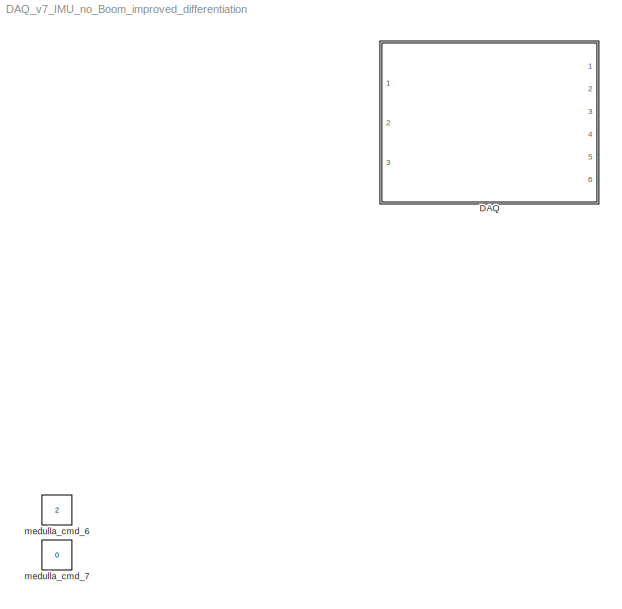
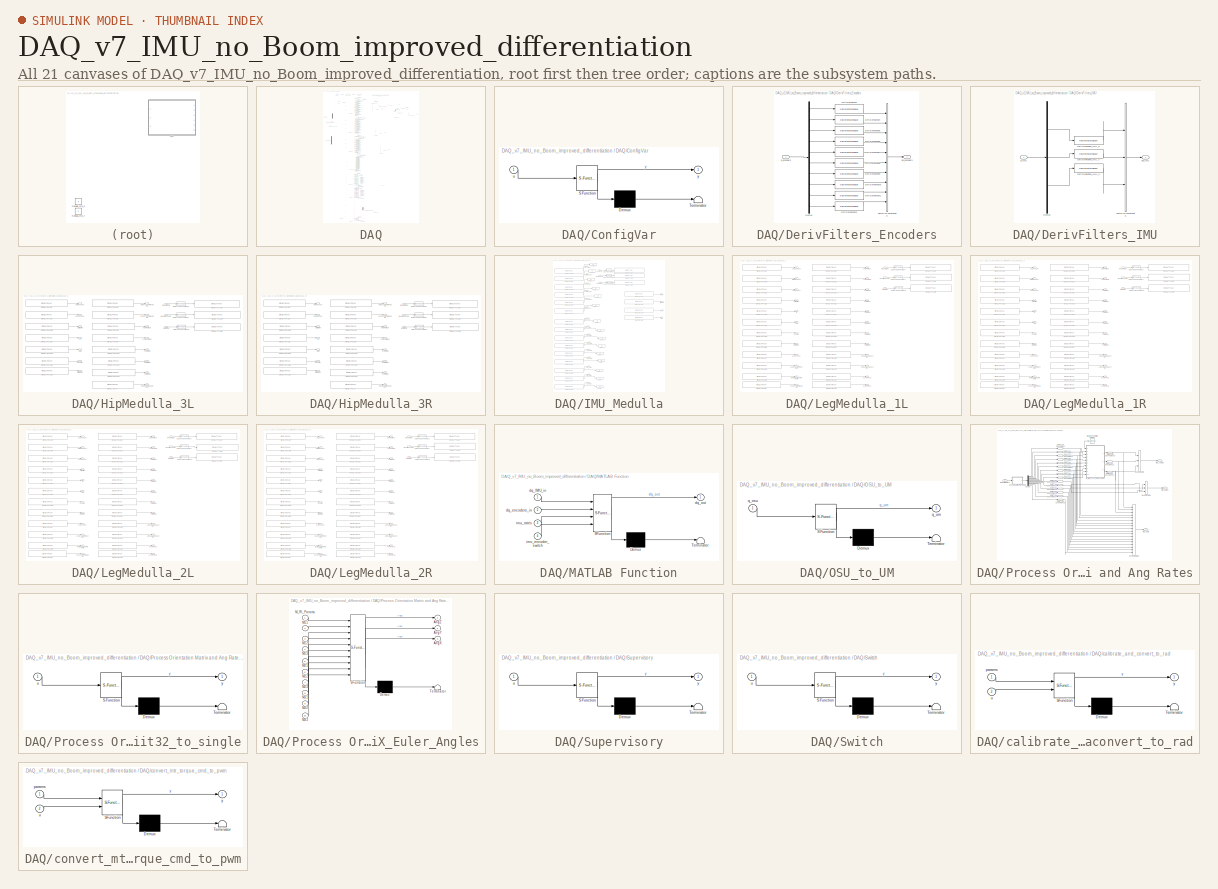
[diagram: thumbnail index - all 21 canvases of the model, root first then tree order]
MODEL DAQ_v7_IMU_no_Boom_improved_differentiation
KIND model
CONFIG InitFcn = DAQParams
WORKSPACE source: external: MATLAB File  (data not in archive)
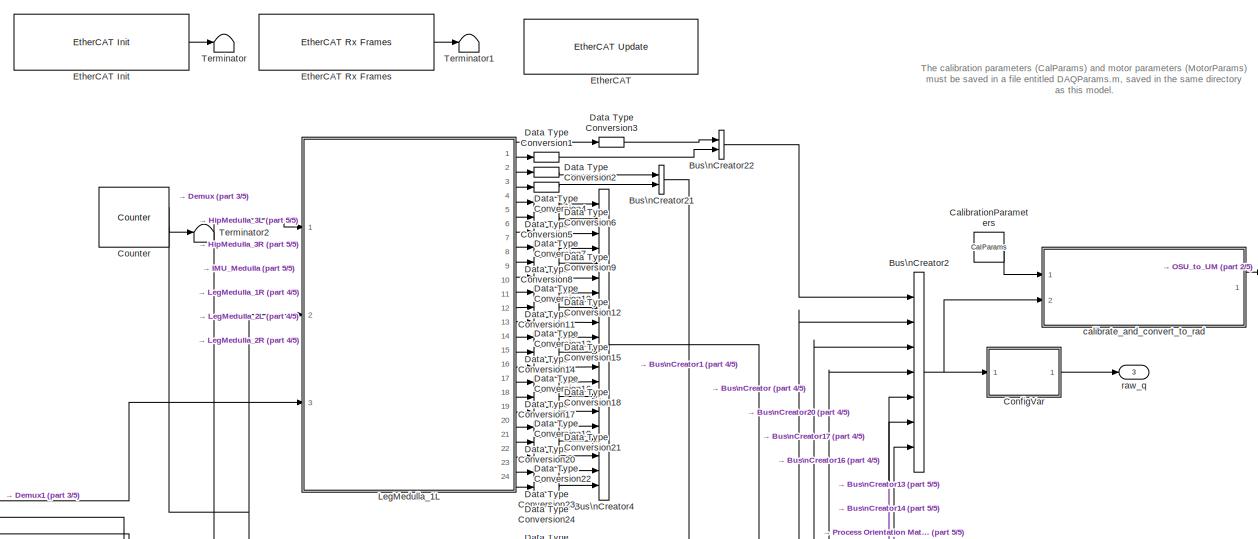
[diagram: DAQ - part 1/5, top center region]
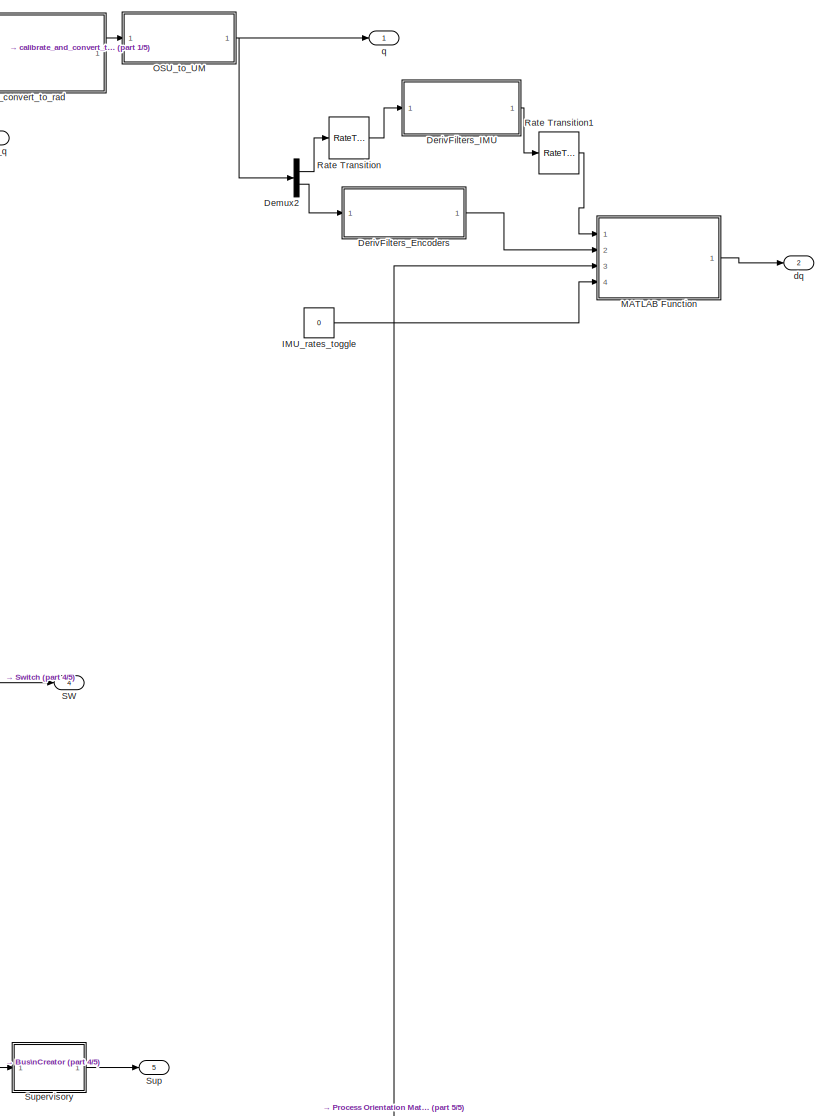
[diagram: DAQ - part 2/5, top right region]
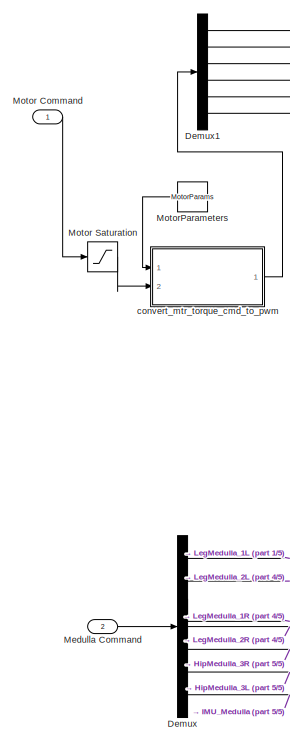
[diagram: DAQ - part 3/5, top left region]
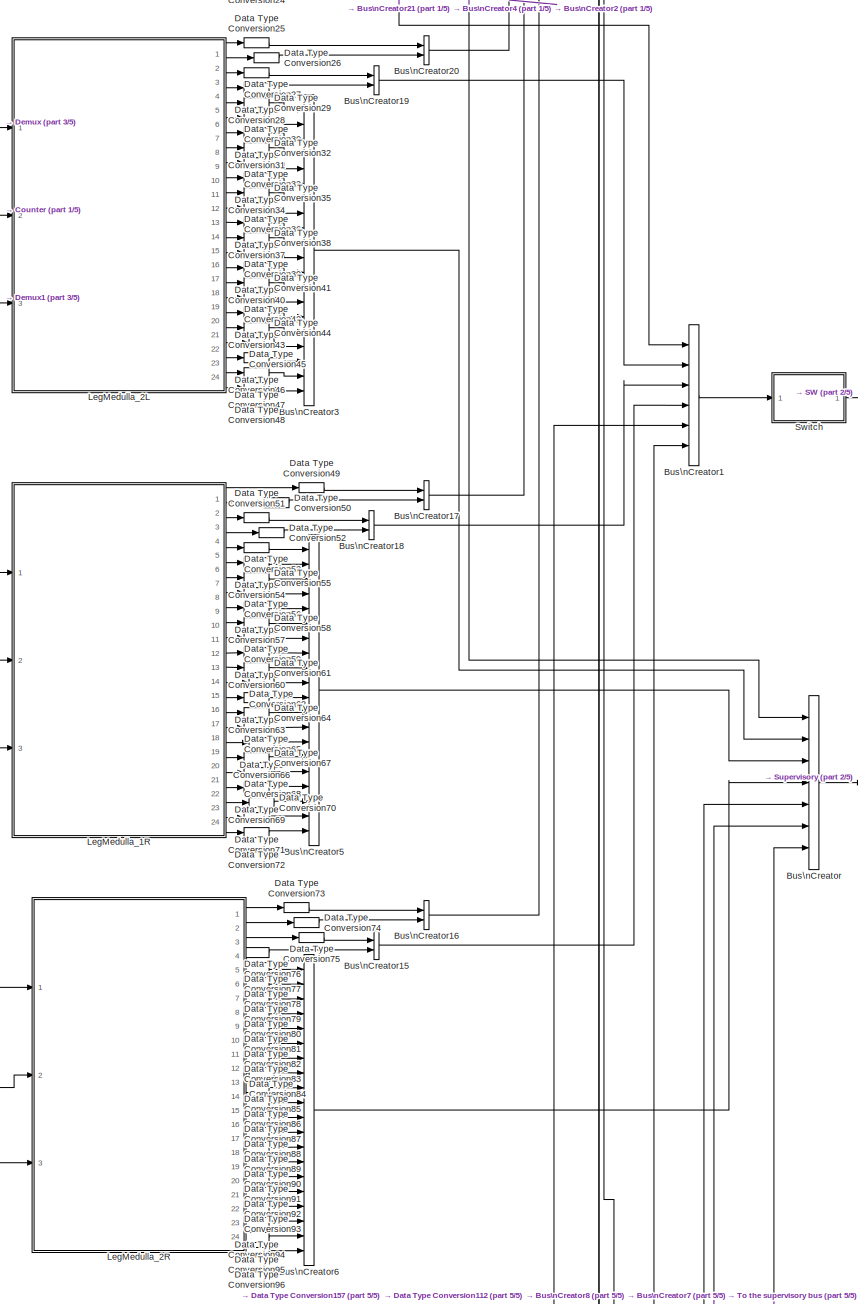
[diagram: DAQ - part 4/5, central region]
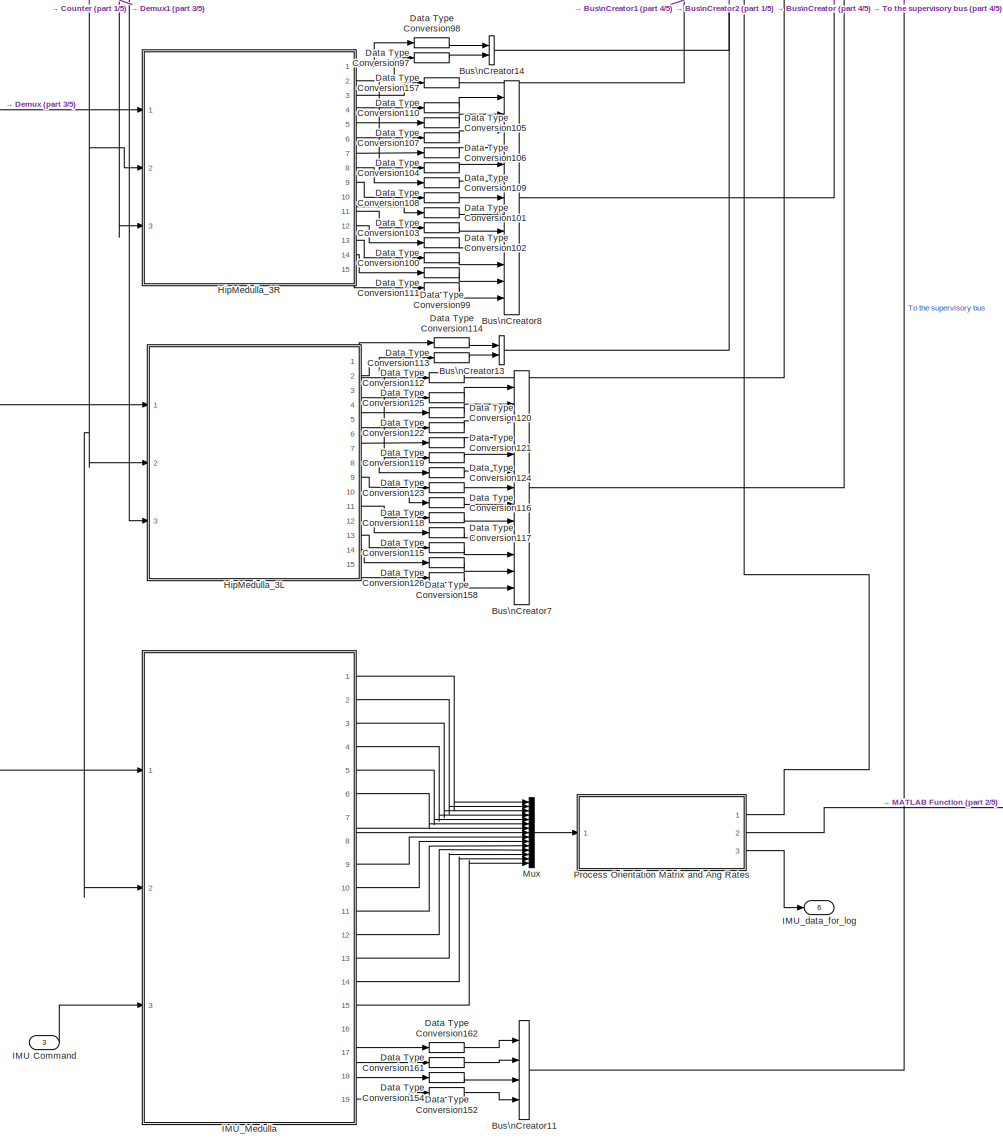
[diagram: DAQ - part 5/5, bottom center region]
BLOCK [SubSystem] DAQ
  FunctionWithSeparateData = off
  MaskHideContents = off
  MinAlgLoopOccurrences = off
  Opaque = off
  Ports = [3, 6]
  PropExecContextOutsideSubsystem = off
  RTWSystemCode = Auto
  RequestExecContextInheritance = off
  SID = 3567
BLOCK [BusCreator] DAQ/Bus\nCreator
  DisplayOption = bar
  Inputs = 7
  Ports = [7, 1]
  SID = 3571
BLOCK [BusCreator] DAQ/Bus\nCreator1
  DisplayOption = bar
  Inputs = 6
  Ports = [6, 1]
  SID = 3572
BLOCK [BusCreator] DAQ/Bus\nCreator11
  DisplayOption = bar
  Ports = [4, 1]
  SID = 3573
BLOCK [BusCreator] DAQ/Bus\nCreator13
  DisplayOption = bar
  Inputs = 2
  Ports = [2, 1]
  SID = 3574
BLOCK [BusCreator] DAQ/Bus\nCreator14
  DisplayOption = bar
  Inputs = 2
  Ports = [2, 1]
  SID = 3575
BLOCK [BusCreator] DAQ/Bus\nCreator15
  DisplayOption = bar
  Inputs = 2
  Ports = [2, 1]
  SID = 3576
BLOCK [BusCreator] DAQ/Bus\nCreator16
  DisplayOption = bar
  Inputs = 2
  Ports = [2, 1]
  SID = 3577
BLOCK [BusCreator] DAQ/Bus\nCreator17
  DisplayOption = bar
  Inputs = 2
  Ports = [2, 1]
  SID = 3578
BLOCK [BusCreator] DAQ/Bus\nCreator18
  DisplayOption = bar
  Inputs = 2
  Ports = [2, 1]
  SID = 3579
BLOCK [BusCreator] DAQ/Bus\nCreator19
  DisplayOption = bar
  Inputs = 2
  Ports = [2, 1]
  SID = 3580
BLOCK [BusCreator] DAQ/Bus\nCreator2
  DisplayOption = bar
  Inputs = 7
  Ports = [7, 1]
  SID = 3581
BLOCK [BusCreator] DAQ/Bus\nCreator20
  DisplayOption = bar
  Inputs = 2
  Ports = [2, 1]
  SID = 3582
BLOCK [BusCreator] DAQ/Bus\nCreator21
  DisplayOption = bar
  Inputs = 2
  Ports = [2, 1]
  SID = 3583
BLOCK [BusCreator] DAQ/Bus\nCreator22
  DisplayOption = bar
  Inputs = 2
  Ports = [2, 1]
  SID = 3584
BLOCK [BusCreator] DAQ/Bus\nCreator3
  DisplayOption = bar
  Inputs = 20
  Ports = [20, 1]
  SID = 3585
BLOCK [BusCreator] DAQ/Bus\nCreator4
  DisplayOption = bar
  Inputs = 20
  Ports = [20, 1]
  SID = 3586
BLOCK [BusCreator] DAQ/Bus\nCreator5
  DisplayOption = bar
  Inputs = 20
  Ports = [20, 1]
  SID = 3587
BLOCK [BusCreator] DAQ/Bus\nCreator6
  DisplayOption = bar
  Inputs = 20
  Ports = [20, 1]
  SID = 3588
BLOCK [BusCreator] DAQ/Bus\nCreator7
  DisplayOption = bar
  Inputs = 13
  Ports = [13, 1]
  SID = 3589
BLOCK [BusCreator] DAQ/Bus\nCreator8
  DisplayOption = bar
  Inputs = 13
  Ports = [13, 1]
  SID = 3590
BLOCK [Constant] DAQ/CalibrationParameters
  SID = 3591
  Value = CalParams
BLOCK [SubSystem] DAQ/ConfigVar
  ErrorFcn = Stateflow.Translate.translate
  FunctionWithSeparateData = off
  MaskDescription = Embedded MATLAB block
  MaskDisplay = bgColor = Simulink.Root.ColorString2Rgb(get_param(gcbh, 'BackgroundColor')); image(imread('private/eml_membrane_16.png','png','BackgroundColor',bgColor(1:3)),'center'); disp([10 10 'fcn']);  <repeated x6 — deduplicated; at blocks: ConfigVar, MATLAB Function, Convert_unit32_to_single, M_WI_to_ZYX_Euler_Angles, Supervisory, Switch>
  MaskHideContents = off
  MaskIconFrame = on
  MaskIconOpaque = off
  MaskIconRotate = none
  MaskIconUnits = normalized
  MaskPortRotate = default
  MaskSelfModifiable = on
  MaskType = Stateflow
  MinAlgLoopOccurrences = off
  Opaque = off
  PermitHierarchicalResolution = ExplicitOnly
  Ports = [1, 1]
  PropExecContextOutsideSubsystem = off
  RTWSystemCode = Auto
  RequestExecContextInheritance = off
  SFBlockType = MATLAB Function
  SID = 3592
  TreatAsAtomicUnit = on
BLOCK [Demux] DAQ/ConfigVar/ Demux 
  Outputs = 1
  Ports = [1, 1]
  SID = 3592::19
BLOCK [S-Function] DAQ/ConfigVar/ SFunction 
  EnableBusSupport = on
  FunctionName = sf_sfun
  PortCounts = [1 2]
  Ports = [1, 2]
  SID = 3592::18
  Tag = Stateflow S-Function DAQ_v7_IMU_no_Boom_improved_differentiation 3
BLOCK [Terminator] DAQ/ConfigVar/ Terminator 
  SID = 3592::21
BLOCK [Inport] DAQ/ConfigVar/u
  IconDisplay = Port number
  SID = 3592::1
BLOCK [Outport] DAQ/ConfigVar/y
  IconDisplay = Port number
  SID = 3592::5
BLOCK [Reference] DAQ/Counter  REF=dspswit3/Counter
  CntDtype = double
  CountEvent = Free running
  CounterSize = User defined
  Direction = Up
  HitDtype = Logical
  HitValue = 32
  InitialCount = 0
  MaxCount = 65535
  Output = Count and Hit
  Ports = [0, 2]
  ResetInput = off
  SID = 3593
  SamplesPerFrame = 1
  SourceBlock = dspswit3/Counter
  SourceType = Counter
  Ts = .001
BLOCK [DataTypeConversion] DAQ/Data Type Conversion1
  OutDataTypeStr = double
  RndMeth = Floor
  SID = 3594
  SaturateOnIntegerOverflow = off
BLOCK [DataTypeConversion] DAQ/Data Type Conversion10
  OutDataTypeStr = double
  RndMeth = Floor
  SID = 3595
  SaturateOnIntegerOverflow = off
BLOCK [DataTypeConversion] DAQ/Data Type Conversion100
  OutDataTypeStr = double
  RndMeth = Floor
  SID = 3596
  SaturateOnIntegerOverflow = off
BLOCK [DataTypeConversion] DAQ/Data Type Conversion101
  OutDataTypeStr = double
  RndMeth = Floor
  SID = 3597
  SaturateOnIntegerOverflow = off
BLOCK [DataTypeConversion] DAQ/Data Type Conversion102
  OutDataTypeStr = double
  RndMeth = Floor
  SID = 3598
  SaturateOnIntegerOverflow = off
BLOCK [DataTypeConversion] DAQ/Data Type Conversion103
  OutDataTypeStr = double
  RndMeth = Floor
  SID = 3599
  SaturateOnIntegerOverflow = off
BLOCK [DataTypeConversion] DAQ/Data Type Conversion104
  OutDataTypeStr = double
  RndMeth = Floor
  SID = 3600
  SaturateOnIntegerOverflow = off
BLOCK [DataTypeConversion] DAQ/Data Type Conversion105
  OutDataTypeStr = double
  RndMeth = Floor
  SID = 3601
  SaturateOnIntegerOverflow = off
BLOCK [DataTypeConversion] DAQ/Data Type Conversion106
  OutDataTypeStr = double
  RndMeth = Floor
  SID = 3602
  SaturateOnIntegerOverflow = off
BLOCK [DataTypeConversion] DAQ/Data Type Conversion107
  OutDataTypeStr = double
  RndMeth = Floor
  SID = 3603
  SaturateOnIntegerOverflow = off
BLOCK [DataTypeConversion] DAQ/Data Type Conversion108
  OutDataTypeStr = double
  RndMeth = Floor
  SID = 3604
  SaturateOnIntegerOverflow = off
BLOCK [DataTypeConversion] DAQ/Data Type Conversion109
  OutDataTypeStr = double
  RndMeth = Floor
  SID = 3605
  SaturateOnIntegerOverflow = off
BLOCK [DataTypeConversion] DAQ/Data Type Conversion11
  OutDataTypeStr = double
  RndMeth = Floor
  SID = 3606
  SaturateOnIntegerOverflow = off
BLOCK [DataTypeConversion] DAQ/Data Type Conversion110
  OutDataTypeStr = double
  RndMeth = Floor
  SID = 3607
  SaturateOnIntegerOverflow = off
BLOCK [DataTypeConversion] DAQ/Data Type Conversion111
  OutDataTypeStr = double
  RndMeth = Floor
  SID = 3608
  SaturateOnIntegerOverflow = off
BLOCK [DataTypeConversion] DAQ/Data Type Conversion112
  OutDataTypeStr = double
  RndMeth = Floor
  SID = 3609
  SaturateOnIntegerOverflow = off
BLOCK [DataTypeConversion] DAQ/Data Type Conversion113
  OutDataTypeStr = double
  RndMeth = Floor
  SID = 3610
  SaturateOnIntegerOverflow = off
BLOCK [DataTypeConversion] DAQ/Data Type Conversion114
  OutDataTypeStr = double
  RndMeth = Floor
  SID = 3611
  SaturateOnIntegerOverflow = off
BLOCK [DataTypeConversion] DAQ/Data Type Conversion115
  OutDataTypeStr = double
  RndMeth = Floor
  SID = 3612
  SaturateOnIntegerOverflow = off
BLOCK [DataTypeConversion] DAQ/Data Type Conversion116
  OutDataTypeStr = double
  RndMeth = Floor
  SID = 3613
  SaturateOnIntegerOverflow = off
BLOCK [DataTypeConversion] DAQ/Data Type Conversion117
  OutDataTypeStr = double
  RndMeth = Floor
  SID = 3614
  SaturateOnIntegerOverflow = off
BLOCK [DataTypeConversion] DAQ/Data Type Conversion118
  OutDataTypeStr = double
  RndMeth = Floor
  SID = 3615
  SaturateOnIntegerOverflow = off
BLOCK [DataTypeConversion] DAQ/Data Type Conversion119
  OutDataTypeStr = double
  RndMeth = Floor
  SID = 3616
  SaturateOnIntegerOverflow = off
BLOCK [DataTypeConversion] DAQ/Data Type Conversion12
  OutDataTypeStr = double
  RndMeth = Floor
  SID = 3617
  SaturateOnIntegerOverflow = off
BLOCK [DataTypeConversion] DAQ/Data Type Conversion120
  OutDataTypeStr = double
  RndMeth = Floor
  SID = 3618
  SaturateOnIntegerOverflow = off
BLOCK [DataTypeConversion] DAQ/Data Type Conversion121
  OutDataTypeStr = double
  RndMeth = Floor
  SID = 3619
  SaturateOnIntegerOverflow = off
BLOCK [DataTypeConversion] DAQ/Data Type Conversion122
  OutDataTypeStr = double
  RndMeth = Floor
  SID = 3620
  SaturateOnIntegerOverflow = off
BLOCK [DataTypeConversion] DAQ/Data Type Conversion123
  OutDataTypeStr = double
  RndMeth = Floor
  SID = 3621
  SaturateOnIntegerOverflow = off
BLOCK [DataTypeConversion] DAQ/Data Type Conversion124
  OutDataTypeStr = double
  RndMeth = Floor
  SID = 3622
  SaturateOnIntegerOverflow = off
BLOCK [DataTypeConversion] DAQ/Data Type Conversion125
  OutDataTypeStr = double
  RndMeth = Floor
  SID = 3623
  SaturateOnIntegerOverflow = off
BLOCK [DataTypeConversion] DAQ/Data Type Conversion126
  OutDataTypeStr = double
  RndMeth = Floor
  SID = 3624
  SaturateOnIntegerOverflow = off
BLOCK [DataTypeConversion] DAQ/Data Type Conversion13
  OutDataTypeStr = double
  RndMeth = Floor
  SID = 3625
  SaturateOnIntegerOverflow = off
BLOCK [DataTypeConversion] DAQ/Data Type Conversion14
  OutDataTypeStr = double
  RndMeth = Floor
  SID = 3626
  SaturateOnIntegerOverflow = off
BLOCK [DataTypeConversion] DAQ/Data Type Conversion15
  OutDataTypeStr = double
  RndMeth = Floor
  SID = 3627
  SaturateOnIntegerOverflow = off
BLOCK [DataTypeConversion] DAQ/Data Type Conversion152
  OutDataTypeStr = double
  RndMeth = Floor
  SID = 3628
  SaturateOnIntegerOverflow = off
BLOCK [DataTypeConversion] DAQ/Data Type Conversion154
  OutDataTypeStr = double
  RndMeth = Floor
  SID = 3629
  SaturateOnIntegerOverflow = off
BLOCK [DataTypeConversion] DAQ/Data Type Conversion157
  OutDataTypeStr = double
  RndMeth = Floor
  SID = 3630
  SaturateOnIntegerOverflow = off
BLOCK [DataTypeConversion] DAQ/Data Type Conversion158
  OutDataTypeStr = double
  RndMeth = Floor
  SID = 3631
  SaturateOnIntegerOverflow = off
BLOCK [DataTypeConversion] DAQ/Data Type Conversion16
  OutDataTypeStr = double
  RndMeth = Floor
  SID = 3632
  SaturateOnIntegerOverflow = off
BLOCK [DataTypeConversion] DAQ/Data Type Conversion161
  OutDataTypeStr = double
  RndMeth = Floor
  SID = 3633
  SaturateOnIntegerOverflow = off
BLOCK [DataTypeConversion] DAQ/Data Type Conversion162
  OutDataTypeStr = double
  RndMeth = Floor
  SID = 3634
  SaturateOnIntegerOverflow = off
BLOCK [DataTypeConversion] DAQ/Data Type Conversion17
  OutDataTypeStr = double
  RndMeth = Floor
  SID = 3635
  SaturateOnIntegerOverflow = off
BLOCK [DataTypeConversion] DAQ/Data Type Conversion18
  OutDataTypeStr = double
  RndMeth = Floor
  SID = 3636
  SaturateOnIntegerOverflow = off
BLOCK [DataTypeConversion] DAQ/Data Type Conversion19
  OutDataTypeStr = double
  RndMeth = Floor
  SID = 3637
  SaturateOnIntegerOverflow = off
BLOCK [DataTypeConversion] DAQ/Data Type Conversion2
  OutDataTypeStr = double
  RndMeth = Floor
  SID = 3638
  SaturateOnIntegerOverflow = off
BLOCK [DataTypeConversion] DAQ/Data Type Conversion20
  OutDataTypeStr = double
  RndMeth = Floor
  SID = 3639
  SaturateOnIntegerOverflow = off
BLOCK [DataTypeConversion] DAQ/Data Type Conversion21
  OutDataTypeStr = double
  RndMeth = Floor
  SID = 3640
  SaturateOnIntegerOverflow = off
BLOCK [DataTypeConversion] DAQ/Data Type Conversion22
  OutDataTypeStr = double
  RndMeth = Floor
  SID = 3641
  SaturateOnIntegerOverflow = off
BLOCK [DataTypeConversion] DAQ/Data Type Conversion23
  OutDataTypeStr = double
  RndMeth = Floor
  SID = 3642
  SaturateOnIntegerOverflow = off
BLOCK [DataTypeConversion] DAQ/Data Type Conversion24
  OutDataTypeStr = double
  RndMeth = Floor
  SID = 3643
  SaturateOnIntegerOverflow = off
BLOCK [DataTypeConversion] DAQ/Data Type Conversion25
  OutDataTypeStr = double
  RndMeth = Floor
  SID = 3644
  SaturateOnIntegerOverflow = off
BLOCK [DataTypeConversion] DAQ/Data Type Conversion26
  OutDataTypeStr = double
  RndMeth = Floor
  SID = 3645
  SaturateOnIntegerOverflow = off
BLOCK [DataTypeConversion] DAQ/Data Type Conversion27
  OutDataTypeStr = double
  RndMeth = Floor
  SID = 3646
  SaturateOnIntegerOverflow = off
BLOCK [DataTypeConversion] DAQ/Data Type Conversion28
  OutDataTypeStr = double
  RndMeth = Floor
  SID = 3647
  SaturateOnIntegerOverflow = off
BLOCK [DataTypeConversion] DAQ/Data Type Conversion29
  OutDataTypeStr = double
  RndMeth = Floor
  SID = 3648
  SaturateOnIntegerOverflow = off
BLOCK [DataTypeConversion] DAQ/Data Type Conversion3
  OutDataTypeStr = double
  RndMeth = Floor
  SID = 3649
  SaturateOnIntegerOverflow = off
BLOCK [DataTypeConversion] DAQ/Data Type Conversion30
  OutDataTypeStr = double
  RndMeth = Floor
  SID = 3650
  SaturateOnIntegerOverflow = off
BLOCK [DataTypeConversion] DAQ/Data Type Conversion31
  OutDataTypeStr = double
  RndMeth = Floor
  SID = 3651
  SaturateOnIntegerOverflow = off
BLOCK [DataTypeConversion] DAQ/Data Type Conversion32
  OutDataTypeStr = double
  RndMeth = Floor
  SID = 3652
  SaturateOnIntegerOverflow = off
BLOCK [DataTypeConversion] DAQ/Data Type Conversion33
  OutDataTypeStr = double
  RndMeth = Floor
  SID = 3653
  SaturateOnIntegerOverflow = off
BLOCK [DataTypeConversion] DAQ/Data Type Conversion34
  OutDataTypeStr = double
  RndMeth = Floor
  SID = 3654
  SaturateOnIntegerOverflow = off
BLOCK [DataTypeConversion] DAQ/Data Type Conversion35
  OutDataTypeStr = double
  RndMeth = Floor
  SID = 3655
  SaturateOnIntegerOverflow = off
BLOCK [DataTypeConversion] DAQ/Data Type Conversion36
  OutDataTypeStr = double
  RndMeth = Floor
  SID = 3656
  SaturateOnIntegerOverflow = off
BLOCK [DataTypeConversion] DAQ/Data Type Conversion37
  OutDataTypeStr = double
  RndMeth = Floor
  SID = 3657
  SaturateOnIntegerOverflow = off
BLOCK [DataTypeConversion] DAQ/Data Type Conversion38
  OutDataTypeStr = double
  RndMeth = Floor
  SID = 3658
  SaturateOnIntegerOverflow = off
BLOCK [DataTypeConversion] DAQ/Data Type Conversion39
  OutDataTypeStr = double
  RndMeth = Floor
  SID = 3659
  SaturateOnIntegerOverflow = off
BLOCK [DataTypeConversion] DAQ/Data Type Conversion4
  OutDataTypeStr = double
  RndMeth = Floor
  SID = 3660
  SaturateOnIntegerOverflow = off
BLOCK [DataTypeConversion] DAQ/Data Type Conversion40
  OutDataTypeStr = double
  RndMeth = Floor
  SID = 3661
  SaturateOnIntegerOverflow = off
BLOCK [DataTypeConversion] DAQ/Data Type Conversion41
  OutDataTypeStr = double
  RndMeth = Floor
  SID = 3662
  SaturateOnIntegerOverflow = off
BLOCK [DataTypeConversion] DAQ/Data Type Conversion42
  OutDataTypeStr = double
  RndMeth = Floor
  SID = 3663
  SaturateOnIntegerOverflow = off
BLOCK [DataTypeConversion] DAQ/Data Type Conversion43
  OutDataTypeStr = double
  RndMeth = Floor
  SID = 3664
  SaturateOnIntegerOverflow = off
BLOCK [DataTypeConversion] DAQ/Data Type Conversion44
  OutDataTypeStr = double
  RndMeth = Floor
  SID = 3665
  SaturateOnIntegerOverflow = off
BLOCK [DataTypeConversion] DAQ/Data Type Conversion45
  OutDataTypeStr = double
  RndMeth = Floor
  SID = 3666
  SaturateOnIntegerOverflow = off
BLOCK [DataTypeConversion] DAQ/Data Type Conversion46
  OutDataTypeStr = double
  RndMeth = Floor
  SID = 3667
  SaturateOnIntegerOverflow = off
BLOCK [DataTypeConversion] DAQ/Data Type Conversion47
  OutDataTypeStr = double
  RndMeth = Floor
  SID = 3668
  SaturateOnIntegerOverflow = off
BLOCK [DataTypeConversion] DAQ/Data Type Conversion48
  OutDataTypeStr = double
  RndMeth = Floor
  SID = 3669
  SaturateOnIntegerOverflow = off
BLOCK [DataTypeConversion] DAQ/Data Type Conversion49
  OutDataTypeStr = double
  RndMeth = Floor
  SID = 3670
  SaturateOnIntegerOverflow = off
BLOCK [DataTypeConversion] DAQ/Data Type Conversion5
  OutDataTypeStr = double
  RndMeth = Floor
  SID = 3671
  SaturateOnIntegerOverflow = off
BLOCK [DataTypeConversion] DAQ/Data Type Conversion50
  OutDataTypeStr = double
  RndMeth = Floor
  SID = 3672
  SaturateOnIntegerOverflow = off
BLOCK [DataTypeConversion] DAQ/Data Type Conversion51
  OutDataTypeStr = double
  RndMeth = Floor
  SID = 3673
  SaturateOnIntegerOverflow = off
BLOCK [DataTypeConversion] DAQ/Data Type Conversion52
  OutDataTypeStr = double
  RndMeth = Floor
  SID = 3674
  SaturateOnIntegerOverflow = off
BLOCK [DataTypeConversion] DAQ/Data Type Conversion53
  OutDataTypeStr = double
  RndMeth = Floor
  SID = 3675
  SaturateOnIntegerOverflow = off
BLOCK [DataTypeConversion] DAQ/Data Type Conversion54
  OutDataTypeStr = double
  RndMeth = Floor
  SID = 3676
  SaturateOnIntegerOverflow = off
BLOCK [DataTypeConversion] DAQ/Data Type Conversion55
  OutDataTypeStr = double
  RndMeth = Floor
  SID = 3677
  SaturateOnIntegerOverflow = off
BLOCK [DataTypeConversion] DAQ/Data Type Conversion56
  OutDataTypeStr = double
  RndMeth = Floor
  SID = 3678
  SaturateOnIntegerOverflow = off
BLOCK [DataTypeConversion] DAQ/Data Type Conversion57
  OutDataTypeStr = double
  RndMeth = Floor
  SID = 3679
  SaturateOnIntegerOverflow = off
BLOCK [DataTypeConversion] DAQ/Data Type Conversion58
  OutDataTypeStr = double
  RndMeth = Floor
  SID = 3680
  SaturateOnIntegerOverflow = off
BLOCK [DataTypeConversion] DAQ/Data Type Conversion59
  OutDataTypeStr = double
  RndMeth = Floor
  SID = 3681
  SaturateOnIntegerOverflow = off
BLOCK [DataTypeConversion] DAQ/Data Type Conversion6
  OutDataTypeStr = double
  RndMeth = Floor
  SID = 3682
  SaturateOnIntegerOverflow = off
BLOCK [DataTypeConversion] DAQ/Data Type Conversion60
  OutDataTypeStr = double
  RndMeth = Floor
  SID = 3683
  SaturateOnIntegerOverflow = off
BLOCK [DataTypeConversion] DAQ/Data Type Conversion61
  OutDataTypeStr = double
  RndMeth = Floor
  SID = 3684
  SaturateOnIntegerOverflow = off
BLOCK [DataTypeConversion] DAQ/Data Type Conversion62
  OutDataTypeStr = double
  RndMeth = Floor
  SID = 3685
  SaturateOnIntegerOverflow = off
BLOCK [DataTypeConversion] DAQ/Data Type Conversion63
  OutDataTypeStr = double
  RndMeth = Floor
  SID = 3686
  SaturateOnIntegerOverflow = off
BLOCK [DataTypeConversion] DAQ/Data Type Conversion64
  OutDataTypeStr = double
  RndMeth = Floor
  SID = 3687
  SaturateOnIntegerOverflow = off
BLOCK [DataTypeConversion] DAQ/Data Type Conversion65
  OutDataTypeStr = double
  RndMeth = Floor
  SID = 3688
  SaturateOnIntegerOverflow = off
BLOCK [DataTypeConversion] DAQ/Data Type Conversion66
  OutDataTypeStr = double
  RndMeth = Floor
  SID = 3689
  SaturateOnIntegerOverflow = off
BLOCK [DataTypeConversion] DAQ/Data Type Conversion67
  OutDataTypeStr = double
  RndMeth = Floor
  SID = 3690
  SaturateOnIntegerOverflow = off
BLOCK [DataTypeConversion] DAQ/Data Type Conversion68
  OutDataTypeStr = double
  RndMeth = Floor
  SID = 3691
  SaturateOnIntegerOverflow = off
BLOCK [DataTypeConversion] DAQ/Data Type Conversion69
  OutDataTypeStr = double
  RndMeth = Floor
  SID = 3692
  SaturateOnIntegerOverflow = off
BLOCK [DataTypeConversion] DAQ/Data Type Conversion7
  OutDataTypeStr = double
  RndMeth = Floor
  SID = 3693
  SaturateOnIntegerOverflow = off
BLOCK [DataTypeConversion] DAQ/Data Type Conversion70
  OutDataTypeStr = double
  RndMeth = Floor
  SID = 3694
  SaturateOnIntegerOverflow = off
BLOCK [DataTypeConversion] DAQ/Data Type Conversion71
  OutDataTypeStr = double
  RndMeth = Floor
  SID = 3695
  SaturateOnIntegerOverflow = off
BLOCK [DataTypeConversion] DAQ/Data Type Conversion72
  OutDataTypeStr = double
  RndMeth = Floor
  SID = 3696
  SaturateOnIntegerOverflow = off
BLOCK [DataTypeConversion] DAQ/Data Type Conversion73
  OutDataTypeStr = double
  RndMeth = Floor
  SID = 3697
  SaturateOnIntegerOverflow = off
BLOCK [DataTypeConversion] DAQ/Data Type Conversion74
  OutDataTypeStr = double
  RndMeth = Floor
  SID = 3698
  SaturateOnIntegerOverflow = off
BLOCK [DataTypeConversion] DAQ/Data Type Conversion75
  OutDataTypeStr = double
  RndMeth = Floor
  SID = 3699
  SaturateOnIntegerOverflow = off
BLOCK [DataTypeConversion] DAQ/Data Type Conversion76
  OutDataTypeStr = double
  RndMeth = Floor
  SID = 3700
  SaturateOnIntegerOverflow = off
BLOCK [DataTypeConversion] DAQ/Data Type Conversion77
  OutDataTypeStr = double
  RndMeth = Floor
  SID = 3701
  SaturateOnIntegerOverflow = off
BLOCK [DataTypeConversion] DAQ/Data Type Conversion78
  OutDataTypeStr = double
  RndMeth = Floor
  SID = 3702
  SaturateOnIntegerOverflow = off
BLOCK [DataTypeConversion] DAQ/Data Type Conversion79
  OutDataTypeStr = double
  RndMeth = Floor
  SID = 3703
  SaturateOnIntegerOverflow = off
BLOCK [DataTypeConversion] DAQ/Data Type Conversion8
  OutDataTypeStr = double
  RndMeth = Floor
  SID = 3704
  SaturateOnIntegerOverflow = off
BLOCK [DataTypeConversion] DAQ/Data Type Conversion80
  OutDataTypeStr = double
  RndMeth = Floor
  SID = 3705
  SaturateOnIntegerOverflow = off
BLOCK [DataTypeConversion] DAQ/Data Type Conversion81
  OutDataTypeStr = double
  RndMeth = Floor
  SID = 3706
  SaturateOnIntegerOverflow = off
BLOCK [DataTypeConversion] DAQ/Data Type Conversion82
  OutDataTypeStr = double
  RndMeth = Floor
  SID = 3707
  SaturateOnIntegerOverflow = off
BLOCK [DataTypeConversion] DAQ/Data Type Conversion83
  OutDataTypeStr = double
  RndMeth = Floor
  SID = 3708
  SaturateOnIntegerOverflow = off
BLOCK [DataTypeConversion] DAQ/Data Type Conversion84
  OutDataTypeStr = double
  RndMeth = Floor
  SID = 3709
  SaturateOnIntegerOverflow = off
BLOCK [DataTypeConversion] DAQ/Data Type Conversion85
  OutDataTypeStr = double
  RndMeth = Floor
  SID = 3710
  SaturateOnIntegerOverflow = off
BLOCK [DataTypeConversion] DAQ/Data Type Conversion86
  OutDataTypeStr = double
  RndMeth = Floor
  SID = 3711
  SaturateOnIntegerOverflow = off
BLOCK [DataTypeConversion] DAQ/Data Type Conversion87
  OutDataTypeStr = double
  RndMeth = Floor
  SID = 3712
  SaturateOnIntegerOverflow = off
BLOCK [DataTypeConversion] DAQ/Data Type Conversion88
  OutDataTypeStr = double
  RndMeth = Floor
  SID = 3713
  SaturateOnIntegerOverflow = off
BLOCK [DataTypeConversion] DAQ/Data Type Conversion89
  OutDataTypeStr = double
  RndMeth = Floor
  SID = 3714
  SaturateOnIntegerOverflow = off
BLOCK [DataTypeConversion] DAQ/Data Type Conversion9
  OutDataTypeStr = double
  RndMeth = Floor
  SID = 3715
  SaturateOnIntegerOverflow = off
BLOCK [DataTypeConversion] DAQ/Data Type Conversion90
  OutDataTypeStr = double
  RndMeth = Floor
  SID = 3716
  SaturateOnIntegerOverflow = off
BLOCK [DataTypeConversion] DAQ/Data Type Conversion91
  OutDataTypeStr = double
  RndMeth = Floor
  SID = 3717
  SaturateOnIntegerOverflow = off
BLOCK [DataTypeConversion] DAQ/Data Type Conversion92
  OutDataTypeStr = double
  RndMeth = Floor
  SID = 3718
  SaturateOnIntegerOverflow = off
BLOCK [DataTypeConversion] DAQ/Data Type Conversion93
  OutDataTypeStr = double
  RndMeth = Floor
  SID = 3719
  SaturateOnIntegerOverflow = off
BLOCK [DataTypeConversion] DAQ/Data Type Conversion94
  OutDataTypeStr = double
  RndMeth = Floor
  SID = 3720
  SaturateOnIntegerOverflow = off
BLOCK [DataTypeConversion] DAQ/Data Type Conversion95
  OutDataTypeStr = double
  RndMeth = Floor
  SID = 3721
  SaturateOnIntegerOverflow = off
BLOCK [DataTypeConversion] DAQ/Data Type Conversion96
  OutDataTypeStr = double
  RndMeth = Floor
  SID = 3722
  SaturateOnIntegerOverflow = off
BLOCK [DataTypeConversion] DAQ/Data Type Conversion97
  OutDataTypeStr = double
  RndMeth = Floor
  SID = 3723
  SaturateOnIntegerOverflow = off
BLOCK [DataTypeConversion] DAQ/Data Type Conversion98
  OutDataTypeStr = double
  RndMeth = Floor
  SID = 3724
  SaturateOnIntegerOverflow = off
BLOCK [DataTypeConversion] DAQ/Data Type Conversion99
  OutDataTypeStr = double
  RndMeth = Floor
  SID = 3725
  SaturateOnIntegerOverflow = off
BLOCK [Demux] DAQ/Demux
  DisplayOption = bar
  Outputs = 7
  Ports = [1, 7]
  SID = 3726
BLOCK [Demux] DAQ/Demux1
  DisplayOption = bar
  Outputs = 6
  Ports = [1, 6]
  SID = 3727
BLOCK [Demux] DAQ/Demux2
  DisplayOption = bar
  Outputs = [3 10]
  Ports = [1, 2]
  SID = 3728
BLOCK [SubSystem] DAQ/DerivFilters_Encoders
  FunctionWithSeparateData = off
  MaskHideContents = off
  MinAlgLoopOccurrences = off
  Opaque = off
  Ports = [1, 1]
  PropExecContextOutsideSubsystem = off
  RTWSystemCode = Auto
  RequestExecContextInheritance = off
  SID = 3729
BLOCK [Demux] DAQ/DerivFilters_Encoders/Demux
  DisplayOption = bar
  Outputs = 10
  Ports = [1, 10]
  SID = 3731
BLOCK [DiscreteStateSpace] DAQ/DerivFilters_Encoders/DirtyDerivative10
  A = A_dirty_deriv
  B = B_dirty_deriv
  C = C_dirty_deriv
  D = D_dirty_deriv
  SID = 3732
  SampleTime = Dt_dirty_deriv
  X0 = x0_dirty_deriv
BLOCK [DiscreteStateSpace] DAQ/DerivFilters_Encoders/DirtyDerivative11
  A = A_dirty_deriv
  B = B_dirty_deriv
  C = C_dirty_deriv
  D = D_dirty_deriv
  SID = 3733
  SampleTime = Dt_dirty_deriv
  X0 = x0_dirty_deriv
BLOCK [DiscreteStateSpace] DAQ/DerivFilters_Encoders/DirtyDerivative12
  A = A_dirty_deriv
  B = B_dirty_deriv
  C = C_dirty_deriv
  D = D_dirty_deriv
  SID = 3734
  SampleTime = Dt_dirty_deriv
  X0 = x0_dirty_deriv
BLOCK [DiscreteStateSpace] DAQ/DerivFilters_Encoders/DirtyDerivative3
  A = A_dirty_deriv
  B = B_dirty_deriv
  C = C_dirty_deriv
  D = D_dirty_deriv
  SID = 3735
  SampleTime = Dt_dirty_deriv
  X0 = x0_dirty_deriv
BLOCK [DiscreteStateSpace] DAQ/DerivFilters_Encoders/DirtyDerivative4
  A = A_dirty_deriv
  B = B_dirty_deriv
  C = C_dirty_deriv
  D = D_dirty_deriv
  SID = 3736
  SampleTime = Dt_dirty_deriv
  X0 = x0_dirty_deriv
BLOCK [DiscreteStateSpace] DAQ/DerivFilters_Encoders/DirtyDerivative5
  A = A_dirty_deriv
  B = B_dirty_deriv
  C = C_dirty_deriv
  D = D_dirty_deriv
  SID = 3737
  SampleTime = Dt_dirty_deriv
  X0 = x0_dirty_deriv
BLOCK [DiscreteStateSpace] DAQ/DerivFilters_Encoders/DirtyDerivative6
  A = A_dirty_deriv
  B = B_dirty_deriv
  C = C_dirty_deriv
  D = D_dirty_deriv
  SID = 3738
  SampleTime = Dt_dirty_deriv
  X0 = x0_dirty_deriv
BLOCK [DiscreteStateSpace] DAQ/DerivFilters_Encoders/DirtyDerivative7
  A = A_dirty_deriv
  B = B_dirty_deriv
  C = C_dirty_deriv
  D = D_dirty_deriv
  SID = 3739
  SampleTime = Dt_dirty_deriv
  X0 = x0_dirty_deriv
BLOCK [DiscreteStateSpace] DAQ/DerivFilters_Encoders/DirtyDerivative8
  A = A_dirty_deriv
  B = B_dirty_deriv
  C = C_dirty_deriv
  D = D_dirty_deriv
  SID = 3740
  SampleTime = Dt_dirty_deriv
  X0 = x0_dirty_deriv
BLOCK [DiscreteStateSpace] DAQ/DerivFilters_Encoders/DirtyDerivative9
  A = A_dirty_deriv
  B = B_dirty_deriv
  C = C_dirty_deriv
  D = D_dirty_deriv
  SID = 3741
  SampleTime = Dt_dirty_deriv
  X0 = x0_dirty_deriv
BLOCK [Concatenate] DAQ/DerivFilters_Encoders/Vector\nConcatenate
  Mode = Vector
  NumInputs = 10
  Ports = [10, 1]
  SID = 3742
BLOCK [Outport] DAQ/DerivFilters_Encoders/dq_encoders
  IconDisplay = Port number
  SID = 3743
BLOCK [Inport] DAQ/DerivFilters_Encoders/q_encoders
  IconDisplay = Port number
  SID = 3730
BLOCK [SubSystem] DAQ/DerivFilters_IMU
  FunctionWithSeparateData = off
  MaskHideContents = off
  MinAlgLoopOccurrences = off
  Opaque = off
  Ports = [1, 1]
  PropExecContextOutsideSubsystem = off
  RTWSystemCode = Auto
  RequestExecContextInheritance = off
  SID = 3744
BLOCK [Demux] DAQ/DerivFilters_IMU/Demux
  DisplayOption = bar
  Outputs = 3
  Ports = [1, 3]
  SID = 3746
BLOCK [DiscreteStateSpace] DAQ/DerivFilters_IMU/DirtyDerivative_IMU_X
  A = A_dirty_deriv_IMU
  B = B_dirty_deriv_IMU
  C = C_dirty_deriv_IMU
  D = D_dirty_deriv_IMU
  SID = 3747
  SampleTime = Dt_dirty_deriv_IMU
  X0 = x0_dirty_deriv_IMU
BLOCK [DiscreteStateSpace] DAQ/DerivFilters_IMU/DirtyDerivative_IMU_Y
  A = A_dirty_deriv_IMU
  B = B_dirty_deriv_IMU
  C = C_dirty_deriv_IMU
  D = D_dirty_deriv_IMU
  SID = 3748
  SampleTime = Dt_dirty_deriv_IMU
  X0 = x0_dirty_deriv_IMU
BLOCK [DiscreteStateSpace] DAQ/DerivFilters_IMU/DirtyDerivative_IMU_Z
  A = A_dirty_deriv_IMU
  B = B_dirty_deriv_IMU
  C = C_dirty_deriv_IMU
  D = D_dirty_deriv_IMU
  SID = 3749
  SampleTime = Dt_dirty_deriv_IMU
  X0 = x0_dirty_deriv_IMU
BLOCK [Concatenate] DAQ/DerivFilters_IMU/Vector\nConcatenate
  Mode = Vector
  NumInputs = 3
  Ports = [3, 1]
  SID = 3750
BLOCK [Outport] DAQ/DerivFilters_IMU/dq_IMU
  IconDisplay = Port number
  SID = 3751
BLOCK [Inport] DAQ/DerivFilters_IMU/q_IMU
  IconDisplay = Port number
  SID = 3745
BLOCK [Reference] DAQ/EtherCAT  REF=xpcethercatlib/EtherCAT Update 
  Ports = []
  Priority = 4
  SID = 3752
  SourceBlock = xpcethercatlib/EtherCAT Update
  SourceType = xpcethercat_update
  async_priority = 0
  async_rates = 20
  device_id = 0
  is_async = on
  task_id_list = [1]
  task_priorities = [1500]
  task_rates = [1]
BLOCK [Reference] DAQ/EtherCAT Init  REF=xpcethercatlib/EtherCAT Init 
  Ports = [0, 1]
  Priority = 0
  SID = 3753
  SourceBlock = xpcethercatlib/EtherCAT Init
  SourceType = xpcethercatinit
  config_file = 'full_robot_eni_v5_no_boom.xml'
  device_id = 0
  enaDC = on
  errRptLevel = 0
  pci_bus = 5
  pci_slot = 5
  sample_time = -1
BLOCK [Reference] DAQ/EtherCAT Rx Frames  REF=xpcethercatlib/EtherCAT Rx Frames 
  Ports = [0, 1]
  Priority = 1
  SID = 3754
  SourceBlock = xpcethercatlib/EtherCAT Rx Frames
  SourceType = xpcethercat_rcvframes
  device_id = 0
  sample_time = 0
BLOCK [SubSystem] DAQ/HipMedulla_3L
  FunctionWithSeparateData = off
  MaskHideContents = off
  MinAlgLoopOccurrences = off
  Opaque = off
  Ports = [3, 15]
  PropExecContextOutsideSubsystem = off
  RTWSystemCode = Auto
  RequestExecContextInheritance = off
  SID = 3755
BLOCK [Outport] DAQ/HipMedulla_3L/AmpMeasuredCurrent
  IconDisplay = Port number
  Port = 15
  SID = 3794
BLOCK [Outport] DAQ/HipMedulla_3L/Counter
  IconDisplay = Port number
  Port = 6
  SID = 3785
BLOCK [DataTypeConversion] DAQ/HipMedulla_3L/Data Type Conversion3
  OutDataTypeStr = uint8
  RndMeth = Floor
  SID = 3759
  SaturateOnIntegerOverflow = off
BLOCK [DataTypeConversion] DAQ/HipMedulla_3L/Data Type Conversion4
  OutDataTypeStr = uint16
  RndMeth = Floor
  SID = 3760
  SaturateOnIntegerOverflow = off
BLOCK [DataTypeConversion] DAQ/HipMedulla_3L/Data Type Conversion5
  OutDataTypeStr = int32
  RndMeth = Floor
  SID = 3761
  SaturateOnIntegerOverflow = off
BLOCK [Outport] DAQ/HipMedulla_3L/ErrorFlags
  IconDisplay = Port number
  Port = 7
  SID = 3786
BLOCK [Reference] DAQ/HipMedulla_3L/EtherCAT Rx Var   REF=xpcethercatlib/EtherCAT Rx Var 
  Ports = [0, 1]
  Priority = 2
  SID = 3762
  SourceBlock = xpcethercatlib/EtherCAT Rx Var
  SourceType = xpcethercat_rx_var
  device_id = 0
  sample_time = 0.001000
  sig_dim = 1
  sig_name = Box 6 (ATRIAS 2.1 Hip (Medulla 1.5)).Measured Current.Amp Measured Current
  sig_offset = 2352
  sig_type = int16
  type_size = 16
BLOCK [Reference] DAQ/HipMedulla_3L/EtherCAT Rx Var 1  REF=xpcethercatlib/EtherCAT Rx Var 
  Ports = [0, 1]
  Priority = 2
  SID = 3763
  SourceBlock = xpcethercatlib/EtherCAT Rx Var
  SourceType = xpcethercat_rx_var
  device_id = 0
  sample_time = 0.001000
  sig_dim = 1
  sig_name = Box 6 (ATRIAS 2.1 Hip (Medulla 1.5)).Power.Motor Voltage
  sig_offset = 2272
  sig_type = uint16
  type_size = 16
BLOCK [Reference] DAQ/HipMedulla_3L/EtherCAT Rx Var 12  REF=xpcethercatlib/EtherCAT Rx Var 
  Ports = [0, 1]
  Priority = 2
  SID = 3764
  SourceBlock = xpcethercatlib/EtherCAT Rx Var
  SourceType = xpcethercat_rx_var
  device_id = 0
  sample_time = 0.001000
  sig_dim = 1
  sig_name = Box 6 (ATRIAS 2.1 Hip (Medulla 1.5)).Thermistors.Thermistor 0
  sig_offset = 2304
  sig_type = uint16
  type_size = 16
BLOCK [Reference] DAQ/HipMedulla_3L/EtherCAT Rx Var 13  REF=xpcethercatlib/EtherCAT Rx Var 
  Ports = [0, 1]
  Priority = 2
  SID = 3765
  SourceBlock = xpcethercatlib/EtherCAT Rx Var
  SourceType = xpcethercat_rx_var
  device_id = 0
  sample_time = 0.001000
  sig_dim = 1
  sig_name = Box 6 (ATRIAS 2.1 Hip (Medulla 1.5)).Thermistors.Thermistor 1
  sig_offset = 2320
  sig_type = uint16
  type_size = 16
BLOCK [Reference] DAQ/HipMedulla_3L/EtherCAT Rx Var 14  REF=xpcethercatlib/EtherCAT Rx Var 
  Ports = [0, 1]
  Priority = 2
  SID = 3766
  SourceBlock = xpcethercatlib/EtherCAT Rx Var
  SourceType = xpcethercat_rx_var
  device_id = 0
  sample_time = 0.001000
  sig_dim = 1
  sig_name = Box 6 (ATRIAS 2.1 Hip (Medulla 1.5)).Thermistors.Thermistor 2
  sig_offset = 2336
  sig_type = uint16
  type_size = 16
BLOCK [Reference] DAQ/HipMedulla_3L/EtherCAT Rx Var 15  REF=xpcethercatlib/EtherCAT Rx Var 
  Ports = [0, 1]
  Priority = 2
  SID = 3767
  SourceBlock = xpcethercatlib/EtherCAT Rx Var
  SourceType = xpcethercat_rx_var
  device_id = 0
  sample_time = 0.001000
  sig_dim = 1
  sig_name = Box 6 (ATRIAS 2.1 Hip (Medulla 1.5)).uController Status.Counter
  sig_offset = 2200
  sig_type = uint8
  type_size = 8
BLOCK [Reference] DAQ/HipMedulla_3L/EtherCAT Rx Var 16  REF=xpcethercatlib/EtherCAT Rx Var 
  Ports = [0, 1]
  Priority = 2
  SID = 3768
  SourceBlock = xpcethercatlib/EtherCAT Rx Var
  SourceType = xpcethercat_rx_var
  device_id = 0
  sample_time = 0.001000
  sig_dim = 1
  sig_name = Box 6 (ATRIAS 2.1 Hip (Medulla 1.5)).uController Status.Error Flags
  sig_offset = 2208
  sig_type = uint8
  type_size = 8
BLOCK [Reference] DAQ/HipMedulla_3L/EtherCAT Rx Var 17  REF=xpcethercatlib/EtherCAT Rx Var 
  Ports = [0, 1]
  Priority = 2
  SID = 3769
  SourceBlock = xpcethercatlib/EtherCAT Rx Var
  SourceType = xpcethercat_rx_var
  device_id = 0
  sample_time = 0.001000
  sig_dim = 1
  sig_name = Box 6 (ATRIAS 2.1 Hip (Medulla 1.5)).uController Status.ID
  sig_offset = 2184
  sig_type = uint8
  type_size = 8
BLOCK [Reference] DAQ/HipMedulla_3L/EtherCAT Rx Var 18  REF=xpcethercatlib/EtherCAT Rx Var 
  Ports = [0, 1]
  Priority = 2
  SID = 3770
  SourceBlock = xpcethercatlib/EtherCAT Rx Var
  SourceType = xpcethercat_rx_var
  device_id = 0
  sample_time = 0.001000
  sig_dim = 1
  sig_name = Box 6 (ATRIAS 2.1 Hip (Medulla 1.5)).uController Status.Limit Switch
  sig_offset = 2216
  sig_type = uint8
  type_size = 8
BLOCK [Reference] DAQ/HipMedulla_3L/EtherCAT Rx Var 19  REF=xpcethercatlib/EtherCAT Rx Var 
  Ports = [0, 1]
  Priority = 2
  SID = 3771
  SourceBlock = xpcethercatlib/EtherCAT Rx Var
  SourceType = xpcethercat_rx_var
  device_id = 0
  sample_time = 0.001000
  sig_dim = 1
  sig_name = Box 6 (ATRIAS 2.1 Hip (Medulla 1.5)).uController Status.State
  sig_offset = 2192
  sig_type = uint8
  type_size = 8
BLOCK [Reference] DAQ/HipMedulla_3L/EtherCAT Rx Var 2  REF=xpcethercatlib/EtherCAT Rx Var 
  Ports = [0, 1]
  Priority = 2
  SID = 3772
  SourceBlock = xpcethercatlib/EtherCAT Rx Var
  SourceType = xpcethercat_rx_var
  device_id = 0
  sample_time = 0.001000
  sig_dim = 1
  sig_name = Box 6 (ATRIAS 2.1 Hip (Medulla 1.5)).Incremental Encoder.Incremental Encoder
  sig_offset = 2368
  sig_type = uint16
  type_size = 16
BLOCK [Reference] DAQ/HipMedulla_3L/EtherCAT Rx Var 3  REF=xpcethercatlib/EtherCAT Rx Var 
  Ports = [0, 1]
  Priority = 2
  SID = 3773
  SourceBlock = xpcethercatlib/EtherCAT Rx Var
  SourceType = xpcethercat_rx_var
  device_id = 0
  sample_time = 0.001000
  sig_dim = 1
  sig_name = Box 6 (ATRIAS 2.1 Hip (Medulla 1.5)).Hip Encoder.Timestamp
  sig_offset = 2256
  sig_type = uint16
  type_size = 16
BLOCK [Reference] DAQ/HipMedulla_3L/EtherCAT Rx Var 4  REF=xpcethercatlib/EtherCAT Rx Var 
  Ports = [0, 1]
  Priority = 2
  SID = 3774
  SourceBlock = xpcethercatlib/EtherCAT Rx Var
  SourceType = xpcethercat_rx_var
  device_id = 0
  sample_time = 0.001000
  sig_dim = 1
  sig_name = Box 6 (ATRIAS 2.1 Hip (Medulla 1.5)).Hip Encoder.Encoder
  sig_offset = 2224
  sig_type = uint32
  type_size = 32
BLOCK [Reference] DAQ/HipMedulla_3L/EtherCAT Rx Var 5  REF=xpcethercatlib/EtherCAT Rx Var 
  Ports = [0, 1]
  Priority = 2
  SID = 3775
  SourceBlock = xpcethercatlib/EtherCAT Rx Var
  SourceType = xpcethercat_rx_var
  device_id = 0
  sample_time = 0.001000
  sig_dim = 1
  sig_name = Box 6 (ATRIAS 2.1 Hip (Medulla 1.5)).Incremental Encoder.Incremental Encoder Timestamp
  sig_offset = 2384
  sig_type = uint16
  type_size = 16
BLOCK [Reference] DAQ/HipMedulla_3L/EtherCAT Rx Var 6  REF=xpcethercatlib/EtherCAT Rx Var 
  Ports = [0, 1]
  Priority = 2
  SID = 3776
  SourceBlock = xpcethercatlib/EtherCAT Rx Var
  SourceType = xpcethercat_rx_var
  device_id = 0
  sample_time = 0.001000
  sig_dim = 1
  sig_name = Box 6 (ATRIAS 2.1 Hip (Medulla 1.5)).Power.Logic Voltage
  sig_offset = 2288
  sig_type = uint16
  type_size = 16
BLOCK [Reference] DAQ/HipMedulla_3L/EtherCAT Tx Var 3  REF=xpcethercatlib/EtherCAT Tx Var 
  Ports = [1]
  Priority = 3
  SID = 3777
  SourceBlock = xpcethercatlib/EtherCAT Tx Var
  SourceType = xpcethercat_tx_var
  device_id = 0
  sample_time = 0.001000
  sig_dim = 1
  sig_name = Box 6 (ATRIAS 2.1 Hip (Medulla 1.5)).uControllerInput.Command
  sig_offset = 2184
  sig_type = uint8
  type_size = 8
BLOCK [Reference] DAQ/HipMedulla_3L/EtherCAT Tx Var 4  REF=xpcethercatlib/EtherCAT Tx Var 
  Ports = [1]
  Priority = 3
  SID = 3778
  SourceBlock = xpcethercatlib/EtherCAT Tx Var
  SourceType = xpcethercat_tx_var
  device_id = 0
  sample_time = 0.001000
  sig_dim = 1
  sig_name = Box 6 (ATRIAS 2.1 Hip (Medulla 1.5)).uControllerInput.Counter
  sig_offset = 2192
  sig_type = uint16
  type_size = 16
BLOCK [Reference] DAQ/HipMedulla_3L/EtherCAT Tx Var 5  REF=xpcethercatlib/EtherCAT Tx Var 
  Ports = [1]
  Priority = 3
  SID = 3779
  SourceBlock = xpcethercatlib/EtherCAT Tx Var
  SourceType = xpcethercat_tx_var
  device_id = 0
  sample_time = 0.001000
  sig_dim = 1
  sig_name = Box 6 (ATRIAS 2.1 Hip (Medulla 1.5)).uControllerInput.Motor Current
  sig_offset = 2208
  sig_type = int32
  type_size = 32
BLOCK [Outport] DAQ/HipMedulla_3L/HipEncoder
  IconDisplay = Port number
  SID = 3780
BLOCK [Outport] DAQ/HipMedulla_3L/HipEncoderTimestamp
  IconDisplay = Port number
  Port = 8
  SID = 3787
BLOCK [Outport] DAQ/HipMedulla_3L/ID
  IconDisplay = Port number
  Port = 4
  SID = 3783
BLOCK [Outport] DAQ/HipMedulla_3L/IncEncoder
  IconDisplay = Port number
  Port = 2
  SID = 3781
BLOCK [Outport] DAQ/HipMedulla_3L/IncEncoderTimestamp
  IconDisplay = Port number
  Port = 9
  SID = 3788
BLOCK [Outport] DAQ/HipMedulla_3L/LimitSwitch
  IconDisplay = Port number
  Port = 3
  SID = 3782
BLOCK [Outport] DAQ/HipMedulla_3L/LogicVoltage
  IconDisplay = Port number
  Port = 11
  SID = 3790
BLOCK [Inport] DAQ/HipMedulla_3L/MedullaCmd
  IconDisplay = Port number
  SID = 3756
BLOCK [Inport] DAQ/HipMedulla_3L/MedullaCounter
  IconDisplay = Port number
  Port = 2
  SID = 3757
BLOCK [Inport] DAQ/HipMedulla_3L/MotorCmd
  IconDisplay = Port number
  Port = 3
  SID = 3758
BLOCK [Outport] DAQ/HipMedulla_3L/MotorVoltage
  IconDisplay = Port number
  Port = 10
  SID = 3789
BLOCK [Outport] DAQ/HipMedulla_3L/State
  IconDisplay = Port number
  Port = 5
  SID = 3784
BLOCK [Outport] DAQ/HipMedulla_3L/Thermistor0
  IconDisplay = Port number
  Port = 12
  SID = 3791
BLOCK [Outport] DAQ/HipMedulla_3L/Thermistor1
  IconDisplay = Port number
  Port = 13
  SID = 3792
BLOCK [Outport] DAQ/HipMedulla_3L/Thermistor2
  IconDisplay = Port number
  Port = 14
  SID = 3793
BLOCK [SubSystem] DAQ/HipMedulla_3R
  FunctionWithSeparateData = off
  MaskHideContents = off
  MinAlgLoopOccurrences = off
  Opaque = off
  Ports = [3, 15]
  PropExecContextOutsideSubsystem = off
  RTWSystemCode = Auto
  RequestExecContextInheritance = off
  SID = 3795
BLOCK [Outport] DAQ/HipMedulla_3R/AmpMeasuredCurrent
  IconDisplay = Port number
  Port = 15
  SID = 3834
BLOCK [Outport] DAQ/HipMedulla_3R/Counter
  IconDisplay = Port number
  Port = 6
  SID = 3825
BLOCK [DataTypeConversion] DAQ/HipMedulla_3R/Data Type Conversion3
  OutDataTypeStr = uint8
  RndMeth = Floor
  SID = 3799
  SaturateOnIntegerOverflow = off
BLOCK [DataTypeConversion] DAQ/HipMedulla_3R/Data Type Conversion4
  OutDataTypeStr = uint16
  RndMeth = Floor
  SID = 3800
  SaturateOnIntegerOverflow = off
BLOCK [DataTypeConversion] DAQ/HipMedulla_3R/Data Type Conversion5
  OutDataTypeStr = int32
  RndMeth = Floor
  SID = 3801
  SaturateOnIntegerOverflow = off
BLOCK [Outport] DAQ/HipMedulla_3R/ErrorFlags
  IconDisplay = Port number
  Port = 7
  SID = 3826
BLOCK [Reference] DAQ/HipMedulla_3R/EtherCAT Rx Var   REF=xpcethercatlib/EtherCAT Rx Var 
  Ports = [0, 1]
  Priority = 2
  SID = 3802
  SourceBlock = xpcethercatlib/EtherCAT Rx Var
  SourceType = xpcethercat_rx_var
  device_id = 0
  sample_time = 0.001000
  sig_dim = 1
  sig_name = Box 5 (ATRIAS 2.1 Hip (Medulla 1.5)).Measured Current.Amp Measured Current
  sig_offset = 2136
  sig_type = int16
  type_size = 16
BLOCK [Reference] DAQ/HipMedulla_3R/EtherCAT Rx Var 1  REF=xpcethercatlib/EtherCAT Rx Var 
  Ports = [0, 1]
  Priority = 2
  SID = 3803
  SourceBlock = xpcethercatlib/EtherCAT Rx Var
  SourceType = xpcethercat_rx_var
  device_id = 0
  sample_time = 0.001000
  sig_dim = 1
  sig_name = Box 5 (ATRIAS 2.1 Hip (Medulla 1.5)).Power.Motor Voltage
  sig_offset = 2056
  sig_type = uint16
  type_size = 16
BLOCK [Reference] DAQ/HipMedulla_3R/EtherCAT Rx Var 12  REF=xpcethercatlib/EtherCAT Rx Var 
  Ports = [0, 1]
  Priority = 2
  SID = 3804
  SourceBlock = xpcethercatlib/EtherCAT Rx Var
  SourceType = xpcethercat_rx_var
  device_id = 0
  sample_time = 0.001000
  sig_dim = 1
  sig_name = Box 5 (ATRIAS 2.1 Hip (Medulla 1.5)).Thermistors.Thermistor 0
  sig_offset = 2088
  sig_type = uint16
  type_size = 16
BLOCK [Reference] DAQ/HipMedulla_3R/EtherCAT Rx Var 13  REF=xpcethercatlib/EtherCAT Rx Var 
  Ports = [0, 1]
  Priority = 2
  SID = 3805
  SourceBlock = xpcethercatlib/EtherCAT Rx Var
  SourceType = xpcethercat_rx_var
  device_id = 0
  sample_time = 0.001000
  sig_dim = 1
  sig_name = Box 5 (ATRIAS 2.1 Hip (Medulla 1.5)).Thermistors.Thermistor 1
  sig_offset = 2104
  sig_type = uint16
  type_size = 16
BLOCK [Reference] DAQ/HipMedulla_3R/EtherCAT Rx Var 14  REF=xpcethercatlib/EtherCAT Rx Var 
  Ports = [0, 1]
  Priority = 2
  SID = 3806
  SourceBlock = xpcethercatlib/EtherCAT Rx Var
  SourceType = xpcethercat_rx_var
  device_id = 0
  sample_time = 0.001000
  sig_dim = 1
  sig_name = Box 5 (ATRIAS 2.1 Hip (Medulla 1.5)).Thermistors.Thermistor 2
  sig_offset = 2120
  sig_type = uint16
  type_size = 16
BLOCK [Reference] DAQ/HipMedulla_3R/EtherCAT Rx Var 15  REF=xpcethercatlib/EtherCAT Rx Var 
  Ports = [0, 1]
  Priority = 2
  SID = 3807
  SourceBlock = xpcethercatlib/EtherCAT Rx Var
  SourceType = xpcethercat_rx_var
  device_id = 0
  sample_time = 0.001000
  sig_dim = 1
  sig_name = Box 5 (ATRIAS 2.1 Hip (Medulla 1.5)).uController Status.Counter
  sig_offset = 1984
  sig_type = uint8
  type_size = 8
BLOCK [Reference] DAQ/HipMedulla_3R/EtherCAT Rx Var 16  REF=xpcethercatlib/EtherCAT Rx Var 
  Ports = [0, 1]
  Priority = 2
  SID = 3808
  SourceBlock = xpcethercatlib/EtherCAT Rx Var
  SourceType = xpcethercat_rx_var
  device_id = 0
  sample_time = 0.001000
  sig_dim = 1
  sig_name = Box 5 (ATRIAS 2.1 Hip (Medulla 1.5)).uController Status.Error Flags
  sig_offset = 1992
  sig_type = uint8
  type_size = 8
BLOCK [Reference] DAQ/HipMedulla_3R/EtherCAT Rx Var 17  REF=xpcethercatlib/EtherCAT Rx Var 
  Ports = [0, 1]
  Priority = 2
  SID = 3809
  SourceBlock = xpcethercatlib/EtherCAT Rx Var
  SourceType = xpcethercat_rx_var
  device_id = 0
  sample_time = 0.001000
  sig_dim = 1
  sig_name = Box 5 (ATRIAS 2.1 Hip (Medulla 1.5)).uController Status.ID
  sig_offset = 1968
  sig_type = uint8
  type_size = 8
BLOCK [Reference] DAQ/HipMedulla_3R/EtherCAT Rx Var 18  REF=xpcethercatlib/EtherCAT Rx Var 
  Ports = [0, 1]
  Priority = 2
  SID = 3810
  SourceBlock = xpcethercatlib/EtherCAT Rx Var
  SourceType = xpcethercat_rx_var
  device_id = 0
  sample_time = 0.001000
  sig_dim = 1
  sig_name = Box 5 (ATRIAS 2.1 Hip (Medulla 1.5)).uController Status.Limit Switch
  sig_offset = 2000
  sig_type = uint8
  type_size = 8
BLOCK [Reference] DAQ/HipMedulla_3R/EtherCAT Rx Var 19  REF=xpcethercatlib/EtherCAT Rx Var 
  Ports = [0, 1]
  Priority = 2
  SID = 3811
  SourceBlock = xpcethercatlib/EtherCAT Rx Var
  SourceType = xpcethercat_rx_var
  device_id = 0
  sample_time = 0.001000
  sig_dim = 1
  sig_name = Box 5 (ATRIAS 2.1 Hip (Medulla 1.5)).uController Status.State
  sig_offset = 1976
  sig_type = uint8
  type_size = 8
BLOCK [Reference] DAQ/HipMedulla_3R/EtherCAT Rx Var 2  REF=xpcethercatlib/EtherCAT Rx Var 
  Ports = [0, 1]
  Priority = 2
  SID = 3812
  SourceBlock = xpcethercatlib/EtherCAT Rx Var
  SourceType = xpcethercat_rx_var
  device_id = 0
  sample_time = 0.001000
  sig_dim = 1
  sig_name = Box 5 (ATRIAS 2.1 Hip (Medulla 1.5)).Incremental Encoder.Incremental Encoder
  sig_offset = 2152
  sig_type = uint16
  type_size = 16
BLOCK [Reference] DAQ/HipMedulla_3R/EtherCAT Rx Var 3  REF=xpcethercatlib/EtherCAT Rx Var 
  Ports = [0, 1]
  Priority = 2
  SID = 3813
  SourceBlock = xpcethercatlib/EtherCAT Rx Var
  SourceType = xpcethercat_rx_var
  device_id = 0
  sample_time = 0.001000
  sig_dim = 1
  sig_name = Box 5 (ATRIAS 2.1 Hip (Medulla 1.5)).Hip Encoder.Timestamp
  sig_offset = 2040
  sig_type = uint16
  type_size = 16
BLOCK [Reference] DAQ/HipMedulla_3R/EtherCAT Rx Var 4  REF=xpcethercatlib/EtherCAT Rx Var 
  Ports = [0, 1]
  Priority = 2
  SID = 3814
  SourceBlock = xpcethercatlib/EtherCAT Rx Var
  SourceType = xpcethercat_rx_var
  device_id = 0
  sample_time = 0.001000
  sig_dim = 1
  sig_name = Box 5 (ATRIAS 2.1 Hip (Medulla 1.5)).Hip Encoder.Encoder
  sig_offset = 2008
  sig_type = uint32
  type_size = 32
BLOCK [Reference] DAQ/HipMedulla_3R/EtherCAT Rx Var 5  REF=xpcethercatlib/EtherCAT Rx Var 
  Ports = [0, 1]
  Priority = 2
  SID = 3815
  SourceBlock = xpcethercatlib/EtherCAT Rx Var
  SourceType = xpcethercat_rx_var
  device_id = 0
  sample_time = 0.001000
  sig_dim = 1
  sig_name = Box 5 (ATRIAS 2.1 Hip (Medulla 1.5)).Incremental Encoder.Incremental Encoder Timestamp
  sig_offset = 2168
  sig_type = uint16
  type_size = 16
BLOCK [Reference] DAQ/HipMedulla_3R/EtherCAT Rx Var 6  REF=xpcethercatlib/EtherCAT Rx Var 
  Ports = [0, 1]
  Priority = 2
  SID = 3816
  SourceBlock = xpcethercatlib/EtherCAT Rx Var
  SourceType = xpcethercat_rx_var
  device_id = 0
  sample_time = 0.001000
  sig_dim = 1
  sig_name = Box 5 (ATRIAS 2.1 Hip (Medulla 1.5)).Power.Logic Voltage
  sig_offset = 2072
  sig_type = uint16
  type_size = 16
BLOCK [Reference] DAQ/HipMedulla_3R/EtherCAT Tx Var 3  REF=xpcethercatlib/EtherCAT Tx Var 
  Ports = [1]
  Priority = 3
  SID = 3817
  SourceBlock = xpcethercatlib/EtherCAT Tx Var
  SourceType = xpcethercat_tx_var
  device_id = 0
  sample_time = 0.001000
  sig_dim = 1
  sig_name = Box 5 (ATRIAS 2.1 Hip (Medulla 1.5)).uControllerInput.Command
  sig_offset = 1968
  sig_type = uint8
  type_size = 8
BLOCK [Reference] DAQ/HipMedulla_3R/EtherCAT Tx Var 4  REF=xpcethercatlib/EtherCAT Tx Var 
  Ports = [1]
  Priority = 3
  SID = 3818
  SourceBlock = xpcethercatlib/EtherCAT Tx Var
  SourceType = xpcethercat_tx_var
  device_id = 0
  sample_time = 0.001000
  sig_dim = 1
  sig_name = Box 5 (ATRIAS 2.1 Hip (Medulla 1.5)).uControllerInput.Counter
  sig_offset = 1976
  sig_type = uint16
  type_size = 16
BLOCK [Reference] DAQ/HipMedulla_3R/EtherCAT Tx Var 5  REF=xpcethercatlib/EtherCAT Tx Var 
  Ports = [1]
  Priority = 3
  SID = 3819
  SourceBlock = xpcethercatlib/EtherCAT Tx Var
  SourceType = xpcethercat_tx_var
  device_id = 0
  sample_time = 0.001000
  sig_dim = 1
  sig_name = Box 5 (ATRIAS 2.1 Hip (Medulla 1.5)).uControllerInput.Motor Current
  sig_offset = 1992
  sig_type = int32
  type_size = 32
BLOCK [Outport] DAQ/HipMedulla_3R/HipEncoder
  IconDisplay = Port number
  SID = 3820
BLOCK [Outport] DAQ/HipMedulla_3R/HipEncoderTimestamp
  IconDisplay = Port number
  Port = 8
  SID = 3827
BLOCK [Outport] DAQ/HipMedulla_3R/ID
  IconDisplay = Port number
  Port = 4
  SID = 3823
BLOCK [Outport] DAQ/HipMedulla_3R/IncEncoder
  IconDisplay = Port number
  Port = 2
  SID = 3821
BLOCK [Outport] DAQ/HipMedulla_3R/IncEncoderTimestamp
  IconDisplay = Port number
  Port = 9
  SID = 3828
BLOCK [Outport] DAQ/HipMedulla_3R/LimitSwitch
  IconDisplay = Port number
  Port = 3
  SID = 3822
BLOCK [Outport] DAQ/HipMedulla_3R/LogicVoltage
  IconDisplay = Port number
  Port = 11
  SID = 3830
BLOCK [Inport] DAQ/HipMedulla_3R/MedullaCmd
  IconDisplay = Port number
  SID = 3796
BLOCK [Inport] DAQ/HipMedulla_3R/MedullaCounter
  IconDisplay = Port number
  Port = 2
  SID = 3797
BLOCK [Inport] DAQ/HipMedulla_3R/MotorCmd
  IconDisplay = Port number
  Port = 3
  SID = 3798
BLOCK [Outport] DAQ/HipMedulla_3R/MotorVoltage
  IconDisplay = Port number
  Port = 10
  SID = 3829
BLOCK [Outport] DAQ/HipMedulla_3R/State
  IconDisplay = Port number
  Port = 5
  SID = 3824
BLOCK [Outport] DAQ/HipMedulla_3R/Thermistor0
  IconDisplay = Port number
  Port = 12
  SID = 3831
BLOCK [Outport] DAQ/HipMedulla_3R/Thermistor1
  IconDisplay = Port number
  Port = 13
  SID = 3832
BLOCK [Outport] DAQ/HipMedulla_3R/Thermistor2
  IconDisplay = Port number
  Port = 14
  SID = 3833
BLOCK [Inport] DAQ/IMU Command
  IconDisplay = Port number
  Port = 3
  SID = 3570
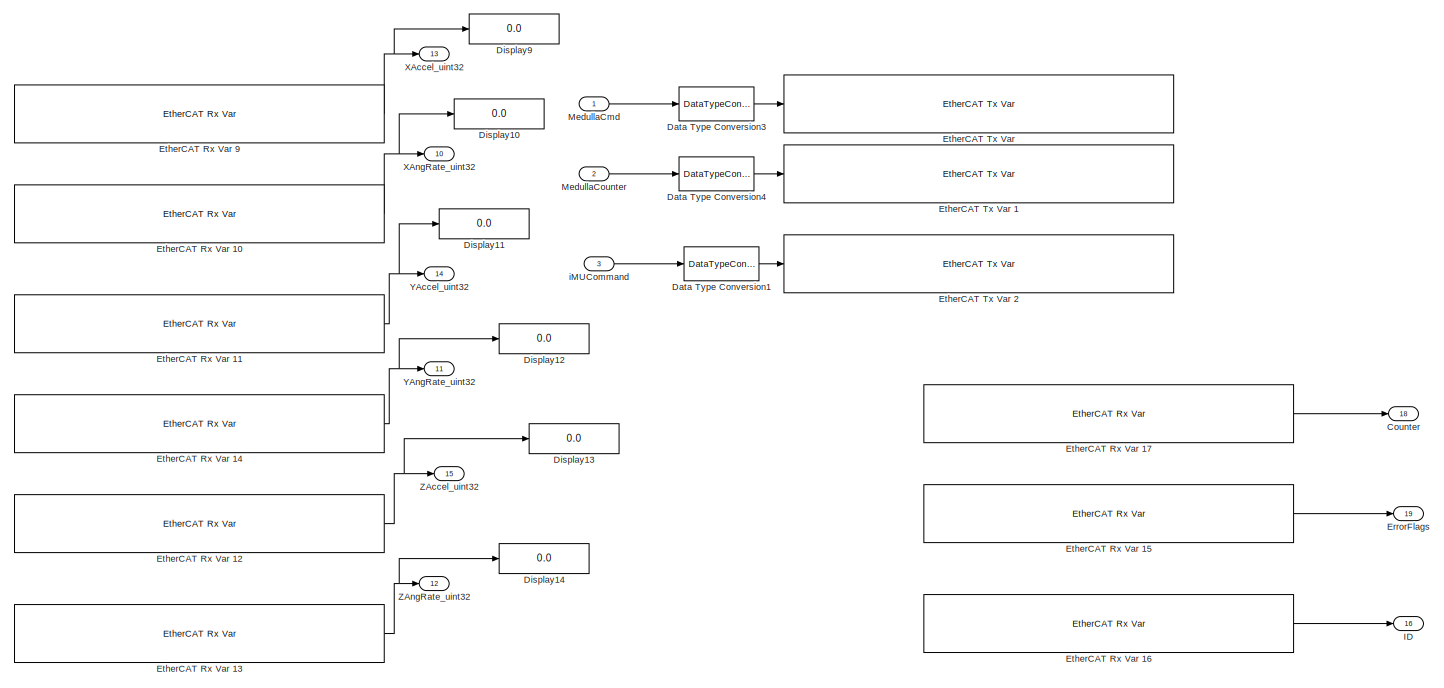
[diagram: DAQ/IMU_Medulla - part 1/3, full width, top band]
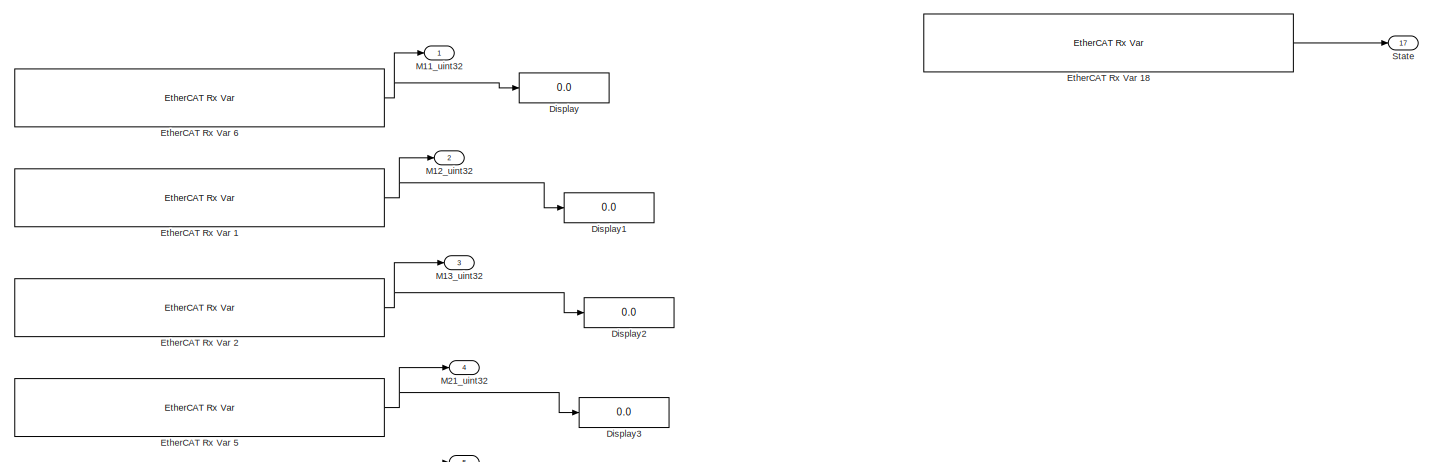
[diagram: DAQ/IMU_Medulla - part 2/3, full width, middle band]
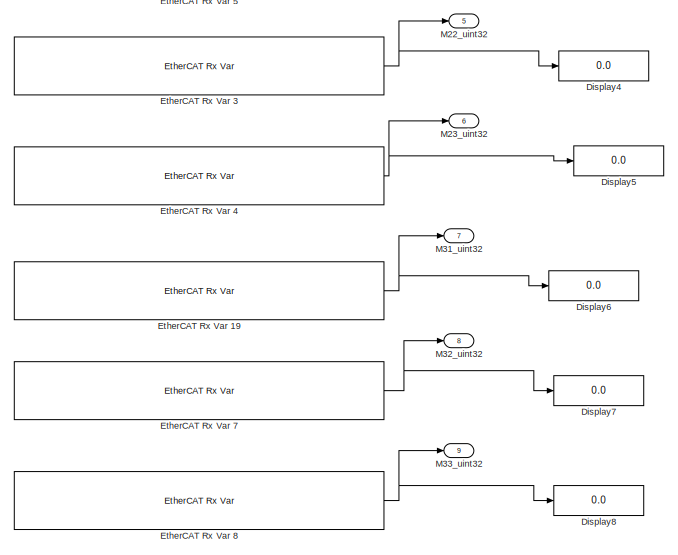
[diagram: DAQ/IMU_Medulla - part 3/3, bottom left region]
BLOCK [SubSystem] DAQ/IMU_Medulla
  FunctionWithSeparateData = off
  MaskHideContents = off
  MinAlgLoopOccurrences = off
  Opaque = off
  Ports = [3, 19]
  PropExecContextOutsideSubsystem = off
  RTWSystemCode = Auto
  RequestExecContextInheritance = off
  SID = 3835
BLOCK [Outport] DAQ/IMU_Medulla/Counter
  IconDisplay = Port number
  Port = 18
  SID = 3896
BLOCK [DataTypeConversion] DAQ/IMU_Medulla/Data Type Conversion1
  OutDataTypeStr = uint8
  RndMeth = Floor
  SID = 3839
  SaturateOnIntegerOverflow = off
BLOCK [DataTypeConversion] DAQ/IMU_Medulla/Data Type Conversion3
  OutDataTypeStr = uint8
  RndMeth = Floor
  SID = 3840
  SaturateOnIntegerOverflow = off
BLOCK [DataTypeConversion] DAQ/IMU_Medulla/Data Type Conversion4
  OutDataTypeStr = uint16
  RndMeth = Floor
  SID = 3841
  SaturateOnIntegerOverflow = off
BLOCK [Display] DAQ/IMU_Medulla/Display
  Decimation = 1
  Lockdown = off
  Ports = [1]
  SID = 3842
BLOCK [Display] DAQ/IMU_Medulla/Display1
  Decimation = 1
  Lockdown = off
  Ports = [1]
  SID = 3843
BLOCK [Display] DAQ/IMU_Medulla/Display10
  Decimation = 1
  Lockdown = off
  Ports = [1]
  SID = 3844
BLOCK [Display] DAQ/IMU_Medulla/Display11
  Decimation = 1
  Lockdown = off
  Ports = [1]
  SID = 3845
BLOCK [Display] DAQ/IMU_Medulla/Display12
  Decimation = 1
  Lockdown = off
  Ports = [1]
  SID = 3846
BLOCK [Display] DAQ/IMU_Medulla/Display13
  Decimation = 1
  Lockdown = off
  Ports = [1]
  SID = 3847
BLOCK [Display] DAQ/IMU_Medulla/Display14
  Decimation = 1
  Lockdown = off
  Ports = [1]
  SID = 3848
BLOCK [Display] DAQ/IMU_Medulla/Display2
  Decimation = 1
  Lockdown = off
  Ports = [1]
  SID = 3849
BLOCK [Display] DAQ/IMU_Medulla/Display3
  Decimation = 1
  Lockdown = off
  Ports = [1]
  SID = 3850
BLOCK [Display] DAQ/IMU_Medulla/Display4
  Decimation = 1
  Lockdown = off
  Ports = [1]
  SID = 3851
BLOCK [Display] DAQ/IMU_Medulla/Display5
  Decimation = 1
  Lockdown = off
  Ports = [1]
  SID = 3852
BLOCK [Display] DAQ/IMU_Medulla/Display6
  Decimation = 1
  Lockdown = off
  Ports = [1]
  SID = 3853
BLOCK [Display] DAQ/IMU_Medulla/Display7
  Decimation = 1
  Lockdown = off
  Ports = [1]
  SID = 3854
BLOCK [Display] DAQ/IMU_Medulla/Display8
  Decimation = 1
  Lockdown = off
  Ports = [1]
  SID = 3855
BLOCK [Display] DAQ/IMU_Medulla/Display9
  Decimation = 1
  Lockdown = off
  Ports = [1]
  SID = 3856
BLOCK [Outport] DAQ/IMU_Medulla/ErrorFlags
  IconDisplay = Port number
  Port = 19
  SID = 3897
BLOCK [Reference] DAQ/IMU_Medulla/EtherCAT Rx Var 1  REF=xpcethercatlib/EtherCAT Rx Var 
  Ports = [0, 1]
  Priority = 2
  SID = 3857
  SourceBlock = xpcethercatlib/EtherCAT Rx Var
  SourceType = xpcethercat_rx_var
  device_id = 0
  sample_time = 0.001000
  sig_dim = 1
  sig_name = Box 8 (ATRIAS 2.1 Leg (Medulla 1.5)).M.M12
  sig_offset = 2656
  sig_type = uint32
  type_size = 32
BLOCK [Reference] DAQ/IMU_Medulla/EtherCAT Rx Var 10  REF=xpcethercatlib/EtherCAT Rx Var 
  Ports = [0, 1]
  Priority = 2
  SID = 3858
  SourceBlock = xpcethercatlib/EtherCAT Rx Var
  SourceType = xpcethercat_rx_var
  device_id = 0
  sample_time = 0.001000
  sig_dim = 1
  sig_name = Box 8 (ATRIAS 2.1 Leg (Medulla 1.5)).Xaxes.XAngRate
  sig_offset = 2432
  sig_type = uint32
  type_size = 32
BLOCK [Reference] DAQ/IMU_Medulla/EtherCAT Rx Var 11  REF=xpcethercatlib/EtherCAT Rx Var 
  Ports = [0, 1]
  Priority = 2
  SID = 3859
  SourceBlock = xpcethercatlib/EtherCAT Rx Var
  SourceType = xpcethercat_rx_var
  device_id = 0
  sample_time = 0.001000
  sig_dim = 1
  sig_name = Box 8 (ATRIAS 2.1 Leg (Medulla 1.5)).Yaxes.YAccel
  sig_offset = 2528
  sig_type = uint32
  type_size = 32
BLOCK [Reference] DAQ/IMU_Medulla/EtherCAT Rx Var 12  REF=xpcethercatlib/EtherCAT Rx Var 
  Ports = [0, 1]
  Priority = 2
  SID = 3860
  SourceBlock = xpcethercatlib/EtherCAT Rx Var
  SourceType = xpcethercat_rx_var
  device_id = 0
  sample_time = 0.001000
  sig_dim = 1
  sig_name = Box 8 (ATRIAS 2.1 Leg (Medulla 1.5)).Zaxes.ZAccel
  sig_offset = 2592
  sig_type = uint32
  type_size = 32
BLOCK [Reference] DAQ/IMU_Medulla/EtherCAT Rx Var 13  REF=xpcethercatlib/EtherCAT Rx Var 
  Ports = [0, 1]
  Priority = 2
  SID = 3861
  SourceBlock = xpcethercatlib/EtherCAT Rx Var
  SourceType = xpcethercat_rx_var
  device_id = 0
  sample_time = 0.001000
  sig_dim = 1
  sig_name = Box 8 (ATRIAS 2.1 Leg (Medulla 1.5)).Zaxes.ZAngRate
  sig_offset = 2560
  sig_type = uint32
  type_size = 32
BLOCK [Reference] DAQ/IMU_Medulla/EtherCAT Rx Var 14  REF=xpcethercatlib/EtherCAT Rx Var 
  Ports = [0, 1]
  Priority = 2
  SID = 3862
  SourceBlock = xpcethercatlib/EtherCAT Rx Var
  SourceType = xpcethercat_rx_var
  device_id = 0
  sample_time = 0.001000
  sig_dim = 1
  sig_name = Box 8 (ATRIAS 2.1 Leg (Medulla 1.5)).Yaxes.YAngRate
  sig_offset = 2496
  sig_type = uint32
  type_size = 32
BLOCK [Reference] DAQ/IMU_Medulla/EtherCAT Rx Var 15  REF=xpcethercatlib/EtherCAT Rx Var 
  Ports = [0, 1]
  Priority = 2
  SID = 3863
  SourceBlock = xpcethercatlib/EtherCAT Rx Var
  SourceType = xpcethercat_rx_var
  device_id = 0
  sample_time = 0.001000
  sig_dim = 1
  sig_name = Box 8 (ATRIAS 2.1 Leg (Medulla 1.5)).uController Status.Error Flags
  sig_offset = 2424
  sig_type = uint8
  type_size = 8
BLOCK [Reference] DAQ/IMU_Medulla/EtherCAT Rx Var 16  REF=xpcethercatlib/EtherCAT Rx Var 
  Ports = [0, 1]
  Priority = 2
  SID = 3864
  SourceBlock = xpcethercatlib/EtherCAT Rx Var
  SourceType = xpcethercat_rx_var
  device_id = 0
  sample_time = 0.001000
  sig_dim = 1
  sig_name = Box 8 (ATRIAS 2.1 Leg (Medulla 1.5)).uController Status.ID
  sig_offset = 2400
  sig_type = uint8
  type_size = 8
BLOCK [Reference] DAQ/IMU_Medulla/EtherCAT Rx Var 17  REF=xpcethercatlib/EtherCAT Rx Var 
  Ports = [0, 1]
  Priority = 2
  SID = 3865
  SourceBlock = xpcethercatlib/EtherCAT Rx Var
  SourceType = xpcethercat_rx_var
  device_id = 0
  sample_time = 0.001000
  sig_dim = 1
  sig_name = Box 8 (ATRIAS 2.1 Leg (Medulla 1.5)).uController Status.Counter
  sig_offset = 2416
  sig_type = uint8
  type_size = 8
BLOCK [Reference] DAQ/IMU_Medulla/EtherCAT Rx Var 18  REF=xpcethercatlib/EtherCAT Rx Var 
  Ports = [0, 1]
  Priority = 2
  SID = 3866
  SourceBlock = xpcethercatlib/EtherCAT Rx Var
  SourceType = xpcethercat_rx_var
  device_id = 0
  sample_time = 0.001000
  sig_dim = 1
  sig_name = Box 8 (ATRIAS 2.1 Leg (Medulla 1.5)).uController Status.State
  sig_offset = 2408
  sig_type = uint8
  type_size = 8
BLOCK [Reference] DAQ/IMU_Medulla/EtherCAT Rx Var 19  REF=xpcethercatlib/EtherCAT Rx Var 
  Ports = [0, 1]
  Priority = 2
  SID = 3867
  SourceBlock = xpcethercatlib/EtherCAT Rx Var
  SourceType = xpcethercat_rx_var
  device_id = 0
  sample_time = 0.001000
  sig_dim = 1
  sig_name = Box 8 (ATRIAS 2.1 Leg (Medulla 1.5)).M.M31
  sig_offset = 2816
  sig_type = uint32
  type_size = 32
BLOCK [Reference] DAQ/IMU_Medulla/EtherCAT Rx Var 2  REF=xpcethercatlib/EtherCAT Rx Var 
  Ports = [0, 1]
  Priority = 2
  SID = 3868
  SourceBlock = xpcethercatlib/EtherCAT Rx Var
  SourceType = xpcethercat_rx_var
  device_id = 0
  sample_time = 0.001000
  sig_dim = 1
  sig_name = Box 8 (ATRIAS 2.1 Leg (Medulla 1.5)).M.M13
  sig_offset = 2688
  sig_type = uint32
  type_size = 32
BLOCK [Reference] DAQ/IMU_Medulla/EtherCAT Rx Var 3  REF=xpcethercatlib/EtherCAT Rx Var 
  Ports = [0, 1]
  Priority = 2
  SID = 3869
  SourceBlock = xpcethercatlib/EtherCAT Rx Var
  SourceType = xpcethercat_rx_var
  device_id = 0
  sample_time = 0.001000
  sig_dim = 1
  sig_name = Box 8 (ATRIAS 2.1 Leg (Medulla 1.5)).M.M22
  sig_offset = 2752
  sig_type = uint32
  type_size = 32
BLOCK [Reference] DAQ/IMU_Medulla/EtherCAT Rx Var 4  REF=xpcethercatlib/EtherCAT Rx Var 
  Ports = [0, 1]
  Priority = 2
  SID = 3870
  SourceBlock = xpcethercatlib/EtherCAT Rx Var
  SourceType = xpcethercat_rx_var
  device_id = 0
  sample_time = 0.001000
  sig_dim = 1
  sig_name = Box 8 (ATRIAS 2.1 Leg (Medulla 1.5)).M.M23
  sig_offset = 2784
  sig_type = uint32
  type_size = 32
BLOCK [Reference] DAQ/IMU_Medulla/EtherCAT Rx Var 5  REF=xpcethercatlib/EtherCAT Rx Var 
  Ports = [0, 1]
  Priority = 2
  SID = 3871
  SourceBlock = xpcethercatlib/EtherCAT Rx Var
  SourceType = xpcethercat_rx_var
  device_id = 0
  sample_time = 0.001000
  sig_dim = 1
  sig_name = Box 8 (ATRIAS 2.1 Leg (Medulla 1.5)).M.M21
  sig_offset = 2720
  sig_type = uint32
  type_size = 32
BLOCK [Reference] DAQ/IMU_Medulla/EtherCAT Rx Var 6  REF=xpcethercatlib/EtherCAT Rx Var 
  Ports = [0, 1]
  Priority = 2
  SID = 3872
  SourceBlock = xpcethercatlib/EtherCAT Rx Var
  SourceType = xpcethercat_rx_var
  device_id = 0
  sample_time = 0.001000
  sig_dim = 1
  sig_name = Box 8 (ATRIAS 2.1 Leg (Medulla 1.5)).M.M11
  sig_offset = 2624
  sig_type = uint32
  type_size = 32
BLOCK [Reference] DAQ/IMU_Medulla/EtherCAT Rx Var 7  REF=xpcethercatlib/EtherCAT Rx Var 
  Ports = [0, 1]
  Priority = 2
  SID = 3873
  SourceBlock = xpcethercatlib/EtherCAT Rx Var
  SourceType = xpcethercat_rx_var
  device_id = 0
  sample_time = 0.001000
  sig_dim = 1
  sig_name = Box 8 (ATRIAS 2.1 Leg (Medulla 1.5)).M.M32
  sig_offset = 2848
  sig_type = uint32
  type_size = 32
BLOCK [Reference] DAQ/IMU_Medulla/EtherCAT Rx Var 8  REF=xpcethercatlib/EtherCAT Rx Var 
  Ports = [0, 1]
  Priority = 2
  SID = 3874
  SourceBlock = xpcethercatlib/EtherCAT Rx Var
  SourceType = xpcethercat_rx_var
  device_id = 0
  sample_time = 0.001000
  sig_dim = 1
  sig_name = Box 8 (ATRIAS 2.1 Leg (Medulla 1.5)).M.M33
  sig_offset = 2880
  sig_type = uint32
  type_size = 32
BLOCK [Reference] DAQ/IMU_Medulla/EtherCAT Rx Var 9  REF=xpcethercatlib/EtherCAT Rx Var 
  Ports = [0, 1]
  Priority = 2
  SID = 3875
  SourceBlock = xpcethercatlib/EtherCAT Rx Var
  SourceType = xpcethercat_rx_var
  device_id = 0
  sample_time = 0.001000
  sig_dim = 1
  sig_name = Box 8 (ATRIAS 2.1 Leg (Medulla 1.5)).Xaxes.XAccel
  sig_offset = 2464
  sig_type = uint32
  type_size = 32
BLOCK [Reference] DAQ/IMU_Medulla/EtherCAT Tx Var   REF=xpcethercatlib/EtherCAT Tx Var 
  Ports = [1]
  Priority = 3
  SID = 3876
  SourceBlock = xpcethercatlib/EtherCAT Tx Var
  SourceType = xpcethercat_tx_var
  device_id = 0
  sample_time = 0.001000
  sig_dim = 1
  sig_name = Box 1 (ATRIAS 2.1 Leg (Medulla 1.5)).uControllerInput.Command
  sig_offset = 464
  sig_type = uint8
  type_size = 8
BLOCK [Reference] DAQ/IMU_Medulla/EtherCAT Tx Var 1  REF=xpcethercatlib/EtherCAT Tx Var 
  Ports = [1]
  Priority = 3
  SID = 3877
  SourceBlock = xpcethercatlib/EtherCAT Tx Var
  SourceType = xpcethercat_tx_var
  device_id = 0
  sample_time = 0.001000
  sig_dim = 1
  sig_name = Box 1 (ATRIAS 2.1 Leg (Medulla 1.5)).uControllerInput.Counter
  sig_offset = 472
  sig_type = uint16
  type_size = 16
BLOCK [Reference] DAQ/IMU_Medulla/EtherCAT Tx Var 2  REF=xpcethercatlib/EtherCAT Tx Var 
  Ports = [1]
  Priority = 3
  SID = 3878
  SourceBlock = xpcethercatlib/EtherCAT Tx Var
  SourceType = xpcethercat_tx_var
  device_id = 0
  sample_time = 0.001000
  sig_dim = 1
  sig_name = Box 1 (ATRIAS 2.1 Leg (Medulla 1.5)).uControllerInput.Command
  sig_offset = 464
  sig_type = uint8
  type_size = 8
BLOCK [Outport] DAQ/IMU_Medulla/ID
  IconDisplay = Port number
  Port = 16
  SID = 3894
BLOCK [Outport] DAQ/IMU_Medulla/M11_uint32
  IconDisplay = Port number
  SID = 3879
BLOCK [Outport] DAQ/IMU_Medulla/M12_uint32
  IconDisplay = Port number
  Port = 2
  SID = 3880
BLOCK [Outport] DAQ/IMU_Medulla/M13_uint32
  IconDisplay = Port number
  Port = 3
  SID = 3881
BLOCK [Outport] DAQ/IMU_Medulla/M21_uint32
  IconDisplay = Port number
  Port = 4
  SID = 3882
BLOCK [Outport] DAQ/IMU_Medulla/M22_uint32
  IconDisplay = Port number
  Port = 5
  SID = 3883
BLOCK [Outport] DAQ/IMU_Medulla/M23_uint32
  IconDisplay = Port number
  Port = 6
  SID = 3884
BLOCK [Outport] DAQ/IMU_Medulla/M31_uint32
  IconDisplay = Port number
  Port = 7
  SID = 3885
BLOCK [Outport] DAQ/IMU_Medulla/M32_uint32
  IconDisplay = Port number
  Port = 8
  SID = 3886
BLOCK [Outport] DAQ/IMU_Medulla/M33_uint32
  IconDisplay = Port number
  Port = 9
  SID = 3887
BLOCK [Inport] DAQ/IMU_Medulla/MedullaCmd
  IconDisplay = Port number
  SID = 3836
BLOCK [Inport] DAQ/IMU_Medulla/MedullaCounter
  IconDisplay = Port number
  Port = 2
  SID = 3837
BLOCK [Outport] DAQ/IMU_Medulla/State
  IconDisplay = Port number
  Port = 17
  SID = 3895
BLOCK [Outport] DAQ/IMU_Medulla/XAccel_uint32
  IconDisplay = Port number
  Port = 13
  SID = 3891
BLOCK [Outport] DAQ/IMU_Medulla/XAngRate_uint32
  IconDisplay = Port number
  Port = 10
  SID = 3888
BLOCK [Outport] DAQ/IMU_Medulla/YAccel_uint32
  IconDisplay = Port number
  Port = 14
  SID = 3892
BLOCK [Outport] DAQ/IMU_Medulla/YAngRate_uint32
  IconDisplay = Port number
  Port = 11
  SID = 3889
BLOCK [Outport] DAQ/IMU_Medulla/ZAccel_uint32
  IconDisplay = Port number
  Port = 15
  SID = 3893
BLOCK [Outport] DAQ/IMU_Medulla/ZAngRate_uint32
  IconDisplay = Port number
  Port = 12
  SID = 3890
BLOCK [Inport] DAQ/IMU_Medulla/iMUCommand
  IconDisplay = Port number
  Port = 3
  SID = 3838
BLOCK [Outport] DAQ/IMU_data_for_log
  IconDisplay = Port number
  Port = 6
  SID = 4180
BLOCK [Constant] DAQ/IMU_rates_toggle
  SID = 3898
  Value = 0
BLOCK [SubSystem] DAQ/LegMedulla_1L
  FunctionWithSeparateData = off
  MaskHideContents = off
  MinAlgLoopOccurrences = off
  Opaque = off
  Ports = [3, 24]
  PropExecContextOutsideSubsystem = off
  RTWSystemCode = Auto
  RequestExecContextInheritance = off
  SID = 3899
BLOCK [Outport] DAQ/LegMedulla_1L/Amp1MeasuredCurrent
  IconDisplay = Port number
  Port = 21
  SID = 3953
BLOCK [Outport] DAQ/LegMedulla_1L/Amp2MeasuredCurrent
  IconDisplay = Port number
  Port = 22
  SID = 3954
BLOCK [Outport] DAQ/LegMedulla_1L/Counter
  IconDisplay = Port number
  Port = 7
  SID = 3939
BLOCK [DataTypeConversion] DAQ/LegMedulla_1L/Data Type Conversion3
  OutDataTypeStr = uint8
  RndMeth = Floor
  SID = 3903
  SaturateOnIntegerOverflow = off
BLOCK [DataTypeConversion] DAQ/LegMedulla_1L/Data Type Conversion4
  OutDataTypeStr = uint16
  RndMeth = Floor
  SID = 3904
  SaturateOnIntegerOverflow = off
BLOCK [DataTypeConversion] DAQ/LegMedulla_1L/Data Type Conversion5
  OutDataTypeStr = int32
  RndMeth = Floor
  SID = 3905
  SaturateOnIntegerOverflow = off
BLOCK [Outport] DAQ/LegMedulla_1L/ErrorFlags
  IconDisplay = Port number
  Port = 8
  SID = 3940
BLOCK [Reference] DAQ/LegMedulla_1L/EtherCAT Rx Var   REF=xpcethercatlib/EtherCAT Rx Var 
  Ports = [0, 1]
  Priority = 2
  SID = 3906
  SourceBlock = xpcethercatlib/EtherCAT Rx Var
  SourceType = xpcethercat_rx_var
  device_id = 0
  sample_time = 0.001000
  sig_dim = 1
  sig_name = Box 1 (ATRIAS 2.1 Leg (Medulla 1.5)).Incremental Encoder.Incremental Encoder
  sig_offset = 616
  sig_type = uint16
  type_size = 16
BLOCK [Reference] DAQ/LegMedulla_1L/EtherCAT Rx Var 1  REF=xpcethercatlib/EtherCAT Rx Var 
  Ports = [0, 1]
  Priority = 2
  SID = 3907
  SourceBlock = xpcethercatlib/EtherCAT Rx Var
  SourceType = xpcethercat_rx_var
  device_id = 0
  sample_time = 0.001000
  sig_dim = 1
  sig_name = Box 1 (ATRIAS 2.1 Leg (Medulla 1.5)).Incremental Encoder.Incremental Encoder Timestamp
  sig_offset = 632
  sig_type = uint16
  type_size = 16
BLOCK [Reference] DAQ/LegMedulla_1L/EtherCAT Rx Var 10  REF=xpcethercatlib/EtherCAT Rx Var 
  Ports = [0, 1]
  Priority = 2
  SID = 3908
  SourceBlock = xpcethercatlib/EtherCAT Rx Var
  SourceType = xpcethercat_rx_var
  device_id = 0
  sample_time = 0.001000
  sig_dim = 1
  sig_name = Box 1 (ATRIAS 2.1 Leg (Medulla 1.5)).Power.Logic Voltage
  sig_offset = 664
  sig_type = uint16
  type_size = 16
BLOCK [Reference] DAQ/LegMedulla_1L/EtherCAT Rx Var 11  REF=xpcethercatlib/EtherCAT Rx Var 
  Ports = [0, 1]
  Priority = 2
  SID = 3909
  SourceBlock = xpcethercatlib/EtherCAT Rx Var
  SourceType = xpcethercat_rx_var
  device_id = 0
  sample_time = 0.001000
  sig_dim = 1
  sig_name = Box 1 (ATRIAS 2.1 Leg (Medulla 1.5)).Power.Motor Voltage
  sig_offset = 648
  sig_type = uint16
  type_size = 16
BLOCK [Reference] DAQ/LegMedulla_1L/EtherCAT Rx Var 12  REF=xpcethercatlib/EtherCAT Rx Var 
  Ports = [0, 1]
  Priority = 2
  SID = 3910
  SourceBlock = xpcethercatlib/EtherCAT Rx Var
  SourceType = xpcethercat_rx_var
  device_id = 0
  sample_time = 0.001000
  sig_dim = 1
  sig_name = Box 1 (ATRIAS 2.1 Leg (Medulla 1.5)).Thermistors.Thermistor 0
  sig_offset = 680
  sig_type = uint16
  type_size = 16
BLOCK [Reference] DAQ/LegMedulla_1L/EtherCAT Rx Var 13  REF=xpcethercatlib/EtherCAT Rx Var 
  Ports = [0, 1]
  Priority = 2
  SID = 3911
  SourceBlock = xpcethercatlib/EtherCAT Rx Var
  SourceType = xpcethercat_rx_var
  device_id = 0
  sample_time = 0.001000
  sig_dim = 1
  sig_name = Box 1 (ATRIAS 2.1 Leg (Medulla 1.5)).Thermistors.Thermistor 1
  sig_offset = 696
  sig_type = uint16
  type_size = 16
BLOCK [Reference] DAQ/LegMedulla_1L/EtherCAT Rx Var 14  REF=xpcethercatlib/EtherCAT Rx Var 
  Ports = [0, 1]
  Priority = 2
  SID = 3912
  SourceBlock = xpcethercatlib/EtherCAT Rx Var
  SourceType = xpcethercat_rx_var
  device_id = 0
  sample_time = 0.001000
  sig_dim = 1
  sig_name = Box 1 (ATRIAS 2.1 Leg (Medulla 1.5)).Thermistors.Thermistor 2
  sig_offset = 712
  sig_type = uint16
  type_size = 16
BLOCK [Reference] DAQ/LegMedulla_1L/EtherCAT Rx Var 15  REF=xpcethercatlib/EtherCAT Rx Var 
  Ports = [0, 1]
  Priority = 2
  SID = 3913
  SourceBlock = xpcethercatlib/EtherCAT Rx Var
  SourceType = xpcethercat_rx_var
  device_id = 0
  sample_time = 0.001000
  sig_dim = 1
  sig_name = Box 1 (ATRIAS 2.1 Leg (Medulla 1.5)).Thermistors.Thermistor 3
  sig_offset = 728
  sig_type = uint16
  type_size = 16
BLOCK [Reference] DAQ/LegMedulla_1L/EtherCAT Rx Var 16  REF=xpcethercatlib/EtherCAT Rx Var 
  Ports = [0, 1]
  Priority = 2
  SID = 3914
  SourceBlock = xpcethercatlib/EtherCAT Rx Var
  SourceType = xpcethercat_rx_var
  device_id = 0
  sample_time = 0.001000
  sig_dim = 1
  sig_name = Box 1 (ATRIAS 2.1 Leg (Medulla 1.5)).Thermistors.Thermistor 4
  sig_offset = 744
  sig_type = uint16
  type_size = 16
BLOCK [Reference] DAQ/LegMedulla_1L/EtherCAT Rx Var 17  REF=xpcethercatlib/EtherCAT Rx Var 
  Ports = [0, 1]
  Priority = 2
  SID = 3915
  SourceBlock = xpcethercatlib/EtherCAT Rx Var
  SourceType = xpcethercat_rx_var
  device_id = 0
  sample_time = 0.001000
  sig_dim = 1
  sig_name = Box 1 (ATRIAS 2.1 Leg (Medulla 1.5)).Thermistors.Thermistor 5
  sig_offset = 760
  sig_type = uint16
  type_size = 16
BLOCK [Reference] DAQ/LegMedulla_1L/EtherCAT Rx Var 18  REF=xpcethercatlib/EtherCAT Rx Var 
  Ports = [0, 1]
  Priority = 2
  SID = 3916
  SourceBlock = xpcethercatlib/EtherCAT Rx Var
  SourceType = xpcethercat_rx_var
  device_id = 0
  sample_time = 0.001000
  sig_dim = 1
  sig_name = Box 1 (ATRIAS 2.1 Leg (Medulla 1.5)).uController Status.Counter
  sig_offset = 480
  sig_type = uint8
  type_size = 8
BLOCK [Reference] DAQ/LegMedulla_1L/EtherCAT Rx Var 19  REF=xpcethercatlib/EtherCAT Rx Var 
  Ports = [0, 1]
  Priority = 2
  SID = 3917
  SourceBlock = xpcethercatlib/EtherCAT Rx Var
  SourceType = xpcethercat_rx_var
  device_id = 0
  sample_time = 0.001000
  sig_dim = 1
  sig_name = Box 1 (ATRIAS 2.1 Leg (Medulla 1.5)).uController Status.Error Flags
  sig_offset = 488
  sig_type = uint8
  type_size = 8
BLOCK [Reference] DAQ/LegMedulla_1L/EtherCAT Rx Var 2  REF=xpcethercatlib/EtherCAT Rx Var 
  Ports = [0, 1]
  Priority = 2
  SID = 3918
  SourceBlock = xpcethercatlib/EtherCAT Rx Var
  SourceType = xpcethercat_rx_var
  device_id = 0
  sample_time = 0.001000
  sig_dim = 1
  sig_name = Box 1 (ATRIAS 2.1 Leg (Medulla 1.5)).Knee Force.Knee Force 1
  sig_offset = 808
  sig_type = uint16
  type_size = 16
BLOCK [Reference] DAQ/LegMedulla_1L/EtherCAT Rx Var 20  REF=xpcethercatlib/EtherCAT Rx Var 
  Ports = [0, 1]
  Priority = 2
  SID = 3919
  SourceBlock = xpcethercatlib/EtherCAT Rx Var
  SourceType = xpcethercat_rx_var
  device_id = 0
  sample_time = 0.001000
  sig_dim = 1
  sig_name = Box 1 (ATRIAS 2.1 Leg (Medulla 1.5)).uController Status.ID
  sig_offset = 464
  sig_type = uint8
  type_size = 8
BLOCK [Reference] DAQ/LegMedulla_1L/EtherCAT Rx Var 21  REF=xpcethercatlib/EtherCAT Rx Var 
  Ports = [0, 1]
  Priority = 2
  SID = 3920
  SourceBlock = xpcethercatlib/EtherCAT Rx Var
  SourceType = xpcethercat_rx_var
  device_id = 0
  sample_time = 0.001000
  sig_dim = 1
  sig_name = Box 1 (ATRIAS 2.1 Leg (Medulla 1.5)).uController Status.Limit Switch
  sig_offset = 496
  sig_type = uint8
  type_size = 8
BLOCK [Reference] DAQ/LegMedulla_1L/EtherCAT Rx Var 22  REF=xpcethercatlib/EtherCAT Rx Var 
  Ports = [0, 1]
  Priority = 2
  SID = 3921
  SourceBlock = xpcethercatlib/EtherCAT Rx Var
  SourceType = xpcethercat_rx_var
  device_id = 0
  sample_time = 0.001000
  sig_dim = 1
  sig_name = Box 1 (ATRIAS 2.1 Leg (Medulla 1.5)).uController Status.State
  sig_offset = 472
  sig_type = uint8
  type_size = 8
BLOCK [Reference] DAQ/LegMedulla_1L/EtherCAT Rx Var 23  REF=xpcethercatlib/EtherCAT Rx Var 
  Ports = [0, 1]
  Priority = 2
  SID = 3922
  SourceBlock = xpcethercatlib/EtherCAT Rx Var
  SourceType = xpcethercat_rx_var
  device_id = 0
  sample_time = 0.001000
  sig_dim = 1
  sig_name = Box 1 (ATRIAS 2.1 Leg (Medulla 1.5)).uController Status.Toe Sensor
  sig_offset = 504
  sig_type = uint16
  type_size = 16
BLOCK [Reference] DAQ/LegMedulla_1L/EtherCAT Rx Var 3  REF=xpcethercatlib/EtherCAT Rx Var 
  Ports = [0, 1]
  Priority = 2
  SID = 3923
  SourceBlock = xpcethercatlib/EtherCAT Rx Var
  SourceType = xpcethercat_rx_var
  device_id = 0
  sample_time = 0.001000
  sig_dim = 1
  sig_name = Box 1 (ATRIAS 2.1 Leg (Medulla 1.5)).Knee Force.Knee Force 2
  sig_offset = 824
  sig_type = uint16
  type_size = 16
BLOCK [Reference] DAQ/LegMedulla_1L/EtherCAT Rx Var 4  REF=xpcethercatlib/EtherCAT Rx Var 
  Ports = [0, 1]
  Priority = 2
  SID = 3924
  SourceBlock = xpcethercatlib/EtherCAT Rx Var
  SourceType = xpcethercat_rx_var
  device_id = 0
  sample_time = 0.001000
  sig_dim = 1
  sig_name = Box 1 (ATRIAS 2.1 Leg (Medulla 1.5)).Leg Encoder.Leg Encoder
  sig_offset = 568
  sig_type = uint32
  type_size = 32
BLOCK [Reference] DAQ/LegMedulla_1L/EtherCAT Rx Var 5  REF=xpcethercatlib/EtherCAT Rx Var 
  Ports = [0, 1]
  Priority = 2
  SID = 3925
  SourceBlock = xpcethercatlib/EtherCAT Rx Var
  SourceType = xpcethercat_rx_var
  device_id = 0
  sample_time = 0.001000
  sig_dim = 1
  sig_name = Box 1 (ATRIAS 2.1 Leg (Medulla 1.5)).Leg Encoder.Leg Encoder Timestamp
  sig_offset = 600
  sig_type = uint16
  type_size = 16
BLOCK [Reference] DAQ/LegMedulla_1L/EtherCAT Rx Var 6  REF=xpcethercatlib/EtherCAT Rx Var 
  Ports = [0, 1]
  Priority = 2
  SID = 3926
  SourceBlock = xpcethercatlib/EtherCAT Rx Var
  SourceType = xpcethercat_rx_var
  device_id = 0
  sample_time = 0.001000
  sig_dim = 1
  sig_name = Box 1 (ATRIAS 2.1 Leg (Medulla 1.5)).Measured Current.Amp 1 Measured Current
  sig_offset = 776
  sig_type = int16
  type_size = 16
BLOCK [Reference] DAQ/LegMedulla_1L/EtherCAT Rx Var 7  REF=xpcethercatlib/EtherCAT Rx Var 
  Ports = [0, 1]
  Priority = 2
  SID = 3927
  SourceBlock = xpcethercatlib/EtherCAT Rx Var
  SourceType = xpcethercat_rx_var
  device_id = 0
  sample_time = 0.001000
  sig_dim = 1
  sig_name = Box 1 (ATRIAS 2.1 Leg (Medulla 1.5)).Measured Current.Amp 2 Measured Current
  sig_offset = 792
  sig_type = int16
  type_size = 16
BLOCK [Reference] DAQ/LegMedulla_1L/EtherCAT Rx Var 8  REF=xpcethercatlib/EtherCAT Rx Var 
  Ports = [0, 1]
  Priority = 2
  SID = 3928
  SourceBlock = xpcethercatlib/EtherCAT Rx Var
  SourceType = xpcethercat_rx_var
  device_id = 0
  sample_time = 0.001000
  sig_dim = 1
  sig_name = Box 1 (ATRIAS 2.1 Leg (Medulla 1.5)).Motor Encoder.Motor Encoder
  sig_offset = 520
  sig_type = uint32
  type_size = 32
BLOCK [Reference] DAQ/LegMedulla_1L/EtherCAT Rx Var 9  REF=xpcethercatlib/EtherCAT Rx Var 
  Ports = [0, 1]
  Priority = 2
  SID = 3929
  SourceBlock = xpcethercatlib/EtherCAT Rx Var
  SourceType = xpcethercat_rx_var
  device_id = 0
  sample_time = 0.001000
  sig_dim = 1
  sig_name = Box 1 (ATRIAS 2.1 Leg (Medulla 1.5)).Motor Encoder.Motor Encoder Timestamp
  sig_offset = 552
  sig_type = uint16
  type_size = 16
BLOCK [Reference] DAQ/LegMedulla_1L/EtherCAT Tx Var 3  REF=xpcethercatlib/EtherCAT Tx Var 
  Ports = [1]
  Priority = 3
  SID = 3930
  SourceBlock = xpcethercatlib/EtherCAT Tx Var
  SourceType = xpcethercat_tx_var
  device_id = 0
  sample_time = 0.001000
  sig_dim = 1
  sig_name = Box 1 (ATRIAS 2.1 Leg (Medulla 1.5)).uControllerInput.Command
  sig_offset = 464
  sig_type = uint8
  type_size = 8
BLOCK [Reference] DAQ/LegMedulla_1L/EtherCAT Tx Var 4  REF=xpcethercatlib/EtherCAT Tx Var 
  Ports = [1]
  Priority = 3
  SID = 3931
  SourceBlock = xpcethercatlib/EtherCAT Tx Var
  SourceType = xpcethercat_tx_var
  device_id = 0
  sample_time = 0.001000
  sig_dim = 1
  sig_name = Box 1 (ATRIAS 2.1 Leg (Medulla 1.5)).uControllerInput.Counter
  sig_offset = 472
  sig_type = uint16
  type_size = 16
BLOCK [Reference] DAQ/LegMedulla_1L/EtherCAT Tx Var 5  REF=xpcethercatlib/EtherCAT Tx Var 
  Ports = [1]
  Priority = 3
  SID = 3932
  SourceBlock = xpcethercatlib/EtherCAT Tx Var
  SourceType = xpcethercat_tx_var
  device_id = 0
  sample_time = 0.001000
  sig_dim = 1
  sig_name = Box 1 (ATRIAS 2.1 Leg (Medulla 1.5)).uControllerInput.Motor Current
  sig_offset = 488
  sig_type = int32
  type_size = 32
BLOCK [Outport] DAQ/LegMedulla_1L/ID
  IconDisplay = Port number
  Port = 5
  SID = 3937
BLOCK [Outport] DAQ/LegMedulla_1L/IncEncoder
  IconDisplay = Port number
  Port = 9
  SID = 3941
BLOCK [Outport] DAQ/LegMedulla_1L/IncEncoderTimestamp
  IconDisplay = Port number
  Port = 12
  SID = 3944
BLOCK [Outport] DAQ/LegMedulla_1L/KneeForce1
  IconDisplay = Port number
  Port = 23
  SID = 3955
BLOCK [Outport] DAQ/LegMedulla_1L/KneeForce2
  IconDisplay = Port number
  Port = 24
  SID = 3956
BLOCK [Outport] DAQ/LegMedulla_1L/LegEncoder
  IconDisplay = Port number
  SID = 3933
BLOCK [Outport] DAQ/LegMedulla_1L/LegEncoderTimestamp
  IconDisplay = Port number
  Port = 10
  SID = 3942
BLOCK [Outport] DAQ/LegMedulla_1L/LimitSwitch
  IconDisplay = Port number
  Port = 4
  SID = 3936
BLOCK [Outport] DAQ/LegMedulla_1L/LogicVoltage
  IconDisplay = Port number
  Port = 14
  SID = 3946
BLOCK [Inport] DAQ/LegMedulla_1L/MedullaCmd
  IconDisplay = Port number
  SID = 3900
BLOCK [Inport] DAQ/LegMedulla_1L/MedullaCounter
  IconDisplay = Port number
  Port = 2
  SID = 3901
BLOCK [Inport] DAQ/LegMedulla_1L/MotorCmd
  IconDisplay = Port number
  Port = 3
  SID = 3902
BLOCK [Outport] DAQ/LegMedulla_1L/MotorEncoder
  IconDisplay = Port number
  Port = 2
  SID = 3934
BLOCK [Outport] DAQ/LegMedulla_1L/MotorEncoderTimestamp
  IconDisplay = Port number
  Port = 11
  SID = 3943
BLOCK [Outport] DAQ/LegMedulla_1L/MotorVoltage
  IconDisplay = Port number
  Port = 13
  SID = 3945
BLOCK [Outport] DAQ/LegMedulla_1L/State
  IconDisplay = Port number
  Port = 6
  SID = 3938
BLOCK [Outport] DAQ/LegMedulla_1L/Thermistor0
  IconDisplay = Port number
  Port = 15
  SID = 3947
BLOCK [Outport] DAQ/LegMedulla_1L/Thermistor1
  IconDisplay = Port number
  Port = 16
  SID = 3948
BLOCK [Outport] DAQ/LegMedulla_1L/Thermistor2
  IconDisplay = Port number
  Port = 17
  SID = 3949
BLOCK [Outport] DAQ/LegMedulla_1L/Thermistor3
  IconDisplay = Port number
  Port = 18
  SID = 3950
BLOCK [Outport] DAQ/LegMedulla_1L/Thermistor4
  IconDisplay = Port number
  Port = 19
  SID = 3951
BLOCK [Outport] DAQ/LegMedulla_1L/Thermistor5
  IconDisplay = Port number
  Port = 20
  SID = 3952
BLOCK [Outport] DAQ/LegMedulla_1L/ToeSensor
  IconDisplay = Port number
  Port = 3
  SID = 3935
BLOCK [SubSystem] DAQ/LegMedulla_1R
  FunctionWithSeparateData = off
  MaskHideContents = off
  MinAlgLoopOccurrences = off
  Opaque = off
  Ports = [3, 24]
  PropExecContextOutsideSubsystem = off
  RTWSystemCode = Auto
  RequestExecContextInheritance = off
  SID = 3957
BLOCK [Outport] DAQ/LegMedulla_1R/Amp1MeasuredCurrent
  IconDisplay = Port number
  Port = 21
  SID = 4011
BLOCK [Outport] DAQ/LegMedulla_1R/Amp2MeasuredCurrent
  IconDisplay = Port number
  Port = 22
  SID = 4012
BLOCK [Outport] DAQ/LegMedulla_1R/Counter
  IconDisplay = Port number
  Port = 7
  SID = 3997
BLOCK [DataTypeConversion] DAQ/LegMedulla_1R/Data Type Conversion3
  OutDataTypeStr = uint8
  RndMeth = Floor
  SID = 3961
  SaturateOnIntegerOverflow = off
BLOCK [DataTypeConversion] DAQ/LegMedulla_1R/Data Type Conversion4
  OutDataTypeStr = uint16
  RndMeth = Floor
  SID = 3962
  SaturateOnIntegerOverflow = off
BLOCK [DataTypeConversion] DAQ/LegMedulla_1R/Data Type Conversion5
  OutDataTypeStr = int32
  RndMeth = Floor
  SID = 3963
  SaturateOnIntegerOverflow = off
BLOCK [Outport] DAQ/LegMedulla_1R/ErrorFlags
  IconDisplay = Port number
  Port = 8
  SID = 3998
BLOCK [Reference] DAQ/LegMedulla_1R/EtherCAT Rx Var   REF=xpcethercatlib/EtherCAT Rx Var 
  Ports = [0, 1]
  Priority = 2
  SID = 3964
  SourceBlock = xpcethercatlib/EtherCAT Rx Var
  SourceType = xpcethercat_rx_var
  device_id = 0
  sample_time = 0.001000
  sig_dim = 1
  sig_name = Box 3 (ATRIAS 2.1 Leg (Medulla 1.5)).Incremental Encoder.Incremental Encoder
  sig_offset = 1368
  sig_type = uint16
  type_size = 16
BLOCK [Reference] DAQ/LegMedulla_1R/EtherCAT Rx Var 1  REF=xpcethercatlib/EtherCAT Rx Var 
  Ports = [0, 1]
  Priority = 2
  SID = 3965
  SourceBlock = xpcethercatlib/EtherCAT Rx Var
  SourceType = xpcethercat_rx_var
  device_id = 0
  sample_time = 0.001000
  sig_dim = 1
  sig_name = Box 3 (ATRIAS 2.1 Leg (Medulla 1.5)).Incremental Encoder.Incremental Encoder Timestamp
  sig_offset = 1384
  sig_type = uint16
  type_size = 16
BLOCK [Reference] DAQ/LegMedulla_1R/EtherCAT Rx Var 10  REF=xpcethercatlib/EtherCAT Rx Var 
  Ports = [0, 1]
  Priority = 2
  SID = 3966
  SourceBlock = xpcethercatlib/EtherCAT Rx Var
  SourceType = xpcethercat_rx_var
  device_id = 0
  sample_time = 0.001000
  sig_dim = 1
  sig_name = Box 3 (ATRIAS 2.1 Leg (Medulla 1.5)).Power.Logic Voltage
  sig_offset = 1416
  sig_type = uint16
  type_size = 16
BLOCK [Reference] DAQ/LegMedulla_1R/EtherCAT Rx Var 11  REF=xpcethercatlib/EtherCAT Rx Var 
  Ports = [0, 1]
  Priority = 2
  SID = 3967
  SourceBlock = xpcethercatlib/EtherCAT Rx Var
  SourceType = xpcethercat_rx_var
  device_id = 0
  sample_time = 0.001000
  sig_dim = 1
  sig_name = Box 3 (ATRIAS 2.1 Leg (Medulla 1.5)).Power.Motor Voltage
  sig_offset = 1400
  sig_type = uint16
  type_size = 16
BLOCK [Reference] DAQ/LegMedulla_1R/EtherCAT Rx Var 12  REF=xpcethercatlib/EtherCAT Rx Var 
  Ports = [0, 1]
  Priority = 2
  SID = 3968
  SourceBlock = xpcethercatlib/EtherCAT Rx Var
  SourceType = xpcethercat_rx_var
  device_id = 0
  sample_time = 0.001000
  sig_dim = 1
  sig_name = Box 3 (ATRIAS 2.1 Leg (Medulla 1.5)).Thermistors.Thermistor 0
  sig_offset = 1432
  sig_type = uint16
  type_size = 16
BLOCK [Reference] DAQ/LegMedulla_1R/EtherCAT Rx Var 13  REF=xpcethercatlib/EtherCAT Rx Var 
  Ports = [0, 1]
  Priority = 2
  SID = 3969
  SourceBlock = xpcethercatlib/EtherCAT Rx Var
  SourceType = xpcethercat_rx_var
  device_id = 0
  sample_time = 0.001000
  sig_dim = 1
  sig_name = Box 3 (ATRIAS 2.1 Leg (Medulla 1.5)).Thermistors.Thermistor 1
  sig_offset = 1448
  sig_type = uint16
  type_size = 16
BLOCK [Reference] DAQ/LegMedulla_1R/EtherCAT Rx Var 14  REF=xpcethercatlib/EtherCAT Rx Var 
  Ports = [0, 1]
  Priority = 2
  SID = 3970
  SourceBlock = xpcethercatlib/EtherCAT Rx Var
  SourceType = xpcethercat_rx_var
  device_id = 0
  sample_time = 0.001000
  sig_dim = 1
  sig_name = Box 3 (ATRIAS 2.1 Leg (Medulla 1.5)).Thermistors.Thermistor 2
  sig_offset = 1464
  sig_type = uint16
  type_size = 16
BLOCK [Reference] DAQ/LegMedulla_1R/EtherCAT Rx Var 15  REF=xpcethercatlib/EtherCAT Rx Var 
  Ports = [0, 1]
  Priority = 2
  SID = 3971
  SourceBlock = xpcethercatlib/EtherCAT Rx Var
  SourceType = xpcethercat_rx_var
  device_id = 0
  sample_time = 0.001000
  sig_dim = 1
  sig_name = Box 3 (ATRIAS 2.1 Leg (Medulla 1.5)).Thermistors.Thermistor 3
  sig_offset = 1480
  sig_type = uint16
  type_size = 16
BLOCK [Reference] DAQ/LegMedulla_1R/EtherCAT Rx Var 16  REF=xpcethercatlib/EtherCAT Rx Var 
  Ports = [0, 1]
  Priority = 2
  SID = 3972
  SourceBlock = xpcethercatlib/EtherCAT Rx Var
  SourceType = xpcethercat_rx_var
  device_id = 0
  sample_time = 0.001000
  sig_dim = 1
  sig_name = Box 3 (ATRIAS 2.1 Leg (Medulla 1.5)).Thermistors.Thermistor 4
  sig_offset = 1496
  sig_type = uint16
  type_size = 16
BLOCK [Reference] DAQ/LegMedulla_1R/EtherCAT Rx Var 17  REF=xpcethercatlib/EtherCAT Rx Var 
  Ports = [0, 1]
  Priority = 2
  SID = 3973
  SourceBlock = xpcethercatlib/EtherCAT Rx Var
  SourceType = xpcethercat_rx_var
  device_id = 0
  sample_time = 0.001000
  sig_dim = 1
  sig_name = Box 3 (ATRIAS 2.1 Leg (Medulla 1.5)).Thermistors.Thermistor 5
  sig_offset = 1512
  sig_type = uint16
  type_size = 16
BLOCK [Reference] DAQ/LegMedulla_1R/EtherCAT Rx Var 18  REF=xpcethercatlib/EtherCAT Rx Var 
  Ports = [0, 1]
  Priority = 2
  SID = 3974
  SourceBlock = xpcethercatlib/EtherCAT Rx Var
  SourceType = xpcethercat_rx_var
  device_id = 0
  sample_time = 0.001000
  sig_dim = 1
  sig_name = Box 3 (ATRIAS 2.1 Leg (Medulla 1.5)).uController Status.Counter
  sig_offset = 1232
  sig_type = uint8
  type_size = 8
BLOCK [Reference] DAQ/LegMedulla_1R/EtherCAT Rx Var 19  REF=xpcethercatlib/EtherCAT Rx Var 
  Ports = [0, 1]
  Priority = 2
  SID = 3975
  SourceBlock = xpcethercatlib/EtherCAT Rx Var
  SourceType = xpcethercat_rx_var
  device_id = 0
  sample_time = 0.001000
  sig_dim = 1
  sig_name = Box 3 (ATRIAS 2.1 Leg (Medulla 1.5)).uController Status.Error Flags
  sig_offset = 1240
  sig_type = uint8
  type_size = 8
BLOCK [Reference] DAQ/LegMedulla_1R/EtherCAT Rx Var 2  REF=xpcethercatlib/EtherCAT Rx Var 
  Ports = [0, 1]
  Priority = 2
  SID = 3976
  SourceBlock = xpcethercatlib/EtherCAT Rx Var
  SourceType = xpcethercat_rx_var
  device_id = 0
  sample_time = 0.001000
  sig_dim = 1
  sig_name = Box 3 (ATRIAS 2.1 Leg (Medulla 1.5)).Knee Force.Knee Force 1
  sig_offset = 1560
  sig_type = uint16
  type_size = 16
BLOCK [Reference] DAQ/LegMedulla_1R/EtherCAT Rx Var 20  REF=xpcethercatlib/EtherCAT Rx Var 
  Ports = [0, 1]
  Priority = 2
  SID = 3977
  SourceBlock = xpcethercatlib/EtherCAT Rx Var
  SourceType = xpcethercat_rx_var
  device_id = 0
  sample_time = 0.001000
  sig_dim = 1
  sig_name = Box 3 (ATRIAS 2.1 Leg (Medulla 1.5)).uController Status.ID
  sig_offset = 1216
  sig_type = uint8
  type_size = 8
BLOCK [Reference] DAQ/LegMedulla_1R/EtherCAT Rx Var 21  REF=xpcethercatlib/EtherCAT Rx Var 
  Ports = [0, 1]
  Priority = 2
  SID = 3978
  SourceBlock = xpcethercatlib/EtherCAT Rx Var
  SourceType = xpcethercat_rx_var
  device_id = 0
  sample_time = 0.001000
  sig_dim = 1
  sig_name = Box 3 (ATRIAS 2.1 Leg (Medulla 1.5)).uController Status.Limit Switch
  sig_offset = 1248
  sig_type = uint8
  type_size = 8
BLOCK [Reference] DAQ/LegMedulla_1R/EtherCAT Rx Var 22  REF=xpcethercatlib/EtherCAT Rx Var 
  Ports = [0, 1]
  Priority = 2
  SID = 3979
  SourceBlock = xpcethercatlib/EtherCAT Rx Var
  SourceType = xpcethercat_rx_var
  device_id = 0
  sample_time = 0.001000
  sig_dim = 1
  sig_name = Box 3 (ATRIAS 2.1 Leg (Medulla 1.5)).uController Status.State
  sig_offset = 1224
  sig_type = uint8
  type_size = 8
BLOCK [Reference] DAQ/LegMedulla_1R/EtherCAT Rx Var 23  REF=xpcethercatlib/EtherCAT Rx Var 
  Ports = [0, 1]
  Priority = 2
  SID = 3980
  SourceBlock = xpcethercatlib/EtherCAT Rx Var
  SourceType = xpcethercat_rx_var
  device_id = 0
  sample_time = 0.001000
  sig_dim = 1
  sig_name = Box 3 (ATRIAS 2.1 Leg (Medulla 1.5)).uController Status.Toe Sensor
  sig_offset = 1256
  sig_type = uint16
  type_size = 16
BLOCK [Reference] DAQ/LegMedulla_1R/EtherCAT Rx Var 3  REF=xpcethercatlib/EtherCAT Rx Var 
  Ports = [0, 1]
  Priority = 2
  SID = 3981
  SourceBlock = xpcethercatlib/EtherCAT Rx Var
  SourceType = xpcethercat_rx_var
  device_id = 0
  sample_time = 0.001000
  sig_dim = 1
  sig_name = Box 3 (ATRIAS 2.1 Leg (Medulla 1.5)).Knee Force.Knee Force 2
  sig_offset = 1576
  sig_type = uint16
  type_size = 16
BLOCK [Reference] DAQ/LegMedulla_1R/EtherCAT Rx Var 4  REF=xpcethercatlib/EtherCAT Rx Var 
  Ports = [0, 1]
  Priority = 2
  SID = 3982
  SourceBlock = xpcethercatlib/EtherCAT Rx Var
  SourceType = xpcethercat_rx_var
  device_id = 0
  sample_time = 0.001000
  sig_dim = 1
  sig_name = Box 3 (ATRIAS 2.1 Leg (Medulla 1.5)).Leg Encoder.Leg Encoder
  sig_offset = 1320
  sig_type = uint32
  type_size = 32
BLOCK [Reference] DAQ/LegMedulla_1R/EtherCAT Rx Var 5  REF=xpcethercatlib/EtherCAT Rx Var 
  Ports = [0, 1]
  Priority = 2
  SID = 3983
  SourceBlock = xpcethercatlib/EtherCAT Rx Var
  SourceType = xpcethercat_rx_var
  device_id = 0
  sample_time = 0.001000
  sig_dim = 1
  sig_name = Box 3 (ATRIAS 2.1 Leg (Medulla 1.5)).Leg Encoder.Leg Encoder Timestamp
  sig_offset = 1352
  sig_type = uint16
  type_size = 16
BLOCK [Reference] DAQ/LegMedulla_1R/EtherCAT Rx Var 6  REF=xpcethercatlib/EtherCAT Rx Var 
  Ports = [0, 1]
  Priority = 2
  SID = 3984
  SourceBlock = xpcethercatlib/EtherCAT Rx Var
  SourceType = xpcethercat_rx_var
  device_id = 0
  sample_time = 0.001000
  sig_dim = 1
  sig_name = Box 3 (ATRIAS 2.1 Leg (Medulla 1.5)).Measured Current.Amp 1 Measured Current
  sig_offset = 1528
  sig_type = int16
  type_size = 16
BLOCK [Reference] DAQ/LegMedulla_1R/EtherCAT Rx Var 7  REF=xpcethercatlib/EtherCAT Rx Var 
  Ports = [0, 1]
  Priority = 2
  SID = 3985
  SourceBlock = xpcethercatlib/EtherCAT Rx Var
  SourceType = xpcethercat_rx_var
  device_id = 0
  sample_time = 0.001000
  sig_dim = 1
  sig_name = Box 3 (ATRIAS 2.1 Leg (Medulla 1.5)).Measured Current.Amp 2 Measured Current
  sig_offset = 1544
  sig_type = int16
  type_size = 16
BLOCK [Reference] DAQ/LegMedulla_1R/EtherCAT Rx Var 8  REF=xpcethercatlib/EtherCAT Rx Var 
  Ports = [0, 1]
  Priority = 2
  SID = 3986
  SourceBlock = xpcethercatlib/EtherCAT Rx Var
  SourceType = xpcethercat_rx_var
  device_id = 0
  sample_time = 0.001000
  sig_dim = 1
  sig_name = Box 3 (ATRIAS 2.1 Leg (Medulla 1.5)).Motor Encoder.Motor Encoder
  sig_offset = 1272
  sig_type = uint32
  type_size = 32
BLOCK [Reference] DAQ/LegMedulla_1R/EtherCAT Rx Var 9  REF=xpcethercatlib/EtherCAT Rx Var 
  Ports = [0, 1]
  Priority = 2
  SID = 3987
  SourceBlock = xpcethercatlib/EtherCAT Rx Var
  SourceType = xpcethercat_rx_var
  device_id = 0
  sample_time = 0.001000
  sig_dim = 1
  sig_name = Box 3 (ATRIAS 2.1 Leg (Medulla 1.5)).Motor Encoder.Motor Encoder Timestamp
  sig_offset = 1304
  sig_type = uint16
  type_size = 16
BLOCK [Reference] DAQ/LegMedulla_1R/EtherCAT Tx Var 3  REF=xpcethercatlib/EtherCAT Tx Var 
  Ports = [1]
  Priority = 3
  SID = 3988
  SourceBlock = xpcethercatlib/EtherCAT Tx Var
  SourceType = xpcethercat_tx_var
  device_id = 0
  sample_time = 0.001000
  sig_dim = 1
  sig_name = Box 3 (ATRIAS 2.1 Leg (Medulla 1.5)).uControllerInput.Command
  sig_offset = 1216
  sig_type = uint8
  type_size = 8
BLOCK [Reference] DAQ/LegMedulla_1R/EtherCAT Tx Var 4  REF=xpcethercatlib/EtherCAT Tx Var 
  Ports = [1]
  Priority = 3
  SID = 3989
  SourceBlock = xpcethercatlib/EtherCAT Tx Var
  SourceType = xpcethercat_tx_var
  device_id = 0
  sample_time = 0.001000
  sig_dim = 1
  sig_name = Box 3 (ATRIAS 2.1 Leg (Medulla 1.5)).uControllerInput.Counter
  sig_offset = 1224
  sig_type = uint16
  type_size = 16
BLOCK [Reference] DAQ/LegMedulla_1R/EtherCAT Tx Var 5  REF=xpcethercatlib/EtherCAT Tx Var 
  Ports = [1]
  Priority = 3
  SID = 3990
  SourceBlock = xpcethercatlib/EtherCAT Tx Var
  SourceType = xpcethercat_tx_var
  device_id = 0
  sample_time = 0.001000
  sig_dim = 1
  sig_name = Box 3 (ATRIAS 2.1 Leg (Medulla 1.5)).uControllerInput.Motor Current
  sig_offset = 1240
  sig_type = int32
  type_size = 32
BLOCK [Outport] DAQ/LegMedulla_1R/ID
  IconDisplay = Port number
  Port = 5
  SID = 3995
BLOCK [Outport] DAQ/LegMedulla_1R/IncEncoder
  IconDisplay = Port number
  Port = 9
  SID = 3999
BLOCK [Outport] DAQ/LegMedulla_1R/IncEncoderTimestamp
  IconDisplay = Port number
  Port = 12
  SID = 4002
BLOCK [Outport] DAQ/LegMedulla_1R/KneeForce1
  IconDisplay = Port number
  Port = 23
  SID = 4013
BLOCK [Outport] DAQ/LegMedulla_1R/KneeForce2
  IconDisplay = Port number
  Port = 24
  SID = 4014
BLOCK [Outport] DAQ/LegMedulla_1R/LegEncoder
  IconDisplay = Port number
  SID = 3991
BLOCK [Outport] DAQ/LegMedulla_1R/LegEncoderTimestamp
  IconDisplay = Port number
  Port = 10
  SID = 4000
BLOCK [Outport] DAQ/LegMedulla_1R/LimitSwitch
  IconDisplay = Port number
  Port = 4
  SID = 3994
BLOCK [Outport] DAQ/LegMedulla_1R/LogicVoltage
  IconDisplay = Port number
  Port = 14
  SID = 4004
BLOCK [Inport] DAQ/LegMedulla_1R/MedullaCmd
  IconDisplay = Port number
  SID = 3958
BLOCK [Inport] DAQ/LegMedulla_1R/MedullaCounter
  IconDisplay = Port number
  Port = 2
  SID = 3959
BLOCK [Inport] DAQ/LegMedulla_1R/MotorCmd
  IconDisplay = Port number
  Port = 3
  SID = 3960
BLOCK [Outport] DAQ/LegMedulla_1R/MotorEncoder
  IconDisplay = Port number
  Port = 2
  SID = 3992
BLOCK [Outport] DAQ/LegMedulla_1R/MotorEncoderTimestamp
  IconDisplay = Port number
  Port = 11
  SID = 4001
BLOCK [Outport] DAQ/LegMedulla_1R/MotorVoltage
  IconDisplay = Port number
  Port = 13
  SID = 4003
BLOCK [Outport] DAQ/LegMedulla_1R/State
  IconDisplay = Port number
  Port = 6
  SID = 3996
BLOCK [Outport] DAQ/LegMedulla_1R/Thermistor0
  IconDisplay = Port number
  Port = 15
  SID = 4005
BLOCK [Outport] DAQ/LegMedulla_1R/Thermistor1
  IconDisplay = Port number
  Port = 16
  SID = 4006
BLOCK [Outport] DAQ/LegMedulla_1R/Thermistor2
  IconDisplay = Port number
  Port = 17
  SID = 4007
BLOCK [Outport] DAQ/LegMedulla_1R/Thermistor3
  IconDisplay = Port number
  Port = 18
  SID = 4008
BLOCK [Outport] DAQ/LegMedulla_1R/Thermistor4
  IconDisplay = Port number
  Port = 19
  SID = 4009
BLOCK [Outport] DAQ/LegMedulla_1R/Thermistor5
  IconDisplay = Port number
  Port = 20
  SID = 4010
BLOCK [Outport] DAQ/LegMedulla_1R/ToeSensor
  IconDisplay = Port number
  Port = 3
  SID = 3993
BLOCK [SubSystem] DAQ/LegMedulla_2L
  FunctionWithSeparateData = off
  MaskHideContents = off
  MinAlgLoopOccurrences = off
  Opaque = off
  Ports = [3, 24]
  PropExecContextOutsideSubsystem = off
  RTWSystemCode = Auto
  RequestExecContextInheritance = off
  SID = 4015
BLOCK [Outport] DAQ/LegMedulla_2L/Amp1MeasuredCurrent
  IconDisplay = Port number
  Port = 21
  SID = 4069
BLOCK [Outport] DAQ/LegMedulla_2L/Amp2MeasuredCurrent
  IconDisplay = Port number
  Port = 22
  SID = 4070
BLOCK [Outport] DAQ/LegMedulla_2L/Counter
  IconDisplay = Port number
  Port = 7
  SID = 4055
BLOCK [DataTypeConversion] DAQ/LegMedulla_2L/Data Type Conversion3
  OutDataTypeStr = uint8
  RndMeth = Floor
  SID = 4019
  SaturateOnIntegerOverflow = off
BLOCK [DataTypeConversion] DAQ/LegMedulla_2L/Data Type Conversion4
  OutDataTypeStr = uint16
  RndMeth = Floor
  SID = 4020
  SaturateOnIntegerOverflow = off
BLOCK [DataTypeConversion] DAQ/LegMedulla_2L/Data Type Conversion5
  OutDataTypeStr = int32
  RndMeth = Floor
  SID = 4021
  SaturateOnIntegerOverflow = off
BLOCK [Outport] DAQ/LegMedulla_2L/ErrorFlags
  IconDisplay = Port number
  Port = 8
  SID = 4056
BLOCK [Reference] DAQ/LegMedulla_2L/EtherCAT Rx Var   REF=xpcethercatlib/EtherCAT Rx Var 
  Ports = [0, 1]
  Priority = 2
  SID = 4022
  SourceBlock = xpcethercatlib/EtherCAT Rx Var
  SourceType = xpcethercat_rx_var
  device_id = 0
  sample_time = 0.001000
  sig_dim = 1
  sig_name = Box 2 (ATRIAS 2.1 Leg (Medulla 1.5)).Incremental Encoder.Incremental Encoder
  sig_offset = 992
  sig_type = uint16
  type_size = 16
BLOCK [Reference] DAQ/LegMedulla_2L/EtherCAT Rx Var 1  REF=xpcethercatlib/EtherCAT Rx Var 
  Ports = [0, 1]
  Priority = 2
  SID = 4023
  SourceBlock = xpcethercatlib/EtherCAT Rx Var
  SourceType = xpcethercat_rx_var
  device_id = 0
  sample_time = 0.001000
  sig_dim = 1
  sig_name = Box 2 (ATRIAS 2.1 Leg (Medulla 1.5)).Incremental Encoder.Incremental Encoder Timestamp
  sig_offset = 1008
  sig_type = uint16
  type_size = 16
BLOCK [Reference] DAQ/LegMedulla_2L/EtherCAT Rx Var 10  REF=xpcethercatlib/EtherCAT Rx Var 
  Ports = [0, 1]
  Priority = 2
  SID = 4024
  SourceBlock = xpcethercatlib/EtherCAT Rx Var
  SourceType = xpcethercat_rx_var
  device_id = 0
  sample_time = 0.001000
  sig_dim = 1
  sig_name = Box 2 (ATRIAS 2.1 Leg (Medulla 1.5)).Power.Logic Voltage
  sig_offset = 1040
  sig_type = uint16
  type_size = 16
BLOCK [Reference] DAQ/LegMedulla_2L/EtherCAT Rx Var 11  REF=xpcethercatlib/EtherCAT Rx Var 
  Ports = [0, 1]
  Priority = 2
  SID = 4025
  SourceBlock = xpcethercatlib/EtherCAT Rx Var
  SourceType = xpcethercat_rx_var
  device_id = 0
  sample_time = 0.001000
  sig_dim = 1
  sig_name = Box 2 (ATRIAS 2.1 Leg (Medulla 1.5)).Power.Motor Voltage
  sig_offset = 1024
  sig_type = uint16
  type_size = 16
BLOCK [Reference] DAQ/LegMedulla_2L/EtherCAT Rx Var 12  REF=xpcethercatlib/EtherCAT Rx Var 
  Ports = [0, 1]
  Priority = 2
  SID = 4026
  SourceBlock = xpcethercatlib/EtherCAT Rx Var
  SourceType = xpcethercat_rx_var
  device_id = 0
  sample_time = 0.001000
  sig_dim = 1
  sig_name = Box 2 (ATRIAS 2.1 Leg (Medulla 1.5)).Thermistors.Thermistor 0
  sig_offset = 1056
  sig_type = uint16
  type_size = 16
BLOCK [Reference] DAQ/LegMedulla_2L/EtherCAT Rx Var 13  REF=xpcethercatlib/EtherCAT Rx Var 
  Ports = [0, 1]
  Priority = 2
  SID = 4027
  SourceBlock = xpcethercatlib/EtherCAT Rx Var
  SourceType = xpcethercat_rx_var
  device_id = 0
  sample_time = 0.001000
  sig_dim = 1
  sig_name = Box 2 (ATRIAS 2.1 Leg (Medulla 1.5)).Thermistors.Thermistor 1
  sig_offset = 1072
  sig_type = uint16
  type_size = 16
BLOCK [Reference] DAQ/LegMedulla_2L/EtherCAT Rx Var 14  REF=xpcethercatlib/EtherCAT Rx Var 
  Ports = [0, 1]
  Priority = 2
  SID = 4028
  SourceBlock = xpcethercatlib/EtherCAT Rx Var
  SourceType = xpcethercat_rx_var
  device_id = 0
  sample_time = 0.001000
  sig_dim = 1
  sig_name = Box 2 (ATRIAS 2.1 Leg (Medulla 1.5)).Thermistors.Thermistor 2
  sig_offset = 1088
  sig_type = uint16
  type_size = 16
BLOCK [Reference] DAQ/LegMedulla_2L/EtherCAT Rx Var 15  REF=xpcethercatlib/EtherCAT Rx Var 
  Ports = [0, 1]
  Priority = 2
  SID = 4029
  SourceBlock = xpcethercatlib/EtherCAT Rx Var
  SourceType = xpcethercat_rx_var
  device_id = 0
  sample_time = 0.001000
  sig_dim = 1
  sig_name = Box 2 (ATRIAS 2.1 Leg (Medulla 1.5)).Thermistors.Thermistor 3
  sig_offset = 1104
  sig_type = uint16
  type_size = 16
BLOCK [Reference] DAQ/LegMedulla_2L/EtherCAT Rx Var 16  REF=xpcethercatlib/EtherCAT Rx Var 
  Ports = [0, 1]
  Priority = 2
  SID = 4030
  SourceBlock = xpcethercatlib/EtherCAT Rx Var
  SourceType = xpcethercat_rx_var
  device_id = 0
  sample_time = 0.001000
  sig_dim = 1
  sig_name = Box 2 (ATRIAS 2.1 Leg (Medulla 1.5)).Thermistors.Thermistor 4
  sig_offset = 1120
  sig_type = uint16
  type_size = 16
BLOCK [Reference] DAQ/LegMedulla_2L/EtherCAT Rx Var 17  REF=xpcethercatlib/EtherCAT Rx Var 
  Ports = [0, 1]
  Priority = 2
  SID = 4031
  SourceBlock = xpcethercatlib/EtherCAT Rx Var
  SourceType = xpcethercat_rx_var
  device_id = 0
  sample_time = 0.001000
  sig_dim = 1
  sig_name = Box 2 (ATRIAS 2.1 Leg (Medulla 1.5)).Thermistors.Thermistor 5
  sig_offset = 1136
  sig_type = uint16
  type_size = 16
BLOCK [Reference] DAQ/LegMedulla_2L/EtherCAT Rx Var 18  REF=xpcethercatlib/EtherCAT Rx Var 
  Ports = [0, 1]
  Priority = 2
  SID = 4032
  SourceBlock = xpcethercatlib/EtherCAT Rx Var
  SourceType = xpcethercat_rx_var
  device_id = 0
  sample_time = 0.001000
  sig_dim = 1
  sig_name = Box 2 (ATRIAS 2.1 Leg (Medulla 1.5)).uController Status.Counter
  sig_offset = 856
  sig_type = uint8
  type_size = 8
BLOCK [Reference] DAQ/LegMedulla_2L/EtherCAT Rx Var 19  REF=xpcethercatlib/EtherCAT Rx Var 
  Ports = [0, 1]
  Priority = 2
  SID = 4033
  SourceBlock = xpcethercatlib/EtherCAT Rx Var
  SourceType = xpcethercat_rx_var
  device_id = 0
  sample_time = 0.001000
  sig_dim = 1
  sig_name = Box 2 (ATRIAS 2.1 Leg (Medulla 1.5)).uController Status.Error Flags
  sig_offset = 864
  sig_type = uint8
  type_size = 8
BLOCK [Reference] DAQ/LegMedulla_2L/EtherCAT Rx Var 2  REF=xpcethercatlib/EtherCAT Rx Var 
  Ports = [0, 1]
  Priority = 2
  SID = 4034
  SourceBlock = xpcethercatlib/EtherCAT Rx Var
  SourceType = xpcethercat_rx_var
  device_id = 0
  sample_time = 0.001000
  sig_dim = 1
  sig_name = Box 2 (ATRIAS 2.1 Leg (Medulla 1.5)).Knee Force.Knee Force 1
  sig_offset = 1184
  sig_type = uint16
  type_size = 16
BLOCK [Reference] DAQ/LegMedulla_2L/EtherCAT Rx Var 20  REF=xpcethercatlib/EtherCAT Rx Var 
  Ports = [0, 1]
  Priority = 2
  SID = 4035
  SourceBlock = xpcethercatlib/EtherCAT Rx Var
  SourceType = xpcethercat_rx_var
  device_id = 0
  sample_time = 0.001000
  sig_dim = 1
  sig_name = Box 2 (ATRIAS 2.1 Leg (Medulla 1.5)).uController Status.ID
  sig_offset = 840
  sig_type = uint8
  type_size = 8
BLOCK [Reference] DAQ/LegMedulla_2L/EtherCAT Rx Var 21  REF=xpcethercatlib/EtherCAT Rx Var 
  Ports = [0, 1]
  Priority = 2
  SID = 4036
  SourceBlock = xpcethercatlib/EtherCAT Rx Var
  SourceType = xpcethercat_rx_var
  device_id = 0
  sample_time = 0.001000
  sig_dim = 1
  sig_name = Box 2 (ATRIAS 2.1 Leg (Medulla 1.5)).uController Status.Limit Switch
  sig_offset = 872
  sig_type = uint8
  type_size = 8
BLOCK [Reference] DAQ/LegMedulla_2L/EtherCAT Rx Var 22  REF=xpcethercatlib/EtherCAT Rx Var 
  Ports = [0, 1]
  Priority = 2
  SID = 4037
  SourceBlock = xpcethercatlib/EtherCAT Rx Var
  SourceType = xpcethercat_rx_var
  device_id = 0
  sample_time = 0.001000
  sig_dim = 1
  sig_name = Box 2 (ATRIAS 2.1 Leg (Medulla 1.5)).uController Status.State
  sig_offset = 848
  sig_type = uint8
  type_size = 8
BLOCK [Reference] DAQ/LegMedulla_2L/EtherCAT Rx Var 23  REF=xpcethercatlib/EtherCAT Rx Var 
  Ports = [0, 1]
  Priority = 2
  SID = 4038
  SourceBlock = xpcethercatlib/EtherCAT Rx Var
  SourceType = xpcethercat_rx_var
  device_id = 0
  sample_time = 0.001000
  sig_dim = 1
  sig_name = Box 2 (ATRIAS 2.1 Leg (Medulla 1.5)).uController Status.Toe Sensor
  sig_offset = 880
  sig_type = uint16
  type_size = 16
BLOCK [Reference] DAQ/LegMedulla_2L/EtherCAT Rx Var 3  REF=xpcethercatlib/EtherCAT Rx Var 
  Ports = [0, 1]
  Priority = 2
  SID = 4039
  SourceBlock = xpcethercatlib/EtherCAT Rx Var
  SourceType = xpcethercat_rx_var
  device_id = 0
  sample_time = 0.001000
  sig_dim = 1
  sig_name = Box 2 (ATRIAS 2.1 Leg (Medulla 1.5)).Knee Force.Knee Force 2
  sig_offset = 1200
  sig_type = uint16
  type_size = 16
BLOCK [Reference] DAQ/LegMedulla_2L/EtherCAT Rx Var 4  REF=xpcethercatlib/EtherCAT Rx Var 
  Ports = [0, 1]
  Priority = 2
  SID = 4040
  SourceBlock = xpcethercatlib/EtherCAT Rx Var
  SourceType = xpcethercat_rx_var
  device_id = 0
  sample_time = 0.001000
  sig_dim = 1
  sig_name = Box 2 (ATRIAS 2.1 Leg (Medulla 1.5)).Leg Encoder.Leg Encoder
  sig_offset = 944
  sig_type = uint32
  type_size = 32
BLOCK [Reference] DAQ/LegMedulla_2L/EtherCAT Rx Var 5  REF=xpcethercatlib/EtherCAT Rx Var 
  Ports = [0, 1]
  Priority = 2
  SID = 4041
  SourceBlock = xpcethercatlib/EtherCAT Rx Var
  SourceType = xpcethercat_rx_var
  device_id = 0
  sample_time = 0.001000
  sig_dim = 1
  sig_name = Box 2 (ATRIAS 2.1 Leg (Medulla 1.5)).Leg Encoder.Leg Encoder Timestamp
  sig_offset = 976
  sig_type = uint16
  type_size = 16
BLOCK [Reference] DAQ/LegMedulla_2L/EtherCAT Rx Var 6  REF=xpcethercatlib/EtherCAT Rx Var 
  Ports = [0, 1]
  Priority = 2
  SID = 4042
  SourceBlock = xpcethercatlib/EtherCAT Rx Var
  SourceType = xpcethercat_rx_var
  device_id = 0
  sample_time = 0.001000
  sig_dim = 1
  sig_name = Box 2 (ATRIAS 2.1 Leg (Medulla 1.5)).Measured Current.Amp 1 Measured Current
  sig_offset = 1152
  sig_type = int16
  type_size = 16
BLOCK [Reference] DAQ/LegMedulla_2L/EtherCAT Rx Var 7  REF=xpcethercatlib/EtherCAT Rx Var 
  Ports = [0, 1]
  Priority = 2
  SID = 4043
  SourceBlock = xpcethercatlib/EtherCAT Rx Var
  SourceType = xpcethercat_rx_var
  device_id = 0
  sample_time = 0.001000
  sig_dim = 1
  sig_name = Box 2 (ATRIAS 2.1 Leg (Medulla 1.5)).Measured Current.Amp 2 Measured Current
  sig_offset = 1168
  sig_type = int16
  type_size = 16
BLOCK [Reference] DAQ/LegMedulla_2L/EtherCAT Rx Var 8  REF=xpcethercatlib/EtherCAT Rx Var 
  Ports = [0, 1]
  Priority = 2
  SID = 4044
  SourceBlock = xpcethercatlib/EtherCAT Rx Var
  SourceType = xpcethercat_rx_var
  device_id = 0
  sample_time = 0.001000
  sig_dim = 1
  sig_name = Box 2 (ATRIAS 2.1 Leg (Medulla 1.5)).Motor Encoder.Motor Encoder
  sig_offset = 896
  sig_type = uint32
  type_size = 32
BLOCK [Reference] DAQ/LegMedulla_2L/EtherCAT Rx Var 9  REF=xpcethercatlib/EtherCAT Rx Var 
  Ports = [0, 1]
  Priority = 2
  SID = 4045
  SourceBlock = xpcethercatlib/EtherCAT Rx Var
  SourceType = xpcethercat_rx_var
  device_id = 0
  sample_time = 0.001000
  sig_dim = 1
  sig_name = Box 2 (ATRIAS 2.1 Leg (Medulla 1.5)).Motor Encoder.Motor Encoder Timestamp
  sig_offset = 928
  sig_type = uint16
  type_size = 16
BLOCK [Reference] DAQ/LegMedulla_2L/EtherCAT Tx Var 3  REF=xpcethercatlib/EtherCAT Tx Var 
  Ports = [1]
  Priority = 3
  SID = 4046
  SourceBlock = xpcethercatlib/EtherCAT Tx Var
  SourceType = xpcethercat_tx_var
  device_id = 0
  sample_time = 0.001000
  sig_dim = 1
  sig_name = Box 2 (ATRIAS 2.1 Leg (Medulla 1.5)).uControllerInput.Command
  sig_offset = 840
  sig_type = uint8
  type_size = 8
BLOCK [Reference] DAQ/LegMedulla_2L/EtherCAT Tx Var 4  REF=xpcethercatlib/EtherCAT Tx Var 
  Ports = [1]
  Priority = 3
  SID = 4047
  SourceBlock = xpcethercatlib/EtherCAT Tx Var
  SourceType = xpcethercat_tx_var
  device_id = 0
  sample_time = 0.001000
  sig_dim = 1
  sig_name = Box 2 (ATRIAS 2.1 Leg (Medulla 1.5)).uControllerInput.Counter
  sig_offset = 848
  sig_type = uint16
  type_size = 16
BLOCK [Reference] DAQ/LegMedulla_2L/EtherCAT Tx Var 5  REF=xpcethercatlib/EtherCAT Tx Var 
  Ports = [1]
  Priority = 3
  SID = 4048
  SourceBlock = xpcethercatlib/EtherCAT Tx Var
  SourceType = xpcethercat_tx_var
  device_id = 0
  sample_time = 0.001000
  sig_dim = 1
  sig_name = Box 2 (ATRIAS 2.1 Leg (Medulla 1.5)).uControllerInput.Motor Current
  sig_offset = 864
  sig_type = int32
  type_size = 32
BLOCK [Outport] DAQ/LegMedulla_2L/ID
  IconDisplay = Port number
  Port = 5
  SID = 4053
BLOCK [Outport] DAQ/LegMedulla_2L/IncEncoder
  IconDisplay = Port number
  Port = 9
  SID = 4057
BLOCK [Outport] DAQ/LegMedulla_2L/IncEncoderTimestamp
  IconDisplay = Port number
  Port = 12
  SID = 4060
BLOCK [Outport] DAQ/LegMedulla_2L/KneeForce1
  IconDisplay = Port number
  Port = 23
  SID = 4071
BLOCK [Outport] DAQ/LegMedulla_2L/KneeForce2
  IconDisplay = Port number
  Port = 24
  SID = 4072
BLOCK [Outport] DAQ/LegMedulla_2L/LegEncoder
  IconDisplay = Port number
  SID = 4049
BLOCK [Outport] DAQ/LegMedulla_2L/LegEncoderTimestamp
  IconDisplay = Port number
  Port = 10
  SID = 4058
BLOCK [Outport] DAQ/LegMedulla_2L/LimitSwitch
  IconDisplay = Port number
  Port = 4
  SID = 4052
BLOCK [Outport] DAQ/LegMedulla_2L/LogicVoltage
  IconDisplay = Port number
  Port = 14
  SID = 4062
BLOCK [Inport] DAQ/LegMedulla_2L/MedullaCmd
  IconDisplay = Port number
  SID = 4016
BLOCK [Inport] DAQ/LegMedulla_2L/MedullaCounter
  IconDisplay = Port number
  Port = 2
  SID = 4017
BLOCK [Inport] DAQ/LegMedulla_2L/MotorCmd
  IconDisplay = Port number
  Port = 3
  SID = 4018
BLOCK [Outport] DAQ/LegMedulla_2L/MotorEncoder
  IconDisplay = Port number
  Port = 2
  SID = 4050
BLOCK [Outport] DAQ/LegMedulla_2L/MotorEncoderTimestamp
  IconDisplay = Port number
  Port = 11
  SID = 4059
BLOCK [Outport] DAQ/LegMedulla_2L/MotorVoltage
  IconDisplay = Port number
  Port = 13
  SID = 4061
BLOCK [Outport] DAQ/LegMedulla_2L/State
  IconDisplay = Port number
  Port = 6
  SID = 4054
BLOCK [Outport] DAQ/LegMedulla_2L/Thermistor0
  IconDisplay = Port number
  Port = 15
  SID = 4063
BLOCK [Outport] DAQ/LegMedulla_2L/Thermistor1
  IconDisplay = Port number
  Port = 16
  SID = 4064
BLOCK [Outport] DAQ/LegMedulla_2L/Thermistor2
  IconDisplay = Port number
  Port = 17
  SID = 4065
BLOCK [Outport] DAQ/LegMedulla_2L/Thermistor3
  IconDisplay = Port number
  Port = 18
  SID = 4066
BLOCK [Outport] DAQ/LegMedulla_2L/Thermistor4
  IconDisplay = Port number
  Port = 19
  SID = 4067
BLOCK [Outport] DAQ/LegMedulla_2L/Thermistor5
  IconDisplay = Port number
  Port = 20
  SID = 4068
BLOCK [Outport] DAQ/LegMedulla_2L/ToeSensor
  IconDisplay = Port number
  Port = 3
  SID = 4051
BLOCK [SubSystem] DAQ/LegMedulla_2R
  FunctionWithSeparateData = off
  MaskHideContents = off
  MinAlgLoopOccurrences = off
  Opaque = off
  Ports = [3, 24]
  PropExecContextOutsideSubsystem = off
  RTWSystemCode = Auto
  RequestExecContextInheritance = off
  SID = 4073
BLOCK [Outport] DAQ/LegMedulla_2R/Amp1MeasuredCurrent
  IconDisplay = Port number
  Port = 21
  SID = 4127
BLOCK [Outport] DAQ/LegMedulla_2R/Amp2MeasuredCurrent
  IconDisplay = Port number
  Port = 22
  SID = 4128
BLOCK [Outport] DAQ/LegMedulla_2R/Counter
  IconDisplay = Port number
  Port = 7
  SID = 4113
BLOCK [DataTypeConversion] DAQ/LegMedulla_2R/Data Type Conversion3
  OutDataTypeStr = uint8
  RndMeth = Floor
  SID = 4077
  SaturateOnIntegerOverflow = off
BLOCK [DataTypeConversion] DAQ/LegMedulla_2R/Data Type Conversion4
  OutDataTypeStr = uint16
  RndMeth = Floor
  SID = 4078
  SaturateOnIntegerOverflow = off
BLOCK [DataTypeConversion] DAQ/LegMedulla_2R/Data Type Conversion5
  OutDataTypeStr = int32
  RndMeth = Floor
  SID = 4079
  SaturateOnIntegerOverflow = off
BLOCK [Outport] DAQ/LegMedulla_2R/ErrorFlags
  IconDisplay = Port number
  Port = 8
  SID = 4114
BLOCK [Reference] DAQ/LegMedulla_2R/EtherCAT Rx Var   REF=xpcethercatlib/EtherCAT Rx Var 
  Ports = [0, 1]
  Priority = 2
  SID = 4080
  SourceBlock = xpcethercatlib/EtherCAT Rx Var
  SourceType = xpcethercat_rx_var
  device_id = 0
  sample_time = 0.001000
  sig_dim = 1
  sig_name = Box 4 (ATRIAS 2.1 Leg (Medulla 1.5)).Incremental Encoder.Incremental Encoder
  sig_offset = 1744
  sig_type = uint16
  type_size = 16
BLOCK [Reference] DAQ/LegMedulla_2R/EtherCAT Rx Var 1  REF=xpcethercatlib/EtherCAT Rx Var 
  Ports = [0, 1]
  Priority = 2
  SID = 4081
  SourceBlock = xpcethercatlib/EtherCAT Rx Var
  SourceType = xpcethercat_rx_var
  device_id = 0
  sample_time = 0.001000
  sig_dim = 1
  sig_name = Box 4 (ATRIAS 2.1 Leg (Medulla 1.5)).Incremental Encoder.Incremental Encoder Timestamp
  sig_offset = 1760
  sig_type = uint16
  type_size = 16
BLOCK [Reference] DAQ/LegMedulla_2R/EtherCAT Rx Var 10  REF=xpcethercatlib/EtherCAT Rx Var 
  Ports = [0, 1]
  Priority = 2
  SID = 4082
  SourceBlock = xpcethercatlib/EtherCAT Rx Var
  SourceType = xpcethercat_rx_var
  device_id = 0
  sample_time = 0.001000
  sig_dim = 1
  sig_name = Box 4 (ATRIAS 2.1 Leg (Medulla 1.5)).Power.Logic Voltage
  sig_offset = 1792
  sig_type = uint16
  type_size = 16
BLOCK [Reference] DAQ/LegMedulla_2R/EtherCAT Rx Var 11  REF=xpcethercatlib/EtherCAT Rx Var 
  Ports = [0, 1]
  Priority = 2
  SID = 4083
  SourceBlock = xpcethercatlib/EtherCAT Rx Var
  SourceType = xpcethercat_rx_var
  device_id = 0
  sample_time = 0.001000
  sig_dim = 1
  sig_name = Box 4 (ATRIAS 2.1 Leg (Medulla 1.5)).Power.Motor Voltage
  sig_offset = 1776
  sig_type = uint16
  type_size = 16
BLOCK [Reference] DAQ/LegMedulla_2R/EtherCAT Rx Var 12  REF=xpcethercatlib/EtherCAT Rx Var 
  Ports = [0, 1]
  Priority = 2
  SID = 4084
  SourceBlock = xpcethercatlib/EtherCAT Rx Var
  SourceType = xpcethercat_rx_var
  device_id = 0
  sample_time = 0.001000
  sig_dim = 1
  sig_name = Box 4 (ATRIAS 2.1 Leg (Medulla 1.5)).Thermistors.Thermistor 0
  sig_offset = 1808
  sig_type = uint16
  type_size = 16
BLOCK [Reference] DAQ/LegMedulla_2R/EtherCAT Rx Var 13  REF=xpcethercatlib/EtherCAT Rx Var 
  Ports = [0, 1]
  Priority = 2
  SID = 4085
  SourceBlock = xpcethercatlib/EtherCAT Rx Var
  SourceType = xpcethercat_rx_var
  device_id = 0
  sample_time = 0.001000
  sig_dim = 1
  sig_name = Box 4 (ATRIAS 2.1 Leg (Medulla 1.5)).Thermistors.Thermistor 1
  sig_offset = 1824
  sig_type = uint16
  type_size = 16
BLOCK [Reference] DAQ/LegMedulla_2R/EtherCAT Rx Var 14  REF=xpcethercatlib/EtherCAT Rx Var 
  Ports = [0, 1]
  Priority = 2
  SID = 4086
  SourceBlock = xpcethercatlib/EtherCAT Rx Var
  SourceType = xpcethercat_rx_var
  device_id = 0
  sample_time = 0.001000
  sig_dim = 1
  sig_name = Box 4 (ATRIAS 2.1 Leg (Medulla 1.5)).Thermistors.Thermistor 2
  sig_offset = 1840
  sig_type = uint16
  type_size = 16
BLOCK [Reference] DAQ/LegMedulla_2R/EtherCAT Rx Var 15  REF=xpcethercatlib/EtherCAT Rx Var 
  Ports = [0, 1]
  Priority = 2
  SID = 4087
  SourceBlock = xpcethercatlib/EtherCAT Rx Var
  SourceType = xpcethercat_rx_var
  device_id = 0
  sample_time = 0.001000
  sig_dim = 1
  sig_name = Box 4 (ATRIAS 2.1 Leg (Medulla 1.5)).Thermistors.Thermistor 3
  sig_offset = 1856
  sig_type = uint16
  type_size = 16
BLOCK [Reference] DAQ/LegMedulla_2R/EtherCAT Rx Var 16  REF=xpcethercatlib/EtherCAT Rx Var 
  Ports = [0, 1]
  Priority = 2
  SID = 4088
  SourceBlock = xpcethercatlib/EtherCAT Rx Var
  SourceType = xpcethercat_rx_var
  device_id = 0
  sample_time = 0.001000
  sig_dim = 1
  sig_name = Box 4 (ATRIAS 2.1 Leg (Medulla 1.5)).Thermistors.Thermistor 4
  sig_offset = 1872
  sig_type = uint16
  type_size = 16
BLOCK [Reference] DAQ/LegMedulla_2R/EtherCAT Rx Var 17  REF=xpcethercatlib/EtherCAT Rx Var 
  Ports = [0, 1]
  Priority = 2
  SID = 4089
  SourceBlock = xpcethercatlib/EtherCAT Rx Var
  SourceType = xpcethercat_rx_var
  device_id = 0
  sample_time = 0.001000
  sig_dim = 1
  sig_name = Box 4 (ATRIAS 2.1 Leg (Medulla 1.5)).Thermistors.Thermistor 5
  sig_offset = 1888
  sig_type = uint16
  type_size = 16
BLOCK [Reference] DAQ/LegMedulla_2R/EtherCAT Rx Var 18  REF=xpcethercatlib/EtherCAT Rx Var 
  Ports = [0, 1]
  Priority = 2
  SID = 4090
  SourceBlock = xpcethercatlib/EtherCAT Rx Var
  SourceType = xpcethercat_rx_var
  device_id = 0
  sample_time = 0.001000
  sig_dim = 1
  sig_name = Box 4 (ATRIAS 2.1 Leg (Medulla 1.5)).uController Status.Counter
  sig_offset = 1608
  sig_type = uint8
  type_size = 8
BLOCK [Reference] DAQ/LegMedulla_2R/EtherCAT Rx Var 19  REF=xpcethercatlib/EtherCAT Rx Var 
  Ports = [0, 1]
  Priority = 2
  SID = 4091
  SourceBlock = xpcethercatlib/EtherCAT Rx Var
  SourceType = xpcethercat_rx_var
  device_id = 0
  sample_time = 0.001000
  sig_dim = 1
  sig_name = Box 4 (ATRIAS 2.1 Leg (Medulla 1.5)).uController Status.Error Flags
  sig_offset = 1616
  sig_type = uint8
  type_size = 8
BLOCK [Reference] DAQ/LegMedulla_2R/EtherCAT Rx Var 2  REF=xpcethercatlib/EtherCAT Rx Var 
  Ports = [0, 1]
  Priority = 2
  SID = 4092
  SourceBlock = xpcethercatlib/EtherCAT Rx Var
  SourceType = xpcethercat_rx_var
  device_id = 0
  sample_time = 0.001000
  sig_dim = 1
  sig_name = Box 4 (ATRIAS 2.1 Leg (Medulla 1.5)).Knee Force.Knee Force 1
  sig_offset = 1936
  sig_type = uint16
  type_size = 16
BLOCK [Reference] DAQ/LegMedulla_2R/EtherCAT Rx Var 20  REF=xpcethercatlib/EtherCAT Rx Var 
  Ports = [0, 1]
  Priority = 2
  SID = 4093
  SourceBlock = xpcethercatlib/EtherCAT Rx Var
  SourceType = xpcethercat_rx_var
  device_id = 0
  sample_time = 0.001000
  sig_dim = 1
  sig_name = Box 4 (ATRIAS 2.1 Leg (Medulla 1.5)).uController Status.ID
  sig_offset = 1592
  sig_type = uint8
  type_size = 8
BLOCK [Reference] DAQ/LegMedulla_2R/EtherCAT Rx Var 21  REF=xpcethercatlib/EtherCAT Rx Var 
  Ports = [0, 1]
  Priority = 2
  SID = 4094
  SourceBlock = xpcethercatlib/EtherCAT Rx Var
  SourceType = xpcethercat_rx_var
  device_id = 0
  sample_time = 0.001000
  sig_dim = 1
  sig_name = Box 4 (ATRIAS 2.1 Leg (Medulla 1.5)).uController Status.Limit Switch
  sig_offset = 1624
  sig_type = uint8
  type_size = 8
BLOCK [Reference] DAQ/LegMedulla_2R/EtherCAT Rx Var 22  REF=xpcethercatlib/EtherCAT Rx Var 
  Ports = [0, 1]
  Priority = 2
  SID = 4095
  SourceBlock = xpcethercatlib/EtherCAT Rx Var
  SourceType = xpcethercat_rx_var
  device_id = 0
  sample_time = 0.001000
  sig_dim = 1
  sig_name = Box 4 (ATRIAS 2.1 Leg (Medulla 1.5)).uController Status.State
  sig_offset = 1600
  sig_type = uint8
  type_size = 8
BLOCK [Reference] DAQ/LegMedulla_2R/EtherCAT Rx Var 23  REF=xpcethercatlib/EtherCAT Rx Var 
  Ports = [0, 1]
  Priority = 2
  SID = 4096
  SourceBlock = xpcethercatlib/EtherCAT Rx Var
  SourceType = xpcethercat_rx_var
  device_id = 0
  sample_time = 0.001000
  sig_dim = 1
  sig_name = Box 4 (ATRIAS 2.1 Leg (Medulla 1.5)).uController Status.Toe Sensor
  sig_offset = 1632
  sig_type = uint16
  type_size = 16
BLOCK [Reference] DAQ/LegMedulla_2R/EtherCAT Rx Var 3  REF=xpcethercatlib/EtherCAT Rx Var 
  Ports = [0, 1]
  Priority = 2
  SID = 4097
  SourceBlock = xpcethercatlib/EtherCAT Rx Var
  SourceType = xpcethercat_rx_var
  device_id = 0
  sample_time = 0.001000
  sig_dim = 1
  sig_name = Box 4 (ATRIAS 2.1 Leg (Medulla 1.5)).Knee Force.Knee Force 2
  sig_offset = 1952
  sig_type = uint16
  type_size = 16
BLOCK [Reference] DAQ/LegMedulla_2R/EtherCAT Rx Var 4  REF=xpcethercatlib/EtherCAT Rx Var 
  Ports = [0, 1]
  Priority = 2
  SID = 4098
  SourceBlock = xpcethercatlib/EtherCAT Rx Var
  SourceType = xpcethercat_rx_var
  device_id = 0
  sample_time = 0.001000
  sig_dim = 1
  sig_name = Box 4 (ATRIAS 2.1 Leg (Medulla 1.5)).Leg Encoder.Leg Encoder
  sig_offset = 1696
  sig_type = uint32
  type_size = 32
BLOCK [Reference] DAQ/LegMedulla_2R/EtherCAT Rx Var 5  REF=xpcethercatlib/EtherCAT Rx Var 
  Ports = [0, 1]
  Priority = 2
  SID = 4099
  SourceBlock = xpcethercatlib/EtherCAT Rx Var
  SourceType = xpcethercat_rx_var
  device_id = 0
  sample_time = 0.001000
  sig_dim = 1
  sig_name = Box 4 (ATRIAS 2.1 Leg (Medulla 1.5)).Leg Encoder.Leg Encoder Timestamp
  sig_offset = 1728
  sig_type = uint16
  type_size = 16
BLOCK [Reference] DAQ/LegMedulla_2R/EtherCAT Rx Var 6  REF=xpcethercatlib/EtherCAT Rx Var 
  Ports = [0, 1]
  Priority = 2
  SID = 4100
  SourceBlock = xpcethercatlib/EtherCAT Rx Var
  SourceType = xpcethercat_rx_var
  device_id = 0
  sample_time = 0.001000
  sig_dim = 1
  sig_name = Box 4 (ATRIAS 2.1 Leg (Medulla 1.5)).Measured Current.Amp 1 Measured Current
  sig_offset = 1904
  sig_type = int16
  type_size = 16
BLOCK [Reference] DAQ/LegMedulla_2R/EtherCAT Rx Var 7  REF=xpcethercatlib/EtherCAT Rx Var 
  Ports = [0, 1]
  Priority = 2
  SID = 4101
  SourceBlock = xpcethercatlib/EtherCAT Rx Var
  SourceType = xpcethercat_rx_var
  device_id = 0
  sample_time = 0.001000
  sig_dim = 1
  sig_name = Box 4 (ATRIAS 2.1 Leg (Medulla 1.5)).Measured Current.Amp 2 Measured Current
  sig_offset = 1920
  sig_type = int16
  type_size = 16
BLOCK [Reference] DAQ/LegMedulla_2R/EtherCAT Rx Var 8  REF=xpcethercatlib/EtherCAT Rx Var 
  Ports = [0, 1]
  Priority = 2
  SID = 4102
  SourceBlock = xpcethercatlib/EtherCAT Rx Var
  SourceType = xpcethercat_rx_var
  device_id = 0
  sample_time = 0.001000
  sig_dim = 1
  sig_name = Box 4 (ATRIAS 2.1 Leg (Medulla 1.5)).Motor Encoder.Motor Encoder
  sig_offset = 1648
  sig_type = uint32
  type_size = 32
BLOCK [Reference] DAQ/LegMedulla_2R/EtherCAT Rx Var 9  REF=xpcethercatlib/EtherCAT Rx Var 
  Ports = [0, 1]
  Priority = 2
  SID = 4103
  SourceBlock = xpcethercatlib/EtherCAT Rx Var
  SourceType = xpcethercat_rx_var
  device_id = 0
  sample_time = 0.001000
  sig_dim = 1
  sig_name = Box 4 (ATRIAS 2.1 Leg (Medulla 1.5)).Motor Encoder.Motor Encoder Timestamp
  sig_offset = 1680
  sig_type = uint16
  type_size = 16
BLOCK [Reference] DAQ/LegMedulla_2R/EtherCAT Tx Var 3  REF=xpcethercatlib/EtherCAT Tx Var 
  Ports = [1]
  Priority = 3
  SID = 4104
  SourceBlock = xpcethercatlib/EtherCAT Tx Var
  SourceType = xpcethercat_tx_var
  device_id = 0
  sample_time = 0.001000
  sig_dim = 1
  sig_name = Box 4 (ATRIAS 2.1 Leg (Medulla 1.5)).uControllerInput.Command
  sig_offset = 1592
  sig_type = uint8
  type_size = 8
BLOCK [Reference] DAQ/LegMedulla_2R/EtherCAT Tx Var 4  REF=xpcethercatlib/EtherCAT Tx Var 
  Ports = [1]
  Priority = 3
  SID = 4105
  SourceBlock = xpcethercatlib/EtherCAT Tx Var
  SourceType = xpcethercat_tx_var
  device_id = 0
  sample_time = 0.001000
  sig_dim = 1
  sig_name = Box 4 (ATRIAS 2.1 Leg (Medulla 1.5)).uControllerInput.Counter
  sig_offset = 1600
  sig_type = uint16
  type_size = 16
BLOCK [Reference] DAQ/LegMedulla_2R/EtherCAT Tx Var 5  REF=xpcethercatlib/EtherCAT Tx Var 
  Ports = [1]
  Priority = 3
  SID = 4106
  SourceBlock = xpcethercatlib/EtherCAT Tx Var
  SourceType = xpcethercat_tx_var
  device_id = 0
  sample_time = 0.001000
  sig_dim = 1
  sig_name = Box 4 (ATRIAS 2.1 Leg (Medulla 1.5)).uControllerInput.Motor Current
  sig_offset = 1616
  sig_type = int32
  type_size = 32
BLOCK [Outport] DAQ/LegMedulla_2R/ID
  IconDisplay = Port number
  Port = 5
  SID = 4111
BLOCK [Outport] DAQ/LegMedulla_2R/IncEncoder
  IconDisplay = Port number
  Port = 9
  SID = 4115
BLOCK [Outport] DAQ/LegMedulla_2R/IncEncoderTimestamp
  IconDisplay = Port number
  Port = 12
  SID = 4118
BLOCK [Outport] DAQ/LegMedulla_2R/KneeForce1
  IconDisplay = Port number
  Port = 23
  SID = 4129
BLOCK [Outport] DAQ/LegMedulla_2R/KneeForce2
  IconDisplay = Port number
  Port = 24
  SID = 4130
BLOCK [Outport] DAQ/LegMedulla_2R/LegEncoder
  IconDisplay = Port number
  SID = 4107
BLOCK [Outport] DAQ/LegMedulla_2R/LegEncoderTimestamp
  IconDisplay = Port number
  Port = 10
  SID = 4116
BLOCK [Outport] DAQ/LegMedulla_2R/LimitSwitch
  IconDisplay = Port number
  Port = 4
  SID = 4110
BLOCK [Outport] DAQ/LegMedulla_2R/LogicVoltage
  IconDisplay = Port number
  Port = 14
  SID = 4120
BLOCK [Inport] DAQ/LegMedulla_2R/MedullaCmd
  IconDisplay = Port number
  SID = 4074
BLOCK [Inport] DAQ/LegMedulla_2R/MedullaCounter
  IconDisplay = Port number
  Port = 2
  SID = 4075
BLOCK [Inport] DAQ/LegMedulla_2R/MotorCmd
  IconDisplay = Port number
  Port = 3
  SID = 4076
BLOCK [Outport] DAQ/LegMedulla_2R/MotorEncoder
  IconDisplay = Port number
  Port = 2
  SID = 4108
BLOCK [Outport] DAQ/LegMedulla_2R/MotorEncoderTimestamp
  IconDisplay = Port number
  Port = 11
  SID = 4117
BLOCK [Outport] DAQ/LegMedulla_2R/MotorVoltage
  IconDisplay = Port number
  Port = 13
  SID = 4119
BLOCK [Outport] DAQ/LegMedulla_2R/State
  IconDisplay = Port number
  Port = 6
  SID = 4112
BLOCK [Outport] DAQ/LegMedulla_2R/Thermistor0
  IconDisplay = Port number
  Port = 15
  SID = 4121
BLOCK [Outport] DAQ/LegMedulla_2R/Thermistor1
  IconDisplay = Port number
  Port = 16
  SID = 4122
BLOCK [Outport] DAQ/LegMedulla_2R/Thermistor2
  IconDisplay = Port number
  Port = 17
  SID = 4123
BLOCK [Outport] DAQ/LegMedulla_2R/Thermistor3
  IconDisplay = Port number
  Port = 18
  SID = 4124
BLOCK [Outport] DAQ/LegMedulla_2R/Thermistor4
  IconDisplay = Port number
  Port = 19
  SID = 4125
BLOCK [Outport] DAQ/LegMedulla_2R/Thermistor5
  IconDisplay = Port number
  Port = 20
  SID = 4126
BLOCK [Outport] DAQ/LegMedulla_2R/ToeSensor
  IconDisplay = Port number
  Port = 3
  SID = 4109
BLOCK [SubSystem] DAQ/MATLAB Function
  ErrorFcn = Stateflow.Translate.translate
  FunctionWithSeparateData = off
  MaskDescription = Embedded MATLAB block
  MaskHideContents = off
  MaskIconFrame = on
  MaskIconOpaque = off
  MaskIconRotate = none
  MaskIconUnits = normalized
  MaskPortRotate = default
  MaskSelfModifiable = on
  MaskType = Stateflow
  MinAlgLoopOccurrences = off
  Opaque = off
  PermitHierarchicalResolution = ExplicitOnly
  Ports = [4, 1]
  PropExecContextOutsideSubsystem = off
  RTWSystemCode = Auto
  RequestExecContextInheritance = off
  SFBlockType = MATLAB Function
  SID = 4131
  TreatAsAtomicUnit = on
BLOCK [Demux] DAQ/MATLAB Function/ Demux 
  Outputs = 1
  Ports = [1, 1]
  SID = 4131::21
BLOCK [S-Function] DAQ/MATLAB Function/ SFunction 
  EnableBusSupport = on
  FunctionName = sf_sfun
  PortCounts = [4 2]
  Ports = [4, 2]
  SID = 4131::20
  Tag = Stateflow S-Function DAQ_v7_IMU_no_Boom_improved_differentiation 4
BLOCK [Terminator] DAQ/MATLAB Function/ Terminator 
  SID = 4131::23
BLOCK [Inport] DAQ/MATLAB Function/dq_IMU_in
  IconDisplay = Port number
  SID = 4131::1
BLOCK [Inport] DAQ/MATLAB Function/dq_encoders_in
  IconDisplay = Port number
  Port = 2
  SID = 4131::24
BLOCK [Outport] DAQ/MATLAB Function/dq_out
  IconDisplay = Port number
  SID = 4131::5
BLOCK [Inport] DAQ/MATLAB Function/imu_encoder_switch
  IconDisplay = Port number
  Port = 4
  SID = 4131::19
BLOCK [Inport] DAQ/MATLAB Function/imu_rates
  IconDisplay = Port number
  Port = 3
  SID = 4131::18
BLOCK [Inport] DAQ/Medulla Command
  IconDisplay = Port number
  Port = 2
  SID = 3569
BLOCK [Inport] DAQ/Motor Command
  IconDisplay = Port number
  SID = 3568
BLOCK [Saturate] DAQ/Motor Saturation
  InputPortMap = u0
  LowerLimit = -50
  Ports = [1, 1]
  SID = 4132
  UpperLimit = 50
BLOCK [Constant] DAQ/MotorParameters
  SID = 4133
  Value = MotorParams
BLOCK [Mux] DAQ/Mux
  DisplayOption = bar
  Inputs = 15
  Ports = [15, 1]
  SID = 4134
BLOCK [SubSystem] DAQ/OSU_to_UM
  ErrorFcn = Stateflow.Translate.translate
  FunctionWithSeparateData = off
  MaskDescription = Embedded MATLAB block
  MaskDisplay = bgColor = Simulink.Root.ColorString2Rgb(get_param(gcbh, 'BackgroundColor')); image(imread('private/eml_membrane_16.png','png','BackgroundColor',bgColor(1:3)),'center'); disp([10 10 'osu_to_um']);
  MaskHideContents = off
  MaskIconFrame = on
  MaskIconOpaque = off
  MaskIconRotate = none
  MaskIconUnits = normalized
  MaskPortRotate = default
  MaskSelfModifiable = on
  MaskType = Stateflow
  MinAlgLoopOccurrences = off
  Opaque = off
  PermitHierarchicalResolution = ExplicitOnly
  Ports = [1, 1]
  PropExecContextOutsideSubsystem = off
  RTWSystemCode = Auto
  RequestExecContextInheritance = off
  SFBlockType = MATLAB Function
  SID = 4135
  TreatAsAtomicUnit = on
BLOCK [Demux] DAQ/OSU_to_UM/ Demux 
  Outputs = 1
  Ports = [1, 1]
  SID = 4135::19
BLOCK [S-Function] DAQ/OSU_to_UM/ SFunction 
  EnableBusSupport = on
  FunctionName = sf_sfun
  PortCounts = [1 2]
  Ports = [1, 2]
  SID = 4135::18
  Tag = Stateflow S-Function DAQ_v7_IMU_no_Boom_improved_differentiation 5
BLOCK [Terminator] DAQ/OSU_to_UM/ Terminator 
  SID = 4135::21
BLOCK [Inport] DAQ/OSU_to_UM/q_osu
  IconDisplay = Port number
  SID = 4135::1
BLOCK [Outport] DAQ/OSU_to_UM/q_um
  IconDisplay = Port number
  SID = 4135::5
BLOCK [SubSystem] DAQ/Process Orientation Matrix and Ang Rates
  FunctionWithSeparateData = off
  MaskHideContents = off
  MinAlgLoopOccurrences = off
  Opaque = off
  Ports = [1, 3]
  PropExecContextOutsideSubsystem = off
  RTWSystemCode = Auto
  RequestExecContextInheritance = off
  SID = 4136
BLOCK [BusCreator] DAQ/Process Orientation Matrix and Ang Rates/Bus\nCreator1
  DisplayOption = bar
  Inputs = 3
  Ports = [3, 1]
  SID = 4138
BLOCK [BusCreator] DAQ/Process Orientation Matrix and Ang Rates/Bus\nCreator10
  DisplayOption = bar
  Inputs = 18
  Ports = [18, 1]
  SID = 4139
BLOCK [BusCreator] DAQ/Process Orientation Matrix and Ang Rates/Bus\nCreator3
  DisplayOption = bar
  Inputs = 3
  Ports = [3, 1]
  SID = 4140
BLOCK [SubSystem] DAQ/Process Orientation Matrix and Ang Rates/Convert_unit32_to_single
  ErrorFcn = Stateflow.Translate.translate
  FunctionWithSeparateData = off
  MaskDescription = Embedded MATLAB block
  MaskHideContents = off
  MaskIconFrame = on
  MaskIconOpaque = off
  MaskIconRotate = none
  MaskIconUnits = normalized
  MaskPortRotate = default
  MaskSelfModifiable = on
  MaskType = Stateflow
  MinAlgLoopOccurrences = off
  Opaque = off
  PermitHierarchicalResolution = ExplicitOnly
  Ports = [1, 1]
  PropExecContextOutsideSubsystem = off
  RTWSystemCode = Auto
  RequestExecContextInheritance = off
  SFBlockType = MATLAB Function
  SID = 4141
  TreatAsAtomicUnit = on
BLOCK [Demux] DAQ/Process Orientation Matrix and Ang Rates/Convert_unit32_to_single/ Demux 
  Outputs = 1
  Ports = [1, 1]
  SID = 4141::19
BLOCK [S-Function] DAQ/Process Orientation Matrix and Ang Rates/Convert_unit32_to_single/ SFunction 
  EnableBusSupport = on
  FunctionName = sf_sfun
  PortCounts = [1 2]
  Ports = [1, 2]
  SID = 4141::18
  Tag = Stateflow S-Function DAQ_v7_IMU_no_Boom_improved_differentiation 7
BLOCK [Terminator] DAQ/Process Orientation Matrix and Ang Rates/Convert_unit32_to_single/ Terminator 
  SID = 4141::21
BLOCK [Inport] DAQ/Process Orientation Matrix and Ang Rates/Convert_unit32_to_single/u
  IconDisplay = Port number
  SID = 4141::1
BLOCK [Outport] DAQ/Process Orientation Matrix and Ang Rates/Convert_unit32_to_single/y
  IconDisplay = Port number
  SID = 4141::5
BLOCK [DataTypeConversion] DAQ/Process Orientation Matrix and Ang Rates/Data Type Conversion1
  OutDataTypeStr = double
  RndMeth = Floor
  SID = 4142
  SaturateOnIntegerOverflow = off
BLOCK [DataTypeConversion] DAQ/Process Orientation Matrix and Ang Rates/Data Type Conversion10
  OutDataTypeStr = double
  RndMeth = Floor
  SID = 4143
  SaturateOnIntegerOverflow = off
BLOCK [DataTypeConversion] DAQ/Process Orientation Matrix and Ang Rates/Data Type Conversion11
  OutDataTypeStr = double
  RndMeth = Floor
  SID = 4144
  SaturateOnIntegerOverflow = off
BLOCK [DataTypeConversion] DAQ/Process Orientation Matrix and Ang Rates/Data Type Conversion12
  OutDataTypeStr = double
  RndMeth = Floor
  SID = 4145
  SaturateOnIntegerOverflow = off
BLOCK [DataTypeConversion] DAQ/Process Orientation Matrix and Ang Rates/Data Type Conversion13
  OutDataTypeStr = double
  RndMeth = Floor
  SID = 4146
  SaturateOnIntegerOverflow = off
BLOCK [DataTypeConversion] DAQ/Process Orientation Matrix and Ang Rates/Data Type Conversion14
  OutDataTypeStr = double
  RndMeth = Floor
  SID = 4147
  SaturateOnIntegerOverflow = off
BLOCK [DataTypeConversion] DAQ/Process Orientation Matrix and Ang Rates/Data Type Conversion15
  OutDataTypeStr = double
  RndMeth = Floor
  SID = 4148
  SaturateOnIntegerOverflow = off
BLOCK [DataTypeConversion] DAQ/Process Orientation Matrix and Ang Rates/Data Type Conversion16
  OutDataTypeStr = double
  RndMeth = Floor
  SID = 4149
  SaturateOnIntegerOverflow = off
BLOCK [DataTypeConversion] DAQ/Process Orientation Matrix and Ang Rates/Data Type Conversion17
  OutDataTypeStr = double
  RndMeth = Floor
  SID = 4150
  SaturateOnIntegerOverflow = off
BLOCK [DataTypeConversion] DAQ/Process Orientation Matrix and Ang Rates/Data Type Conversion18
  OutDataTypeStr = double
  RndMeth = Floor
  SID = 4151
  SaturateOnIntegerOverflow = off
BLOCK [DataTypeConversion] DAQ/Process Orientation Matrix and Ang Rates/Data Type Conversion2
  OutDataTypeStr = double
  RndMeth = Floor
  SID = 4152
  SaturateOnIntegerOverflow = off
BLOCK [DataTypeConversion] DAQ/Process Orientation Matrix and Ang Rates/Data Type Conversion3
  OutDataTypeStr = double
  RndMeth = Floor
  SID = 4153
  SaturateOnIntegerOverflow = off
BLOCK [DataTypeConversion] DAQ/Process Orientation Matrix and Ang Rates/Data Type Conversion4
  OutDataTypeStr = double
  RndMeth = Floor
  SID = 4154
  SaturateOnIntegerOverflow = off
BLOCK [DataTypeConversion] DAQ/Process Orientation Matrix and Ang Rates/Data Type Conversion5
  OutDataTypeStr = double
  RndMeth = Floor
  SID = 4155
  SaturateOnIntegerOverflow = off
BLOCK [DataTypeConversion] DAQ/Process Orientation Matrix and Ang Rates/Data Type Conversion6
  OutDataTypeStr = double
  RndMeth = Floor
  SID = 4156
  SaturateOnIntegerOverflow = off
BLOCK [DataTypeConversion] DAQ/Process Orientation Matrix and Ang Rates/Data Type Conversion7
  OutDataTypeStr = double
  RndMeth = Floor
  SID = 4157
  SaturateOnIntegerOverflow = off
BLOCK [DataTypeConversion] DAQ/Process Orientation Matrix and Ang Rates/Data Type Conversion8
  OutDataTypeStr = double
  RndMeth = Floor
  SID = 4158
  SaturateOnIntegerOverflow = off
BLOCK [DataTypeConversion] DAQ/Process Orientation Matrix and Ang Rates/Data Type Conversion9
  OutDataTypeStr = double
  RndMeth = Floor
  SID = 4159
  SaturateOnIntegerOverflow = off
BLOCK [Demux] DAQ/Process Orientation Matrix and Ang Rates/Demux
  DisplayOption = bar
  Outputs = 15
  Ports = [1, 15]
  SID = 4160
BLOCK [Outport] DAQ/Process Orientation Matrix and Ang Rates/IMU_Angles
  IconDisplay = Port number
  SID = 4163
BLOCK [Outport] DAQ/Process Orientation Matrix and Ang Rates/IMU_Rates
  IconDisplay = Port number
  Port = 2
  SID = 4164
BLOCK [Outport] DAQ/Process Orientation Matrix and Ang Rates/IMU_data
  IconDisplay = Port number
  Port = 3
  SID = 4165
BLOCK [SubSystem] DAQ/Process Orientation Matrix and Ang Rates/M_WI_to_ZYX_Euler_Angles
  ErrorFcn = Stateflow.Translate.translate
  FunctionWithSeparateData = off
  MaskDescription = Embedded MATLAB block
  MaskHideContents = off
  MaskIconFrame = on
  MaskIconOpaque = off
  MaskIconRotate = none
  MaskIconUnits = normalized
  MaskPortRotate = default
  MaskSelfModifiable = on
  MaskType = Stateflow
  MinAlgLoopOccurrences = off
  Opaque = off
  PermitHierarchicalResolution = ExplicitOnly
  Ports = [10, 3]
  PropExecContextOutsideSubsystem = off
  RTWSystemCode = Auto
  RequestExecContextInheritance = off
  SFBlockType = MATLAB Function
  SID = 4161
  TreatAsAtomicUnit = on
BLOCK [Demux] DAQ/Process Orientation Matrix and Ang Rates/M_WI_to_ZYX_Euler_Angles/ Demux 
  Outputs = 1
  Ports = [1, 1]
  SID = 4161::30
BLOCK [S-Function] DAQ/Process Orientation Matrix and Ang Rates/M_WI_to_ZYX_Euler_Angles/ SFunction 
  EnableBusSupport = on
  FunctionName = sf_sfun
  PortCounts = [10 4]
  Ports = [10, 4]
  SID = 4161::29
  Tag = Stateflow S-Function DAQ_v7_IMU_no_Boom_improved_differentiation 6
BLOCK [Terminator] DAQ/Process Orientation Matrix and Ang Rates/M_WI_to_ZYX_Euler_Angles/ Terminator 
  SID = 4161::32
BLOCK [Outport] DAQ/Process Orientation Matrix and Ang Rates/M_WI_to_ZYX_Euler_Angles/AngX
  IconDisplay = Port number
  Port = 3
  SID = 4161::28
BLOCK [Outport] DAQ/Process Orientation Matrix and Ang Rates/M_WI_to_ZYX_Euler_Angles/AngY
  IconDisplay = Port number
  Port = 2
  SID = 4161::27
BLOCK [Outport] DAQ/Process Orientation Matrix and Ang Rates/M_WI_to_ZYX_Euler_Angles/AngZ
  IconDisplay = Port number
  SID = 4161::5
BLOCK [Inport] DAQ/Process Orientation Matrix and Ang Rates/M_WI_to_ZYX_Euler_Angles/M11
  IconDisplay = Port number
  Port = 2
  SID = 4161::18
BLOCK [Inport] DAQ/Process Orientation Matrix and Ang Rates/M_WI_to_ZYX_Euler_Angles/M12
  IconDisplay = Port number
  Port = 3
  SID = 4161::19
BLOCK [Inport] DAQ/Process Orientation Matrix and Ang Rates/M_WI_to_ZYX_Euler_Angles/M13
  IconDisplay = Port number
  Port = 4
  SID = 4161::20
BLOCK [Inport] DAQ/Process Orientation Matrix and Ang Rates/M_WI_to_ZYX_Euler_Angles/M21
  IconDisplay = Port number
  Port = 5
  SID = 4161::21
BLOCK [Inport] DAQ/Process Orientation Matrix and Ang Rates/M_WI_to_ZYX_Euler_Angles/M22
  IconDisplay = Port number
  Port = 6
  SID = 4161::22
BLOCK [Inport] DAQ/Process Orientation Matrix and Ang Rates/M_WI_to_ZYX_Euler_Angles/M23
  IconDisplay = Port number
  Port = 7
  SID = 4161::23
BLOCK [Inport] DAQ/Process Orientation Matrix and Ang Rates/M_WI_to_ZYX_Euler_Angles/M31
  IconDisplay = Port number
  Port = 8
  SID = 4161::24
BLOCK [Inport] DAQ/Process Orientation Matrix and Ang Rates/M_WI_to_ZYX_Euler_Angles/M32
  IconDisplay = Port number
  Port = 9
  SID = 4161::25
BLOCK [Inport] DAQ/Process Orientation Matrix and Ang Rates/M_WI_to_ZYX_Euler_Angles/M33
  IconDisplay = Port number
  Port = 10
  SID = 4161::26
BLOCK [Inport] DAQ/Process Orientation Matrix and Ang Rates/M_WI_to_ZYX_Euler_Angles/M_RI_Params
  IconDisplay = Port number
  SID = 4161::1
BLOCK [Inport] DAQ/Process Orientation Matrix and Ang Rates/MedullaOutput
  IconDisplay = Port number
  SID = 4137
BLOCK [Constant] DAQ/Process Orientation Matrix and Ang Rates/MisalignmentMatrixParams
  SID = 4162
  Value = IMU_Alignment_Params
BLOCK [RateTransition] DAQ/Rate Transition
  OutPortSampleTimeMultiple = 2
  SID = 4166
BLOCK [RateTransition] DAQ/Rate Transition1
  Deterministic = off
  OutPortSampleTime = .001
  SID = 4167
BLOCK [Outport] DAQ/SW
  IconDisplay = Port number
  Port = 4
  SID = 4178
BLOCK [Outport] DAQ/Sup
  IconDisplay = Port number
  Port = 5
  SID = 4179
BLOCK [SubSystem] DAQ/Supervisory
  ErrorFcn = Stateflow.Translate.translate
  FunctionWithSeparateData = off
  MaskDescription = Embedded MATLAB block
  MaskHideContents = off
  MaskIconFrame = on
  MaskIconOpaque = off
  MaskIconRotate = none
  MaskIconUnits = normalized
  MaskPortRotate = default
  MaskSelfModifiable = on
  MaskType = Stateflow
  MinAlgLoopOccurrences = off
  Opaque = off
  PermitHierarchicalResolution = ExplicitOnly
  Ports = [1, 1]
  PropExecContextOutsideSubsystem = off
  RTWSystemCode = Auto
  RequestExecContextInheritance = off
  SFBlockType = MATLAB Function
  SID = 4168
  TreatAsAtomicUnit = on
BLOCK [Demux] DAQ/Supervisory/ Demux 
  Outputs = 1
  Ports = [1, 1]
  SID = 4168::19
BLOCK [S-Function] DAQ/Supervisory/ SFunction 
  EnableBusSupport = on
  FunctionName = sf_sfun
  PortCounts = [1 2]
  Ports = [1, 2]
  SID = 4168::18
  Tag = Stateflow S-Function DAQ_v7_IMU_no_Boom_improved_differentiation 15
BLOCK [Terminator] DAQ/Supervisory/ Terminator 
  SID = 4168::21
BLOCK [Inport] DAQ/Supervisory/u
  IconDisplay = Port number
  SID = 4168::1
BLOCK [Outport] DAQ/Supervisory/y
  IconDisplay = Port number
  SID = 4168::5
BLOCK [SubSystem] DAQ/Switch
  ErrorFcn = Stateflow.Translate.translate
  FunctionWithSeparateData = off
  MaskDescription = Embedded MATLAB block
  MaskHideContents = off
  MaskIconFrame = on
  MaskIconOpaque = off
  MaskIconRotate = none
  MaskIconUnits = normalized
  MaskPortRotate = default
  MaskSelfModifiable = on
  MaskType = Stateflow
  MinAlgLoopOccurrences = off
  Opaque = off
  PermitHierarchicalResolution = ExplicitOnly
  Ports = [1, 1]
  PropExecContextOutsideSubsystem = off
  RTWSystemCode = Auto
  RequestExecContextInheritance = off
  SFBlockType = MATLAB Function
  SID = 4169
  TreatAsAtomicUnit = on
BLOCK [Demux] DAQ/Switch/ Demux 
  Outputs = 1
  Ports = [1, 1]
  SID = 4169::19
BLOCK [S-Function] DAQ/Switch/ SFunction 
  EnableBusSupport = on
  FunctionName = sf_sfun
  PortCounts = [1 2]
  Ports = [1, 2]
  SID = 4169::18
  Tag = Stateflow S-Function DAQ_v7_IMU_no_Boom_improved_differentiation 16
BLOCK [Terminator] DAQ/Switch/ Terminator 
  SID = 4169::21
BLOCK [Inport] DAQ/Switch/u
  IconDisplay = Port number
  SID = 4169::1
BLOCK [Outport] DAQ/Switch/y
  IconDisplay = Port number
  SID = 4169::5
BLOCK [Terminator] DAQ/Terminator
  SID = 4170
BLOCK [Terminator] DAQ/Terminator1
  SID = 4171
BLOCK [Terminator] DAQ/Terminator2
  SID = 4172
BLOCK [SubSystem] DAQ/calibrate_and_convert_to_rad
  ErrorFcn = Stateflow.Translate.translate
  FunctionWithSeparateData = off
  MaskDescription = Embedded MATLAB block
  MaskDisplay = bgColor = Simulink.Root.ColorString2Rgb(get_param(gcbh, 'BackgroundColor')); image(imread('private/eml_membrane_16.png','png','BackgroundColor',bgColor(1:3)),'center'); disp([10 10 'calibrate_and_convert_to_rad']);
  MaskHideContents = off
  MaskIconFrame = on
  MaskIconOpaque = off
  MaskIconRotate = none
  MaskIconUnits = normalized
  MaskPortRotate = default
  MaskSelfModifiable = on
  MaskType = Stateflow
  MinAlgLoopOccurrences = off
  Opaque = off
  PermitHierarchicalResolution = ExplicitOnly
  Ports = [2, 1]
  PropExecContextOutsideSubsystem = off
  RTWSystemCode = Auto
  RequestExecContextInheritance = off
  SFBlockType = MATLAB Function
  SID = 4173
  TreatAsAtomicUnit = on
BLOCK [Demux] DAQ/calibrate_and_convert_to_rad/ Demux 
  Outputs = 1
  Ports = [1, 1]
  SID = 4173::20
BLOCK [S-Function] DAQ/calibrate_and_convert_to_rad/ SFunction 
  EnableBusSupport = on
  FunctionName = sf_sfun
  PortCounts = [2 2]
  Ports = [2, 2]
  SID = 4173::19
  Tag = Stateflow S-Function DAQ_v7_IMU_no_Boom_improved_differentiation 17
BLOCK [Terminator] DAQ/calibrate_and_convert_to_rad/ Terminator 
  SID = 4173::22
BLOCK [Inport] DAQ/calibrate_and_convert_to_rad/params
  IconDisplay = Port number
  SID = 4173::18
BLOCK [Inport] DAQ/calibrate_and_convert_to_rad/u
  IconDisplay = Port number
  Port = 2
  SID = 4173::1
BLOCK [Outport] DAQ/calibrate_and_convert_to_rad/y
  IconDisplay = Port number
  SID = 4173::5
BLOCK [SubSystem] DAQ/convert_mtr_torque_cmd_to_pwm
  ErrorFcn = Stateflow.Translate.translate
  FunctionWithSeparateData = off
  MaskDescription = Embedded MATLAB block
  MaskDisplay = bgColor = Simulink.Root.ColorString2Rgb(get_param(gcbh, 'BackgroundColor')); image(imread('private/eml_membrane_16.png','png','BackgroundColor',bgColor(1:3)),'center'); disp([10 10 'convert_to_pwm']);
  MaskHideContents = off
  MaskIconFrame = on
  MaskIconOpaque = off
  MaskIconRotate = none
  MaskIconUnits = normalized
  MaskPortRotate = default
  MaskSelfModifiable = on
  MaskType = Stateflow
  MinAlgLoopOccurrences = off
  Opaque = off
  PermitHierarchicalResolution = ExplicitOnly
  Ports = [2, 1]
  PropExecContextOutsideSubsystem = off
  RTWSystemCode = Auto
  RequestExecContextInheritance = off
  SFBlockType = MATLAB Function
  SID = 4174
  TreatAsAtomicUnit = on
BLOCK [Demux] DAQ/convert_mtr_torque_cmd_to_pwm/ Demux 
  Outputs = 1
  Ports = [1, 1]
  SID = 4174::20
BLOCK [S-Function] DAQ/convert_mtr_torque_cmd_to_pwm/ SFunction 
  EnableBusSupport = on
  FunctionName = sf_sfun
  PortCounts = [2 2]
  Ports = [2, 2]
  SID = 4174::19
  Tag = Stateflow S-Function DAQ_v7_IMU_no_Boom_improved_differentiation 18
BLOCK [Terminator] DAQ/convert_mtr_torque_cmd_to_pwm/ Terminator 
  SID = 4174::22
BLOCK [Inport] DAQ/convert_mtr_torque_cmd_to_pwm/params
  IconDisplay = Port number
  SID = 4174::18
BLOCK [Inport] DAQ/convert_mtr_torque_cmd_to_pwm/u
  IconDisplay = Port number
  Port = 2
  SID = 4174::1
BLOCK [Outport] DAQ/convert_mtr_torque_cmd_to_pwm/y
  IconDisplay = Port number
  SID = 4174::5
BLOCK [Outport] DAQ/dq
  IconDisplay = Port number
  Port = 2
  SID = 4176
BLOCK [Outport] DAQ/q
  IconDisplay = Port number
  SID = 4175
BLOCK [Outport] DAQ/raw_q
  IconDisplay = Port number
  Port = 3
  SID = 4177
BLOCK [Constant] medulla_cmd_6
  SID = 2879
  Value = 2
BLOCK [Constant] medulla_cmd_7
  SID = 2880
  Value = 0
ANNOTATION DAQ: The calibration parameters (CalParams) and motor parameters (MotorParams)\nmust be saved in a file entitled DAQParams.m, saved in the same directory\nas this model.
LINE DAQ/Bus\nCreator11:1 -> DAQ/Bus\nCreator:7
LINE DAQ/Bus\nCreator13:1 -> DAQ/Bus\nCreator2:6
LINE DAQ/Bus\nCreator14:1 -> DAQ/Bus\nCreator2:5
LINE DAQ/Bus\nCreator15:1 -> DAQ/Bus\nCreator1:4
LINE DAQ/Bus\nCreator16:1 -> DAQ/Bus\nCreator2:4
LINE DAQ/Bus\nCreator17:1 -> DAQ/Bus\nCreator2:3
LINE DAQ/Bus\nCreator18:1 -> DAQ/Bus\nCreator1:3
LINE DAQ/Bus\nCreator19:1 -> DAQ/Bus\nCreator1:2
LINE DAQ/Bus\nCreator1:1 -> DAQ/Switch:1
LINE DAQ/Bus\nCreator20:1 -> DAQ/Bus\nCreator2:2
LINE DAQ/Bus\nCreator21:1 -> DAQ/Bus\nCreator1:1
LINE DAQ/Bus\nCreator22:1 -> DAQ/Bus\nCreator2:1
NET DAQ/Bus\nCreator2:1 -> DAQ/ConfigVar:1, DAQ/calibrate_and_convert_to_rad:2
LINE DAQ/Bus\nCreator3:1 -> DAQ/Bus\nCreator:2
LINE DAQ/Bus\nCreator4:1 -> DAQ/Bus\nCreator:1
LINE DAQ/Bus\nCreator5:1 -> DAQ/Bus\nCreator:3
LINE DAQ/Bus\nCreator6:1 -> DAQ/Bus\nCreator:4
LINE DAQ/Bus\nCreator7:1 -> DAQ/Bus\nCreator:6
LINE DAQ/Bus\nCreator8:1 -> DAQ/Bus\nCreator:5
LINE DAQ/Bus\nCreator:1 -> DAQ/Supervisory:1
LINE DAQ/CalibrationParameters:1 -> DAQ/calibrate_and_convert_to_rad:1
LINE DAQ/ConfigVar/ Demux :1 -> DAQ/ConfigVar/ Terminator :1
LINE DAQ/ConfigVar/ SFunction :1 -> DAQ/ConfigVar/ Demux :1
LINE DAQ/ConfigVar/ SFunction :2 -> DAQ/ConfigVar/y:1
LINE DAQ/ConfigVar/u:1 -> DAQ/ConfigVar/ SFunction :1
LINE DAQ/ConfigVar:1 -> DAQ/raw_q:1
NET DAQ/Counter:1 -> DAQ/HipMedulla_3L:2, DAQ/HipMedulla_3R:2, DAQ/IMU_Medulla:2, DAQ/LegMedulla_1L:2, DAQ/LegMedulla_1R:2, DAQ/LegMedulla_2L:2, DAQ/LegMedulla_2R:2
LINE DAQ/Counter:2 -> DAQ/Terminator2:1
LINE DAQ/Data Type Conversion100:1 -> DAQ/Bus\nCreator8:11
LINE DAQ/Data Type Conversion101:1 -> DAQ/Bus\nCreator8:8
LINE DAQ/Data Type Conversion102:1 -> DAQ/Bus\nCreator8:10
LINE DAQ/Data Type Conversion103:1 -> DAQ/Bus\nCreator8:9
LINE DAQ/Data Type Conversion104:1 -> DAQ/Bus\nCreator8:5
LINE DAQ/Data Type Conversion105:1 -> DAQ/Bus\nCreator8:2
LINE DAQ/Data Type Conversion106:1 -> DAQ/Bus\nCreator8:4
LINE DAQ/Data Type Conversion107:1 -> DAQ/Bus\nCreator8:3
LINE DAQ/Data Type Conversion108:1 -> DAQ/Bus\nCreator8:7
LINE DAQ/Data Type Conversion109:1 -> DAQ/Bus\nCreator8:6
LINE DAQ/Data Type Conversion10:1 -> DAQ/Bus\nCreator4:6
LINE DAQ/Data Type Conversion110:1 -> DAQ/Bus\nCreator8:1
LINE DAQ/Data Type Conversion111:1 -> DAQ/Bus\nCreator8:13
LINE DAQ/Data Type Conversion112:1 -> DAQ/Bus\nCreator1:6
LINE DAQ/Data Type Conversion113:1 -> DAQ/Bus\nCreator13:2
LINE DAQ/Data Type Conversion114:1 -> DAQ/Bus\nCreator13:1
LINE DAQ/Data Type Conversion115:1 -> DAQ/Bus\nCreator7:11
LINE DAQ/Data Type Conversion116:1 -> DAQ/Bus\nCreator7:8
LINE DAQ/Data Type Conversion117:1 -> DAQ/Bus\nCreator7:10
LINE DAQ/Data Type Conversion118:1 -> DAQ/Bus\nCreator7:9
LINE DAQ/Data Type Conversion119:1 -> DAQ/Bus\nCreator7:5
LINE DAQ/Data Type Conversion11:1 -> DAQ/Bus\nCreator4:7
LINE DAQ/Data Type Conversion120:1 -> DAQ/Bus\nCreator7:2
LINE DAQ/Data Type Conversion121:1 -> DAQ/Bus\nCreator7:4
LINE DAQ/Data Type Conversion122:1 -> DAQ/Bus\nCreator7:3
LINE DAQ/Data Type Conversion123:1 -> DAQ/Bus\nCreator7:7
LINE DAQ/Data Type Conversion124:1 -> DAQ/Bus\nCreator7:6
LINE DAQ/Data Type Conversion125:1 -> DAQ/Bus\nCreator7:1
LINE DAQ/Data Type Conversion126:1 -> DAQ/Bus\nCreator7:13
LINE DAQ/Data Type Conversion12:1 -> DAQ/Bus\nCreator4:8
LINE DAQ/Data Type Conversion13:1 -> DAQ/Bus\nCreator4:9
LINE DAQ/Data Type Conversion14:1 -> DAQ/Bus\nCreator4:10
LINE DAQ/Data Type Conversion152:1 -> DAQ/Bus\nCreator11:3
LINE DAQ/Data Type Conversion154:1 -> DAQ/Bus\nCreator11:4
LINE DAQ/Data Type Conversion157:1 -> DAQ/Bus\nCreator1:5
LINE DAQ/Data Type Conversion158:1 -> DAQ/Bus\nCreator7:12
LINE DAQ/Data Type Conversion15:1 -> DAQ/Bus\nCreator4:11
LINE DAQ/Data Type Conversion161:1 -> DAQ/Bus\nCreator11:2
LINE DAQ/Data Type Conversion162:1 -> DAQ/Bus\nCreator11:1
LINE DAQ/Data Type Conversion16:1 -> DAQ/Bus\nCreator4:12
LINE DAQ/Data Type Conversion17:1 -> DAQ/Bus\nCreator4:13
LINE DAQ/Data Type Conversion18:1 -> DAQ/Bus\nCreator4:14
LINE DAQ/Data Type Conversion19:1 -> DAQ/Bus\nCreator4:15
LINE DAQ/Data Type Conversion1:1 -> DAQ/Bus\nCreator22:2
LINE DAQ/Data Type Conversion20:1 -> DAQ/Bus\nCreator4:16
LINE DAQ/Data Type Conversion21:1 -> DAQ/Bus\nCreator4:17
LINE DAQ/Data Type Conversion22:1 -> DAQ/Bus\nCreator4:18
LINE DAQ/Data Type Conversion23:1 -> DAQ/Bus\nCreator4:19
LINE DAQ/Data Type Conversion24:1 -> DAQ/Bus\nCreator4:20
LINE DAQ/Data Type Conversion25:1 -> DAQ/Bus\nCreator20:1
LINE DAQ/Data Type Conversion26:1 -> DAQ/Bus\nCreator20:2
LINE DAQ/Data Type Conversion27:1 -> DAQ/Bus\nCreator19:1
LINE DAQ/Data Type Conversion28:1 -> DAQ/Bus\nCreator19:2
LINE DAQ/Data Type Conversion29:1 -> DAQ/Bus\nCreator3:1
LINE DAQ/Data Type Conversion2:1 -> DAQ/Bus\nCreator21:1
LINE DAQ/Data Type Conversion30:1 -> DAQ/Bus\nCreator3:2
LINE DAQ/Data Type Conversion31:1 -> DAQ/Bus\nCreator3:3
LINE DAQ/Data Type Conversion32:1 -> DAQ/Bus\nCreator3:4
LINE DAQ/Data Type Conversion33:1 -> DAQ/Bus\nCreator3:5
LINE DAQ/Data Type Conversion34:1 -> DAQ/Bus\nCreator3:6
LINE DAQ/Data Type Conversion35:1 -> DAQ/Bus\nCreator3:7
LINE DAQ/Data Type Conversion36:1 -> DAQ/Bus\nCreator3:8
LINE DAQ/Data Type Conversion37:1 -> DAQ/Bus\nCreator3:9
LINE DAQ/Data Type Conversion38:1 -> DAQ/Bus\nCreator3:10
LINE DAQ/Data Type Conversion39:1 -> DAQ/Bus\nCreator3:11
LINE DAQ/Data Type Conversion3:1 -> DAQ/Bus\nCreator22:1
LINE DAQ/Data Type Conversion40:1 -> DAQ/Bus\nCreator3:12
LINE DAQ/Data Type Conversion41:1 -> DAQ/Bus\nCreator3:13
LINE DAQ/Data Type Conversion42:1 -> DAQ/Bus\nCreator3:14
LINE DAQ/Data Type Conversion43:1 -> DAQ/Bus\nCreator3:15
LINE DAQ/Data Type Conversion44:1 -> DAQ/Bus\nCreator3:16
LINE DAQ/Data Type Conversion45:1 -> DAQ/Bus\nCreator3:17
LINE DAQ/Data Type Conversion46:1 -> DAQ/Bus\nCreator3:18
LINE DAQ/Data Type Conversion47:1 -> DAQ/Bus\nCreator3:19
LINE DAQ/Data Type Conversion48:1 -> DAQ/Bus\nCreator3:20
LINE DAQ/Data Type Conversion49:1 -> DAQ/Bus\nCreator17:1
LINE DAQ/Data Type Conversion4:1 -> DAQ/Bus\nCreator21:2
LINE DAQ/Data Type Conversion50:1 -> DAQ/Bus\nCreator17:2
LINE DAQ/Data Type Conversion51:1 -> DAQ/Bus\nCreator18:1
LINE DAQ/Data Type Conversion52:1 -> DAQ/Bus\nCreator18:2
LINE DAQ/Data Type Conversion53:1 -> DAQ/Bus\nCreator5:1
LINE DAQ/Data Type Conversion54:1 -> DAQ/Bus\nCreator5:2
LINE DAQ/Data Type Conversion55:1 -> DAQ/Bus\nCreator5:3
LINE DAQ/Data Type Conversion56:1 -> DAQ/Bus\nCreator5:4
LINE DAQ/Data Type Conversion57:1 -> DAQ/Bus\nCreator5:5
LINE DAQ/Data Type Conversion58:1 -> DAQ/Bus\nCreator5:6
LINE DAQ/Data Type Conversion59:1 -> DAQ/Bus\nCreator5:7
LINE DAQ/Data Type Conversion5:1 -> DAQ/Bus\nCreator4:1
LINE DAQ/Data Type Conversion60:1 -> DAQ/Bus\nCreator5:8
LINE DAQ/Data Type Conversion61:1 -> DAQ/Bus\nCreator5:9
LINE DAQ/Data Type Conversion62:1 -> DAQ/Bus\nCreator5:10
LINE DAQ/Data Type Conversion63:1 -> DAQ/Bus\nCreator5:11
LINE DAQ/Data Type Conversion64:1 -> DAQ/Bus\nCreator5:12
LINE DAQ/Data Type Conversion65:1 -> DAQ/Bus\nCreator5:13
LINE DAQ/Data Type Conversion66:1 -> DAQ/Bus\nCreator5:14
LINE DAQ/Data Type Conversion67:1 -> DAQ/Bus\nCreator5:15
LINE DAQ/Data Type Conversion68:1 -> DAQ/Bus\nCreator5:16
LINE DAQ/Data Type Conversion69:1 -> DAQ/Bus\nCreator5:17
LINE DAQ/Data Type Conversion6:1 -> DAQ/Bus\nCreator4:2
LINE DAQ/Data Type Conversion70:1 -> DAQ/Bus\nCreator5:18
LINE DAQ/Data Type Conversion71:1 -> DAQ/Bus\nCreator5:19
LINE DAQ/Data Type Conversion72:1 -> DAQ/Bus\nCreator5:20
LINE DAQ/Data Type Conversion73:1 -> DAQ/Bus\nCreator16:1
LINE DAQ/Data Type Conversion74:1 -> DAQ/Bus\nCreator16:2
LINE DAQ/Data Type Conversion75:1 -> DAQ/Bus\nCreator15:1
LINE DAQ/Data Type Conversion76:1 -> DAQ/Bus\nCreator15:2
LINE DAQ/Data Type Conversion77:1 -> DAQ/Bus\nCreator6:1
LINE DAQ/Data Type Conversion78:1 -> DAQ/Bus\nCreator6:2
LINE DAQ/Data Type Conversion79:1 -> DAQ/Bus\nCreator6:3
LINE DAQ/Data Type Conversion7:1 -> DAQ/Bus\nCreator4:3
LINE DAQ/Data Type Conversion80:1 -> DAQ/Bus\nCreator6:4
LINE DAQ/Data Type Conversion81:1 -> DAQ/Bus\nCreator6:5
LINE DAQ/Data Type Conversion82:1 -> DAQ/Bus\nCreator6:6
LINE DAQ/Data Type Conversion83:1 -> DAQ/Bus\nCreator6:7
LINE DAQ/Data Type Conversion84:1 -> DAQ/Bus\nCreator6:8
LINE DAQ/Data Type Conversion85:1 -> DAQ/Bus\nCreator6:9
LINE DAQ/Data Type Conversion86:1 -> DAQ/Bus\nCreator6:10
LINE DAQ/Data Type Conversion87:1 -> DAQ/Bus\nCreator6:11
LINE DAQ/Data Type Conversion88:1 -> DAQ/Bus\nCreator6:12
LINE DAQ/Data Type Conversion89:1 -> DAQ/Bus\nCreator6:13
LINE DAQ/Data Type Conversion8:1 -> DAQ/Bus\nCreator4:4
LINE DAQ/Data Type Conversion90:1 -> DAQ/Bus\nCreator6:14
LINE DAQ/Data Type Conversion91:1 -> DAQ/Bus\nCreator6:15
LINE DAQ/Data Type Conversion92:1 -> DAQ/Bus\nCreator6:16
LINE DAQ/Data Type Conversion93:1 -> DAQ/Bus\nCreator6:17
LINE DAQ/Data Type Conversion94:1 -> DAQ/Bus\nCreator6:18
LINE DAQ/Data Type Conversion95:1 -> DAQ/Bus\nCreator6:19
LINE DAQ/Data Type Conversion96:1 -> DAQ/Bus\nCreator6:20
LINE DAQ/Data Type Conversion97:1 -> DAQ/Bus\nCreator14:2
LINE DAQ/Data Type Conversion98:1 -> DAQ/Bus\nCreator14:1
LINE DAQ/Data Type Conversion99:1 -> DAQ/Bus\nCreator8:12
LINE DAQ/Data Type Conversion9:1 -> DAQ/Bus\nCreator4:5
LINE DAQ/Demux1:1 -> DAQ/LegMedulla_1L:3
LINE DAQ/Demux1:2 -> DAQ/LegMedulla_2L:3
LINE DAQ/Demux1:3 -> DAQ/LegMedulla_1R:3
LINE DAQ/Demux1:4 -> DAQ/LegMedulla_2R:3
LINE DAQ/Demux1:5 -> DAQ/HipMedulla_3R:3
LINE DAQ/Demux1:6 -> DAQ/HipMedulla_3L:3
LINE DAQ/Demux2:1 -> DAQ/Rate Transition:1
LINE DAQ/Demux2:2 -> DAQ/DerivFilters_Encoders:1
LINE DAQ/Demux:1 -> DAQ/LegMedulla_1L:1
LINE DAQ/Demux:2 -> DAQ/LegMedulla_2L:1
LINE DAQ/Demux:3 -> DAQ/LegMedulla_1R:1
LINE DAQ/Demux:4 -> DAQ/LegMedulla_2R:1
LINE DAQ/Demux:5 -> DAQ/HipMedulla_3R:1
LINE DAQ/Demux:6 -> DAQ/HipMedulla_3L:1
LINE DAQ/Demux:7 -> DAQ/IMU_Medulla:1
LINE DAQ/DerivFilters_Encoders/Demux:1 -> DAQ/DerivFilters_Encoders/DirtyDerivative3:1
LINE DAQ/DerivFilters_Encoders/Demux:10 -> DAQ/DerivFilters_Encoders/DirtyDerivative12:1
LINE DAQ/DerivFilters_Encoders/Demux:2 -> DAQ/DerivFilters_Encoders/DirtyDerivative4:1
LINE DAQ/DerivFilters_Encoders/Demux:3 -> DAQ/DerivFilters_Encoders/DirtyDerivative5:1
LINE DAQ/DerivFilters_Encoders/Demux:4 -> DAQ/DerivFilters_Encoders/DirtyDerivative6:1
LINE DAQ/DerivFilters_Encoders/Demux:5 -> DAQ/DerivFilters_Encoders/DirtyDerivative7:1
LINE DAQ/DerivFilters_Encoders/Demux:6 -> DAQ/DerivFilters_Encoders/DirtyDerivative8:1
LINE DAQ/DerivFilters_Encoders/Demux:7 -> DAQ/DerivFilters_Encoders/DirtyDerivative9:1
LINE DAQ/DerivFilters_Encoders/Demux:8 -> DAQ/DerivFilters_Encoders/DirtyDerivative10:1
LINE DAQ/DerivFilters_Encoders/Demux:9 -> DAQ/DerivFilters_Encoders/DirtyDerivative11:1
LINE DAQ/DerivFilters_Encoders/DirtyDerivative10:1 -> DAQ/DerivFilters_Encoders/Vector\nConcatenate:8
LINE DAQ/DerivFilters_Encoders/DirtyDerivative11:1 -> DAQ/DerivFilters_Encoders/Vector\nConcatenate:9
LINE DAQ/DerivFilters_Encoders/DirtyDerivative12:1 -> DAQ/DerivFilters_Encoders/Vector\nConcatenate:10
LINE DAQ/DerivFilters_Encoders/DirtyDerivative3:1 -> DAQ/DerivFilters_Encoders/Vector\nConcatenate:1
LINE DAQ/DerivFilters_Encoders/DirtyDerivative4:1 -> DAQ/DerivFilters_Encoders/Vector\nConcatenate:2
LINE DAQ/DerivFilters_Encoders/DirtyDerivative5:1 -> DAQ/DerivFilters_Encoders/Vector\nConcatenate:3
LINE DAQ/DerivFilters_Encoders/DirtyDerivative6:1 -> DAQ/DerivFilters_Encoders/Vector\nConcatenate:4
LINE DAQ/DerivFilters_Encoders/DirtyDerivative7:1 -> DAQ/DerivFilters_Encoders/Vector\nConcatenate:5
LINE DAQ/DerivFilters_Encoders/DirtyDerivative8:1 -> DAQ/DerivFilters_Encoders/Vector\nConcatenate:6
LINE DAQ/DerivFilters_Encoders/DirtyDerivative9:1 -> DAQ/DerivFilters_Encoders/Vector\nConcatenate:7
LINE DAQ/DerivFilters_Encoders/Vector\nConcatenate:1 -> DAQ/DerivFilters_Encoders/dq_encoders:1
LINE DAQ/DerivFilters_Encoders/q_encoders:1 -> DAQ/DerivFilters_Encoders/Demux:1
LINE DAQ/DerivFilters_Encoders:1 -> DAQ/MATLAB Function:2
LINE DAQ/DerivFilters_IMU/Demux:1 -> DAQ/DerivFilters_IMU/DirtyDerivative_IMU_Z:1
LINE DAQ/DerivFilters_IMU/Demux:2 -> DAQ/DerivFilters_IMU/DirtyDerivative_IMU_Y:1
LINE DAQ/DerivFilters_IMU/Demux:3 -> DAQ/DerivFilters_IMU/DirtyDerivative_IMU_X:1
LINE DAQ/DerivFilters_IMU/DirtyDerivative_IMU_X:1 -> DAQ/DerivFilters_IMU/Vector\nConcatenate:3
LINE DAQ/DerivFilters_IMU/DirtyDerivative_IMU_Y:1 -> DAQ/DerivFilters_IMU/Vector\nConcatenate:2
LINE DAQ/DerivFilters_IMU/DirtyDerivative_IMU_Z:1 -> DAQ/DerivFilters_IMU/Vector\nConcatenate:1
LINE DAQ/DerivFilters_IMU/Vector\nConcatenate:1 -> DAQ/DerivFilters_IMU/dq_IMU:1
LINE DAQ/DerivFilters_IMU/q_IMU:1 -> DAQ/DerivFilters_IMU/Demux:1
LINE DAQ/DerivFilters_IMU:1 -> DAQ/Rate Transition1:1
LINE DAQ/EtherCAT Init:1 -> DAQ/Terminator:1
LINE DAQ/EtherCAT Rx Frames:1 -> DAQ/Terminator1:1
LINE DAQ/HipMedulla_3L/Data Type Conversion3:1 -> DAQ/HipMedulla_3L/EtherCAT Tx Var 3:1
LINE DAQ/HipMedulla_3L/Data Type Conversion4:1 -> DAQ/HipMedulla_3L/EtherCAT Tx Var 4:1
LINE DAQ/HipMedulla_3L/Data Type Conversion5:1 -> DAQ/HipMedulla_3L/EtherCAT Tx Var 5:1
LINE DAQ/HipMedulla_3L/EtherCAT Rx Var 12:1 -> DAQ/HipMedulla_3L/Thermistor0:1
LINE DAQ/HipMedulla_3L/EtherCAT Rx Var 13:1 -> DAQ/HipMedulla_3L/Thermistor1:1
LINE DAQ/HipMedulla_3L/EtherCAT Rx Var 14:1 -> DAQ/HipMedulla_3L/Thermistor2:1
LINE DAQ/HipMedulla_3L/EtherCAT Rx Var 15:1 -> DAQ/HipMedulla_3L/Counter:1
LINE DAQ/HipMedulla_3L/EtherCAT Rx Var 16:1 -> DAQ/HipMedulla_3L/ErrorFlags:1
LINE DAQ/HipMedulla_3L/EtherCAT Rx Var 17:1 -> DAQ/HipMedulla_3L/ID:1
LINE DAQ/HipMedulla_3L/EtherCAT Rx Var 18:1 -> DAQ/HipMedulla_3L/LimitSwitch:1
LINE DAQ/HipMedulla_3L/EtherCAT Rx Var 19:1 -> DAQ/HipMedulla_3L/State:1
LINE DAQ/HipMedulla_3L/EtherCAT Rx Var 1:1 -> DAQ/HipMedulla_3L/MotorVoltage:1
LINE DAQ/HipMedulla_3L/EtherCAT Rx Var 2:1 -> DAQ/HipMedulla_3L/IncEncoder:1
LINE DAQ/HipMedulla_3L/EtherCAT Rx Var 3:1 -> DAQ/HipMedulla_3L/HipEncoderTimestamp:1
LINE DAQ/HipMedulla_3L/EtherCAT Rx Var 4:1 -> DAQ/HipMedulla_3L/HipEncoder:1
LINE DAQ/HipMedulla_3L/EtherCAT Rx Var 5:1 -> DAQ/HipMedulla_3L/IncEncoderTimestamp:1
LINE DAQ/HipMedulla_3L/EtherCAT Rx Var 6:1 -> DAQ/HipMedulla_3L/LogicVoltage:1
LINE DAQ/HipMedulla_3L/EtherCAT Rx Var :1 -> DAQ/HipMedulla_3L/AmpMeasuredCurrent:1
LINE DAQ/HipMedulla_3L/MedullaCmd:1 -> DAQ/HipMedulla_3L/Data Type Conversion3:1
LINE DAQ/HipMedulla_3L/MedullaCounter:1 -> DAQ/HipMedulla_3L/Data Type Conversion4:1
LINE DAQ/HipMedulla_3L/MotorCmd:1 -> DAQ/HipMedulla_3L/Data Type Conversion5:1
LINE DAQ/HipMedulla_3L:1 -> DAQ/Data Type Conversion114:1
LINE DAQ/HipMedulla_3L:10 -> DAQ/Data Type Conversion116:1
LINE DAQ/HipMedulla_3L:11 -> DAQ/Data Type Conversion118:1
LINE DAQ/HipMedulla_3L:12 -> DAQ/Data Type Conversion117:1
LINE DAQ/HipMedulla_3L:13 -> DAQ/Data Type Conversion115:1
LINE DAQ/HipMedulla_3L:14 -> DAQ/Data Type Conversion158:1
LINE DAQ/HipMedulla_3L:15 -> DAQ/Data Type Conversion126:1
NET DAQ/HipMedulla_3L:2 -> DAQ/Data Type Conversion113:1, DAQ/Data Type Conversion119:1
LINE DAQ/HipMedulla_3L:3 -> DAQ/Data Type Conversion112:1
LINE DAQ/HipMedulla_3L:4 -> DAQ/Data Type Conversion125:1
LINE DAQ/HipMedulla_3L:5 -> DAQ/Data Type Conversion120:1
LINE DAQ/HipMedulla_3L:6 -> DAQ/Data Type Conversion122:1
LINE DAQ/HipMedulla_3L:7 -> DAQ/Data Type Conversion121:1
LINE DAQ/HipMedulla_3L:8 -> DAQ/Data Type Conversion124:1
LINE DAQ/HipMedulla_3L:9 -> DAQ/Data Type Conversion123:1
LINE DAQ/HipMedulla_3R/Data Type Conversion3:1 -> DAQ/HipMedulla_3R/EtherCAT Tx Var 3:1
LINE DAQ/HipMedulla_3R/Data Type Conversion4:1 -> DAQ/HipMedulla_3R/EtherCAT Tx Var 4:1
LINE DAQ/HipMedulla_3R/Data Type Conversion5:1 -> DAQ/HipMedulla_3R/EtherCAT Tx Var 5:1
LINE DAQ/HipMedulla_3R/EtherCAT Rx Var 12:1 -> DAQ/HipMedulla_3R/Thermistor0:1
LINE DAQ/HipMedulla_3R/EtherCAT Rx Var 13:1 -> DAQ/HipMedulla_3R/Thermistor1:1
LINE DAQ/HipMedulla_3R/EtherCAT Rx Var 14:1 -> DAQ/HipMedulla_3R/Thermistor2:1
LINE DAQ/HipMedulla_3R/EtherCAT Rx Var 15:1 -> DAQ/HipMedulla_3R/Counter:1
LINE DAQ/HipMedulla_3R/EtherCAT Rx Var 16:1 -> DAQ/HipMedulla_3R/ErrorFlags:1
LINE DAQ/HipMedulla_3R/EtherCAT Rx Var 17:1 -> DAQ/HipMedulla_3R/ID:1
LINE DAQ/HipMedulla_3R/EtherCAT Rx Var 18:1 -> DAQ/HipMedulla_3R/LimitSwitch:1
LINE DAQ/HipMedulla_3R/EtherCAT Rx Var 19:1 -> DAQ/HipMedulla_3R/State:1
LINE DAQ/HipMedulla_3R/EtherCAT Rx Var 1:1 -> DAQ/HipMedulla_3R/MotorVoltage:1
LINE DAQ/HipMedulla_3R/EtherCAT Rx Var 2:1 -> DAQ/HipMedulla_3R/IncEncoder:1
LINE DAQ/HipMedulla_3R/EtherCAT Rx Var 3:1 -> DAQ/HipMedulla_3R/HipEncoderTimestamp:1
LINE DAQ/HipMedulla_3R/EtherCAT Rx Var 4:1 -> DAQ/HipMedulla_3R/HipEncoder:1
LINE DAQ/HipMedulla_3R/EtherCAT Rx Var 5:1 -> DAQ/HipMedulla_3R/IncEncoderTimestamp:1
LINE DAQ/HipMedulla_3R/EtherCAT Rx Var 6:1 -> DAQ/HipMedulla_3R/LogicVoltage:1
LINE DAQ/HipMedulla_3R/EtherCAT Rx Var :1 -> DAQ/HipMedulla_3R/AmpMeasuredCurrent:1
LINE DAQ/HipMedulla_3R/MedullaCmd:1 -> DAQ/HipMedulla_3R/Data Type Conversion3:1
LINE DAQ/HipMedulla_3R/MedullaCounter:1 -> DAQ/HipMedulla_3R/Data Type Conversion4:1
LINE DAQ/HipMedulla_3R/MotorCmd:1 -> DAQ/HipMedulla_3R/Data Type Conversion5:1
LINE DAQ/HipMedulla_3R:1 -> DAQ/Data Type Conversion98:1
LINE DAQ/HipMedulla_3R:10 -> DAQ/Data Type Conversion101:1
LINE DAQ/HipMedulla_3R:11 -> DAQ/Data Type Conversion103:1
LINE DAQ/HipMedulla_3R:12 -> DAQ/Data Type Conversion102:1
LINE DAQ/HipMedulla_3R:13 -> DAQ/Data Type Conversion100:1
LINE DAQ/HipMedulla_3R:14 -> DAQ/Data Type Conversion99:1
LINE DAQ/HipMedulla_3R:15 -> DAQ/Data Type Conversion111:1
NET DAQ/HipMedulla_3R:2 -> DAQ/Data Type Conversion104:1, DAQ/Data Type Conversion97:1
LINE DAQ/HipMedulla_3R:3 -> DAQ/Data Type Conversion157:1
LINE DAQ/HipMedulla_3R:4 -> DAQ/Data Type Conversion110:1
LINE DAQ/HipMedulla_3R:5 -> DAQ/Data Type Conversion105:1
LINE DAQ/HipMedulla_3R:6 -> DAQ/Data Type Conversion107:1
LINE DAQ/HipMedulla_3R:7 -> DAQ/Data Type Conversion106:1
LINE DAQ/HipMedulla_3R:8 -> DAQ/Data Type Conversion109:1
LINE DAQ/HipMedulla_3R:9 -> DAQ/Data Type Conversion108:1
LINE DAQ/IMU Command:1 -> DAQ/IMU_Medulla:3
LINE DAQ/IMU_Medulla/Data Type Conversion1:1 -> DAQ/IMU_Medulla/EtherCAT Tx Var 2:1
LINE DAQ/IMU_Medulla/Data Type Conversion3:1 -> DAQ/IMU_Medulla/EtherCAT Tx Var :1
LINE DAQ/IMU_Medulla/Data Type Conversion4:1 -> DAQ/IMU_Medulla/EtherCAT Tx Var 1:1
NET DAQ/IMU_Medulla/EtherCAT Rx Var 10:1 -> DAQ/IMU_Medulla/Display10:1, DAQ/IMU_Medulla/XAngRate_uint32:1
NET DAQ/IMU_Medulla/EtherCAT Rx Var 11:1 -> DAQ/IMU_Medulla/Display11:1, DAQ/IMU_Medulla/YAccel_uint32:1
NET DAQ/IMU_Medulla/EtherCAT Rx Var 12:1 -> DAQ/IMU_Medulla/Display13:1, DAQ/IMU_Medulla/ZAccel_uint32:1
NET DAQ/IMU_Medulla/EtherCAT Rx Var 13:1 -> DAQ/IMU_Medulla/Display14:1, DAQ/IMU_Medulla/ZAngRate_uint32:1
NET DAQ/IMU_Medulla/EtherCAT Rx Var 14:1 -> DAQ/IMU_Medulla/Display12:1, DAQ/IMU_Medulla/YAngRate_uint32:1
LINE DAQ/IMU_Medulla/EtherCAT Rx Var 15:1 -> DAQ/IMU_Medulla/ErrorFlags:1
LINE DAQ/IMU_Medulla/EtherCAT Rx Var 16:1 -> DAQ/IMU_Medulla/ID:1
LINE DAQ/IMU_Medulla/EtherCAT Rx Var 17:1 -> DAQ/IMU_Medulla/Counter:1
LINE DAQ/IMU_Medulla/EtherCAT Rx Var 18:1 -> DAQ/IMU_Medulla/State:1
NET DAQ/IMU_Medulla/EtherCAT Rx Var 19:1 -> DAQ/IMU_Medulla/Display6:1, DAQ/IMU_Medulla/M31_uint32:1
NET DAQ/IMU_Medulla/EtherCAT Rx Var 1:1 -> DAQ/IMU_Medulla/Display1:1, DAQ/IMU_Medulla/M12_uint32:1
NET DAQ/IMU_Medulla/EtherCAT Rx Var 2:1 -> DAQ/IMU_Medulla/Display2:1, DAQ/IMU_Medulla/M13_uint32:1
NET DAQ/IMU_Medulla/EtherCAT Rx Var 3:1 -> DAQ/IMU_Medulla/Display4:1, DAQ/IMU_Medulla/M22_uint32:1
NET DAQ/IMU_Medulla/EtherCAT Rx Var 4:1 -> DAQ/IMU_Medulla/Display5:1, DAQ/IMU_Medulla/M23_uint32:1
NET DAQ/IMU_Medulla/EtherCAT Rx Var 5:1 -> DAQ/IMU_Medulla/Display3:1, DAQ/IMU_Medulla/M21_uint32:1
NET DAQ/IMU_Medulla/EtherCAT Rx Var 6:1 -> DAQ/IMU_Medulla/Display:1, DAQ/IMU_Medulla/M11_uint32:1
NET DAQ/IMU_Medulla/EtherCAT Rx Var 7:1 -> DAQ/IMU_Medulla/Display7:1, DAQ/IMU_Medulla/M32_uint32:1
NET DAQ/IMU_Medulla/EtherCAT Rx Var 8:1 -> DAQ/IMU_Medulla/Display8:1, DAQ/IMU_Medulla/M33_uint32:1
NET DAQ/IMU_Medulla/EtherCAT Rx Var 9:1 -> DAQ/IMU_Medulla/Display9:1, DAQ/IMU_Medulla/XAccel_uint32:1
LINE DAQ/IMU_Medulla/MedullaCmd:1 -> DAQ/IMU_Medulla/Data Type Conversion3:1
LINE DAQ/IMU_Medulla/MedullaCounter:1 -> DAQ/IMU_Medulla/Data Type Conversion4:1
LINE DAQ/IMU_Medulla/iMUCommand:1 -> DAQ/IMU_Medulla/Data Type Conversion1:1
LINE DAQ/IMU_Medulla:1 -> DAQ/Mux:1
LINE DAQ/IMU_Medulla:10 -> DAQ/Mux:10
LINE DAQ/IMU_Medulla:11 -> DAQ/Mux:11
LINE DAQ/IMU_Medulla:12 -> DAQ/Mux:12
LINE DAQ/IMU_Medulla:13 -> DAQ/Mux:13
LINE DAQ/IMU_Medulla:14 -> DAQ/Mux:14
LINE DAQ/IMU_Medulla:15 -> DAQ/Mux:15
LINE DAQ/IMU_Medulla:16 -> DAQ/Data Type Conversion162:1
LINE DAQ/IMU_Medulla:17 -> DAQ/Data Type Conversion161:1
LINE DAQ/IMU_Medulla:18 -> DAQ/Data Type Conversion152:1
LINE DAQ/IMU_Medulla:19 -> DAQ/Data Type Conversion154:1
LINE DAQ/IMU_Medulla:2 -> DAQ/Mux:2
LINE DAQ/IMU_Medulla:3 -> DAQ/Mux:3
LINE DAQ/IMU_Medulla:4 -> DAQ/Mux:4
LINE DAQ/IMU_Medulla:5 -> DAQ/Mux:5
LINE DAQ/IMU_Medulla:6 -> DAQ/Mux:6
LINE DAQ/IMU_Medulla:7 -> DAQ/Mux:7
LINE DAQ/IMU_Medulla:8 -> DAQ/Mux:8
LINE DAQ/IMU_Medulla:9 -> DAQ/Mux:9
LINE DAQ/IMU_rates_toggle:1 -> DAQ/MATLAB Function:4
LINE DAQ/LegMedulla_1L/Data Type Conversion3:1 -> DAQ/LegMedulla_1L/EtherCAT Tx Var 3:1
LINE DAQ/LegMedulla_1L/Data Type Conversion4:1 -> DAQ/LegMedulla_1L/EtherCAT Tx Var 4:1
LINE DAQ/LegMedulla_1L/Data Type Conversion5:1 -> DAQ/LegMedulla_1L/EtherCAT Tx Var 5:1
LINE DAQ/LegMedulla_1L/EtherCAT Rx Var 10:1 -> DAQ/LegMedulla_1L/LogicVoltage:1
LINE DAQ/LegMedulla_1L/EtherCAT Rx Var 11:1 -> DAQ/LegMedulla_1L/MotorVoltage:1
LINE DAQ/LegMedulla_1L/EtherCAT Rx Var 12:1 -> DAQ/LegMedulla_1L/Thermistor0:1
LINE DAQ/LegMedulla_1L/EtherCAT Rx Var 13:1 -> DAQ/LegMedulla_1L/Thermistor1:1
LINE DAQ/LegMedulla_1L/EtherCAT Rx Var 14:1 -> DAQ/LegMedulla_1L/Thermistor2:1
LINE DAQ/LegMedulla_1L/EtherCAT Rx Var 15:1 -> DAQ/LegMedulla_1L/Thermistor3:1
LINE DAQ/LegMedulla_1L/EtherCAT Rx Var 16:1 -> DAQ/LegMedulla_1L/Thermistor4:1
LINE DAQ/LegMedulla_1L/EtherCAT Rx Var 17:1 -> DAQ/LegMedulla_1L/Thermistor5:1
LINE DAQ/LegMedulla_1L/EtherCAT Rx Var 18:1 -> DAQ/LegMedulla_1L/Counter:1
LINE DAQ/LegMedulla_1L/EtherCAT Rx Var 19:1 -> DAQ/LegMedulla_1L/ErrorFlags:1
LINE DAQ/LegMedulla_1L/EtherCAT Rx Var 1:1 -> DAQ/LegMedulla_1L/IncEncoderTimestamp:1
LINE DAQ/LegMedulla_1L/EtherCAT Rx Var 20:1 -> DAQ/LegMedulla_1L/ID:1
LINE DAQ/LegMedulla_1L/EtherCAT Rx Var 21:1 -> DAQ/LegMedulla_1L/LimitSwitch:1
LINE DAQ/LegMedulla_1L/EtherCAT Rx Var 22:1 -> DAQ/LegMedulla_1L/State:1
LINE DAQ/LegMedulla_1L/EtherCAT Rx Var 23:1 -> DAQ/LegMedulla_1L/ToeSensor:1
LINE DAQ/LegMedulla_1L/EtherCAT Rx Var 2:1 -> DAQ/LegMedulla_1L/KneeForce1:1
LINE DAQ/LegMedulla_1L/EtherCAT Rx Var 3:1 -> DAQ/LegMedulla_1L/KneeForce2:1
LINE DAQ/LegMedulla_1L/EtherCAT Rx Var 4:1 -> DAQ/LegMedulla_1L/LegEncoder:1
LINE DAQ/LegMedulla_1L/EtherCAT Rx Var 5:1 -> DAQ/LegMedulla_1L/LegEncoderTimestamp:1
LINE DAQ/LegMedulla_1L/EtherCAT Rx Var 6:1 -> DAQ/LegMedulla_1L/Amp1MeasuredCurrent:1
LINE DAQ/LegMedulla_1L/EtherCAT Rx Var 7:1 -> DAQ/LegMedulla_1L/Amp2MeasuredCurrent:1
LINE DAQ/LegMedulla_1L/EtherCAT Rx Var 8:1 -> DAQ/LegMedulla_1L/MotorEncoder:1
LINE DAQ/LegMedulla_1L/EtherCAT Rx Var 9:1 -> DAQ/LegMedulla_1L/MotorEncoderTimestamp:1
LINE DAQ/LegMedulla_1L/EtherCAT Rx Var :1 -> DAQ/LegMedulla_1L/IncEncoder:1
LINE DAQ/LegMedulla_1L/MedullaCmd:1 -> DAQ/LegMedulla_1L/Data Type Conversion3:1
LINE DAQ/LegMedulla_1L/MedullaCounter:1 -> DAQ/LegMedulla_1L/Data Type Conversion4:1
LINE DAQ/LegMedulla_1L/MotorCmd:1 -> DAQ/LegMedulla_1L/Data Type Conversion5:1
LINE DAQ/LegMedulla_1L:1 -> DAQ/Data Type Conversion3:1
LINE DAQ/LegMedulla_1L:10 -> DAQ/Data Type Conversion10:1
LINE DAQ/LegMedulla_1L:11 -> DAQ/Data Type Conversion11:1
LINE DAQ/LegMedulla_1L:12 -> DAQ/Data Type Conversion12:1
LINE DAQ/LegMedulla_1L:13 -> DAQ/Data Type Conversion13:1
LINE DAQ/LegMedulla_1L:14 -> DAQ/Data Type Conversion14:1
LINE DAQ/LegMedulla_1L:15 -> DAQ/Data Type Conversion15:1
LINE DAQ/LegMedulla_1L:16 -> DAQ/Data Type Conversion16:1
LINE DAQ/LegMedulla_1L:17 -> DAQ/Data Type Conversion17:1
LINE DAQ/LegMedulla_1L:18 -> DAQ/Data Type Conversion18:1
LINE DAQ/LegMedulla_1L:19 -> DAQ/Data Type Conversion19:1
LINE DAQ/LegMedulla_1L:2 -> DAQ/Data Type Conversion1:1
LINE DAQ/LegMedulla_1L:20 -> DAQ/Data Type Conversion20:1
LINE DAQ/LegMedulla_1L:21 -> DAQ/Data Type Conversion21:1
LINE DAQ/LegMedulla_1L:22 -> DAQ/Data Type Conversion22:1
LINE DAQ/LegMedulla_1L:23 -> DAQ/Data Type Conversion23:1
LINE DAQ/LegMedulla_1L:24 -> DAQ/Data Type Conversion24:1
LINE DAQ/LegMedulla_1L:3 -> DAQ/Data Type Conversion2:1
LINE DAQ/LegMedulla_1L:4 -> DAQ/Data Type Conversion4:1
LINE DAQ/LegMedulla_1L:5 -> DAQ/Data Type Conversion5:1
LINE DAQ/LegMedulla_1L:6 -> DAQ/Data Type Conversion6:1
LINE DAQ/LegMedulla_1L:7 -> DAQ/Data Type Conversion7:1
LINE DAQ/LegMedulla_1L:8 -> DAQ/Data Type Conversion8:1
LINE DAQ/LegMedulla_1L:9 -> DAQ/Data Type Conversion9:1
LINE DAQ/LegMedulla_1R/Data Type Conversion3:1 -> DAQ/LegMedulla_1R/EtherCAT Tx Var 3:1
LINE DAQ/LegMedulla_1R/Data Type Conversion4:1 -> DAQ/LegMedulla_1R/EtherCAT Tx Var 4:1
LINE DAQ/LegMedulla_1R/Data Type Conversion5:1 -> DAQ/LegMedulla_1R/EtherCAT Tx Var 5:1
LINE DAQ/LegMedulla_1R/EtherCAT Rx Var 10:1 -> DAQ/LegMedulla_1R/LogicVoltage:1
LINE DAQ/LegMedulla_1R/EtherCAT Rx Var 11:1 -> DAQ/LegMedulla_1R/MotorVoltage:1
LINE DAQ/LegMedulla_1R/EtherCAT Rx Var 12:1 -> DAQ/LegMedulla_1R/Thermistor0:1
LINE DAQ/LegMedulla_1R/EtherCAT Rx Var 13:1 -> DAQ/LegMedulla_1R/Thermistor1:1
LINE DAQ/LegMedulla_1R/EtherCAT Rx Var 14:1 -> DAQ/LegMedulla_1R/Thermistor2:1
LINE DAQ/LegMedulla_1R/EtherCAT Rx Var 15:1 -> DAQ/LegMedulla_1R/Thermistor3:1
LINE DAQ/LegMedulla_1R/EtherCAT Rx Var 16:1 -> DAQ/LegMedulla_1R/Thermistor4:1
LINE DAQ/LegMedulla_1R/EtherCAT Rx Var 17:1 -> DAQ/LegMedulla_1R/Thermistor5:1
LINE DAQ/LegMedulla_1R/EtherCAT Rx Var 18:1 -> DAQ/LegMedulla_1R/Counter:1
LINE DAQ/LegMedulla_1R/EtherCAT Rx Var 19:1 -> DAQ/LegMedulla_1R/ErrorFlags:1
LINE DAQ/LegMedulla_1R/EtherCAT Rx Var 1:1 -> DAQ/LegMedulla_1R/IncEncoderTimestamp:1
LINE DAQ/LegMedulla_1R/EtherCAT Rx Var 20:1 -> DAQ/LegMedulla_1R/ID:1
LINE DAQ/LegMedulla_1R/EtherCAT Rx Var 21:1 -> DAQ/LegMedulla_1R/LimitSwitch:1
LINE DAQ/LegMedulla_1R/EtherCAT Rx Var 22:1 -> DAQ/LegMedulla_1R/State:1
LINE DAQ/LegMedulla_1R/EtherCAT Rx Var 23:1 -> DAQ/LegMedulla_1R/ToeSensor:1
LINE DAQ/LegMedulla_1R/EtherCAT Rx Var 2:1 -> DAQ/LegMedulla_1R/KneeForce1:1
LINE DAQ/LegMedulla_1R/EtherCAT Rx Var 3:1 -> DAQ/LegMedulla_1R/KneeForce2:1
LINE DAQ/LegMedulla_1R/EtherCAT Rx Var 4:1 -> DAQ/LegMedulla_1R/LegEncoder:1
LINE DAQ/LegMedulla_1R/EtherCAT Rx Var 5:1 -> DAQ/LegMedulla_1R/LegEncoderTimestamp:1
LINE DAQ/LegMedulla_1R/EtherCAT Rx Var 6:1 -> DAQ/LegMedulla_1R/Amp1MeasuredCurrent:1
LINE DAQ/LegMedulla_1R/EtherCAT Rx Var 7:1 -> DAQ/LegMedulla_1R/Amp2MeasuredCurrent:1
LINE DAQ/LegMedulla_1R/EtherCAT Rx Var 8:1 -> DAQ/LegMedulla_1R/MotorEncoder:1
LINE DAQ/LegMedulla_1R/EtherCAT Rx Var 9:1 -> DAQ/LegMedulla_1R/MotorEncoderTimestamp:1
LINE DAQ/LegMedulla_1R/EtherCAT Rx Var :1 -> DAQ/LegMedulla_1R/IncEncoder:1
LINE DAQ/LegMedulla_1R/MedullaCmd:1 -> DAQ/LegMedulla_1R/Data Type Conversion3:1
LINE DAQ/LegMedulla_1R/MedullaCounter:1 -> DAQ/LegMedulla_1R/Data Type Conversion4:1
LINE DAQ/LegMedulla_1R/MotorCmd:1 -> DAQ/LegMedulla_1R/Data Type Conversion5:1
LINE DAQ/LegMedulla_1R:1 -> DAQ/Data Type Conversion49:1
LINE DAQ/LegMedulla_1R:10 -> DAQ/Data Type Conversion58:1
LINE DAQ/LegMedulla_1R:11 -> DAQ/Data Type Conversion59:1
LINE DAQ/LegMedulla_1R:12 -> DAQ/Data Type Conversion60:1
LINE DAQ/LegMedulla_1R:13 -> DAQ/Data Type Conversion61:1
LINE DAQ/LegMedulla_1R:14 -> DAQ/Data Type Conversion62:1
LINE DAQ/LegMedulla_1R:15 -> DAQ/Data Type Conversion63:1
LINE DAQ/LegMedulla_1R:16 -> DAQ/Data Type Conversion64:1
LINE DAQ/LegMedulla_1R:17 -> DAQ/Data Type Conversion65:1
LINE DAQ/LegMedulla_1R:18 -> DAQ/Data Type Conversion66:1
LINE DAQ/LegMedulla_1R:19 -> DAQ/Data Type Conversion67:1
LINE DAQ/LegMedulla_1R:2 -> DAQ/Data Type Conversion50:1
LINE DAQ/LegMedulla_1R:20 -> DAQ/Data Type Conversion68:1
LINE DAQ/LegMedulla_1R:21 -> DAQ/Data Type Conversion69:1
LINE DAQ/LegMedulla_1R:22 -> DAQ/Data Type Conversion70:1
LINE DAQ/LegMedulla_1R:23 -> DAQ/Data Type Conversion71:1
LINE DAQ/LegMedulla_1R:24 -> DAQ/Data Type Conversion72:1
LINE DAQ/LegMedulla_1R:3 -> DAQ/Data Type Conversion51:1
LINE DAQ/LegMedulla_1R:4 -> DAQ/Data Type Conversion52:1
LINE DAQ/LegMedulla_1R:5 -> DAQ/Data Type Conversion53:1
LINE DAQ/LegMedulla_1R:6 -> DAQ/Data Type Conversion54:1
LINE DAQ/LegMedulla_1R:7 -> DAQ/Data Type Conversion55:1
LINE DAQ/LegMedulla_1R:8 -> DAQ/Data Type Conversion56:1
LINE DAQ/LegMedulla_1R:9 -> DAQ/Data Type Conversion57:1
LINE DAQ/LegMedulla_2L/Data Type Conversion3:1 -> DAQ/LegMedulla_2L/EtherCAT Tx Var 3:1
LINE DAQ/LegMedulla_2L/Data Type Conversion4:1 -> DAQ/LegMedulla_2L/EtherCAT Tx Var 4:1
LINE DAQ/LegMedulla_2L/Data Type Conversion5:1 -> DAQ/LegMedulla_2L/EtherCAT Tx Var 5:1
LINE DAQ/LegMedulla_2L/EtherCAT Rx Var 10:1 -> DAQ/LegMedulla_2L/LogicVoltage:1
LINE DAQ/LegMedulla_2L/EtherCAT Rx Var 11:1 -> DAQ/LegMedulla_2L/MotorVoltage:1
LINE DAQ/LegMedulla_2L/EtherCAT Rx Var 12:1 -> DAQ/LegMedulla_2L/Thermistor0:1
LINE DAQ/LegMedulla_2L/EtherCAT Rx Var 13:1 -> DAQ/LegMedulla_2L/Thermistor1:1
LINE DAQ/LegMedulla_2L/EtherCAT Rx Var 14:1 -> DAQ/LegMedulla_2L/Thermistor2:1
LINE DAQ/LegMedulla_2L/EtherCAT Rx Var 15:1 -> DAQ/LegMedulla_2L/Thermistor3:1
LINE DAQ/LegMedulla_2L/EtherCAT Rx Var 16:1 -> DAQ/LegMedulla_2L/Thermistor4:1
LINE DAQ/LegMedulla_2L/EtherCAT Rx Var 17:1 -> DAQ/LegMedulla_2L/Thermistor5:1
LINE DAQ/LegMedulla_2L/EtherCAT Rx Var 18:1 -> DAQ/LegMedulla_2L/Counter:1
LINE DAQ/LegMedulla_2L/EtherCAT Rx Var 19:1 -> DAQ/LegMedulla_2L/ErrorFlags:1
LINE DAQ/LegMedulla_2L/EtherCAT Rx Var 1:1 -> DAQ/LegMedulla_2L/IncEncoderTimestamp:1
LINE DAQ/LegMedulla_2L/EtherCAT Rx Var 20:1 -> DAQ/LegMedulla_2L/ID:1
LINE DAQ/LegMedulla_2L/EtherCAT Rx Var 21:1 -> DAQ/LegMedulla_2L/LimitSwitch:1
LINE DAQ/LegMedulla_2L/EtherCAT Rx Var 22:1 -> DAQ/LegMedulla_2L/State:1
LINE DAQ/LegMedulla_2L/EtherCAT Rx Var 23:1 -> DAQ/LegMedulla_2L/ToeSensor:1
LINE DAQ/LegMedulla_2L/EtherCAT Rx Var 2:1 -> DAQ/LegMedulla_2L/KneeForce1:1
LINE DAQ/LegMedulla_2L/EtherCAT Rx Var 3:1 -> DAQ/LegMedulla_2L/KneeForce2:1
LINE DAQ/LegMedulla_2L/EtherCAT Rx Var 4:1 -> DAQ/LegMedulla_2L/LegEncoder:1
LINE DAQ/LegMedulla_2L/EtherCAT Rx Var 5:1 -> DAQ/LegMedulla_2L/LegEncoderTimestamp:1
LINE DAQ/LegMedulla_2L/EtherCAT Rx Var 6:1 -> DAQ/LegMedulla_2L/Amp1MeasuredCurrent:1
LINE DAQ/LegMedulla_2L/EtherCAT Rx Var 7:1 -> DAQ/LegMedulla_2L/Amp2MeasuredCurrent:1
LINE DAQ/LegMedulla_2L/EtherCAT Rx Var 8:1 -> DAQ/LegMedulla_2L/MotorEncoder:1
LINE DAQ/LegMedulla_2L/EtherCAT Rx Var 9:1 -> DAQ/LegMedulla_2L/MotorEncoderTimestamp:1
LINE DAQ/LegMedulla_2L/EtherCAT Rx Var :1 -> DAQ/LegMedulla_2L/IncEncoder:1
LINE DAQ/LegMedulla_2L/MedullaCmd:1 -> DAQ/LegMedulla_2L/Data Type Conversion3:1
LINE DAQ/LegMedulla_2L/MedullaCounter:1 -> DAQ/LegMedulla_2L/Data Type Conversion4:1
LINE DAQ/LegMedulla_2L/MotorCmd:1 -> DAQ/LegMedulla_2L/Data Type Conversion5:1
LINE DAQ/LegMedulla_2L:1 -> DAQ/Data Type Conversion25:1
LINE DAQ/LegMedulla_2L:10 -> DAQ/Data Type Conversion34:1
LINE DAQ/LegMedulla_2L:11 -> DAQ/Data Type Conversion35:1
LINE DAQ/LegMedulla_2L:12 -> DAQ/Data Type Conversion36:1
LINE DAQ/LegMedulla_2L:13 -> DAQ/Data Type Conversion37:1
LINE DAQ/LegMedulla_2L:14 -> DAQ/Data Type Conversion38:1
LINE DAQ/LegMedulla_2L:15 -> DAQ/Data Type Conversion39:1
LINE DAQ/LegMedulla_2L:16 -> DAQ/Data Type Conversion40:1
LINE DAQ/LegMedulla_2L:17 -> DAQ/Data Type Conversion41:1
LINE DAQ/LegMedulla_2L:18 -> DAQ/Data Type Conversion42:1
LINE DAQ/LegMedulla_2L:19 -> DAQ/Data Type Conversion43:1
LINE DAQ/LegMedulla_2L:2 -> DAQ/Data Type Conversion26:1
LINE DAQ/LegMedulla_2L:20 -> DAQ/Data Type Conversion44:1
LINE DAQ/LegMedulla_2L:21 -> DAQ/Data Type Conversion45:1
LINE DAQ/LegMedulla_2L:22 -> DAQ/Data Type Conversion46:1
LINE DAQ/LegMedulla_2L:23 -> DAQ/Data Type Conversion47:1
LINE DAQ/LegMedulla_2L:24 -> DAQ/Data Type Conversion48:1
LINE DAQ/LegMedulla_2L:3 -> DAQ/Data Type Conversion27:1
LINE DAQ/LegMedulla_2L:4 -> DAQ/Data Type Conversion28:1
LINE DAQ/LegMedulla_2L:5 -> DAQ/Data Type Conversion29:1
LINE DAQ/LegMedulla_2L:6 -> DAQ/Data Type Conversion30:1
LINE DAQ/LegMedulla_2L:7 -> DAQ/Data Type Conversion31:1
LINE DAQ/LegMedulla_2L:8 -> DAQ/Data Type Conversion32:1
LINE DAQ/LegMedulla_2L:9 -> DAQ/Data Type Conversion33:1
LINE DAQ/LegMedulla_2R/Data Type Conversion3:1 -> DAQ/LegMedulla_2R/EtherCAT Tx Var 3:1
LINE DAQ/LegMedulla_2R/Data Type Conversion4:1 -> DAQ/LegMedulla_2R/EtherCAT Tx Var 4:1
LINE DAQ/LegMedulla_2R/Data Type Conversion5:1 -> DAQ/LegMedulla_2R/EtherCAT Tx Var 5:1
LINE DAQ/LegMedulla_2R/EtherCAT Rx Var 10:1 -> DAQ/LegMedulla_2R/LogicVoltage:1
LINE DAQ/LegMedulla_2R/EtherCAT Rx Var 11:1 -> DAQ/LegMedulla_2R/MotorVoltage:1
LINE DAQ/LegMedulla_2R/EtherCAT Rx Var 12:1 -> DAQ/LegMedulla_2R/Thermistor0:1
LINE DAQ/LegMedulla_2R/EtherCAT Rx Var 13:1 -> DAQ/LegMedulla_2R/Thermistor1:1
LINE DAQ/LegMedulla_2R/EtherCAT Rx Var 14:1 -> DAQ/LegMedulla_2R/Thermistor2:1
LINE DAQ/LegMedulla_2R/EtherCAT Rx Var 15:1 -> DAQ/LegMedulla_2R/Thermistor3:1
LINE DAQ/LegMedulla_2R/EtherCAT Rx Var 16:1 -> DAQ/LegMedulla_2R/Thermistor4:1
LINE DAQ/LegMedulla_2R/EtherCAT Rx Var 17:1 -> DAQ/LegMedulla_2R/Thermistor5:1
LINE DAQ/LegMedulla_2R/EtherCAT Rx Var 18:1 -> DAQ/LegMedulla_2R/Counter:1
LINE DAQ/LegMedulla_2R/EtherCAT Rx Var 19:1 -> DAQ/LegMedulla_2R/ErrorFlags:1
LINE DAQ/LegMedulla_2R/EtherCAT Rx Var 1:1 -> DAQ/LegMedulla_2R/IncEncoderTimestamp:1
LINE DAQ/LegMedulla_2R/EtherCAT Rx Var 20:1 -> DAQ/LegMedulla_2R/ID:1
LINE DAQ/LegMedulla_2R/EtherCAT Rx Var 21:1 -> DAQ/LegMedulla_2R/LimitSwitch:1
LINE DAQ/LegMedulla_2R/EtherCAT Rx Var 22:1 -> DAQ/LegMedulla_2R/State:1
LINE DAQ/LegMedulla_2R/EtherCAT Rx Var 23:1 -> DAQ/LegMedulla_2R/ToeSensor:1
LINE DAQ/LegMedulla_2R/EtherCAT Rx Var 2:1 -> DAQ/LegMedulla_2R/KneeForce1:1
LINE DAQ/LegMedulla_2R/EtherCAT Rx Var 3:1 -> DAQ/LegMedulla_2R/KneeForce2:1
LINE DAQ/LegMedulla_2R/EtherCAT Rx Var 4:1 -> DAQ/LegMedulla_2R/LegEncoder:1
LINE DAQ/LegMedulla_2R/EtherCAT Rx Var 5:1 -> DAQ/LegMedulla_2R/LegEncoderTimestamp:1
LINE DAQ/LegMedulla_2R/EtherCAT Rx Var 6:1 -> DAQ/LegMedulla_2R/Amp1MeasuredCurrent:1
LINE DAQ/LegMedulla_2R/EtherCAT Rx Var 7:1 -> DAQ/LegMedulla_2R/Amp2MeasuredCurrent:1
LINE DAQ/LegMedulla_2R/EtherCAT Rx Var 8:1 -> DAQ/LegMedulla_2R/MotorEncoder:1
LINE DAQ/LegMedulla_2R/EtherCAT Rx Var 9:1 -> DAQ/LegMedulla_2R/MotorEncoderTimestamp:1
LINE DAQ/LegMedulla_2R/EtherCAT Rx Var :1 -> DAQ/LegMedulla_2R/IncEncoder:1
LINE DAQ/LegMedulla_2R/MedullaCmd:1 -> DAQ/LegMedulla_2R/Data Type Conversion3:1
LINE DAQ/LegMedulla_2R/MedullaCounter:1 -> DAQ/LegMedulla_2R/Data Type Conversion4:1
LINE DAQ/LegMedulla_2R/MotorCmd:1 -> DAQ/LegMedulla_2R/Data Type Conversion5:1
LINE DAQ/LegMedulla_2R:1 -> DAQ/Data Type Conversion73:1
LINE DAQ/LegMedulla_2R:10 -> DAQ/Data Type Conversion82:1
LINE DAQ/LegMedulla_2R:11 -> DAQ/Data Type Conversion83:1
LINE DAQ/LegMedulla_2R:12 -> DAQ/Data Type Conversion84:1
LINE DAQ/LegMedulla_2R:13 -> DAQ/Data Type Conversion85:1
LINE DAQ/LegMedulla_2R:14 -> DAQ/Data Type Conversion86:1
LINE DAQ/LegMedulla_2R:15 -> DAQ/Data Type Conversion87:1
LINE DAQ/LegMedulla_2R:16 -> DAQ/Data Type Conversion88:1
LINE DAQ/LegMedulla_2R:17 -> DAQ/Data Type Conversion89:1
LINE DAQ/LegMedulla_2R:18 -> DAQ/Data Type Conversion90:1
LINE DAQ/LegMedulla_2R:19 -> DAQ/Data Type Conversion91:1
LINE DAQ/LegMedulla_2R:2 -> DAQ/Data Type Conversion74:1
LINE DAQ/LegMedulla_2R:20 -> DAQ/Data Type Conversion92:1
LINE DAQ/LegMedulla_2R:21 -> DAQ/Data Type Conversion93:1
LINE DAQ/LegMedulla_2R:22 -> DAQ/Data Type Conversion94:1
LINE DAQ/LegMedulla_2R:23 -> DAQ/Data Type Conversion95:1
LINE DAQ/LegMedulla_2R:24 -> DAQ/Data Type Conversion96:1
LINE DAQ/LegMedulla_2R:3 -> DAQ/Data Type Conversion75:1
LINE DAQ/LegMedulla_2R:4 -> DAQ/Data Type Conversion76:1
LINE DAQ/LegMedulla_2R:5 -> DAQ/Data Type Conversion77:1
LINE DAQ/LegMedulla_2R:6 -> DAQ/Data Type Conversion78:1
LINE DAQ/LegMedulla_2R:7 -> DAQ/Data Type Conversion79:1
LINE DAQ/LegMedulla_2R:8 -> DAQ/Data Type Conversion80:1
LINE DAQ/LegMedulla_2R:9 -> DAQ/Data Type Conversion81:1
LINE DAQ/MATLAB Function/ Demux :1 -> DAQ/MATLAB Function/ Terminator :1
LINE DAQ/MATLAB Function/ SFunction :1 -> DAQ/MATLAB Function/ Demux :1
LINE DAQ/MATLAB Function/ SFunction :2 -> DAQ/MATLAB Function/dq_out:1
LINE DAQ/MATLAB Function/dq_IMU_in:1 -> DAQ/MATLAB Function/ SFunction :1
LINE DAQ/MATLAB Function/dq_encoders_in:1 -> DAQ/MATLAB Function/ SFunction :2
LINE DAQ/MATLAB Function/imu_encoder_switch:1 -> DAQ/MATLAB Function/ SFunction :4
LINE DAQ/MATLAB Function/imu_rates:1 -> DAQ/MATLAB Function/ SFunction :3
LINE DAQ/MATLAB Function:1 -> DAQ/dq:1
LINE DAQ/Medulla Command:1 -> DAQ/Demux:1
LINE DAQ/Motor Command:1 -> DAQ/Motor Saturation:1
LINE DAQ/Motor Saturation:1 -> DAQ/convert_mtr_torque_cmd_to_pwm:2
LINE DAQ/MotorParameters:1 -> DAQ/convert_mtr_torque_cmd_to_pwm:1
LINE DAQ/Mux:1 -> DAQ/Process Orientation Matrix and Ang Rates:1
LINE DAQ/OSU_to_UM/ Demux :1 -> DAQ/OSU_to_UM/ Terminator :1
LINE DAQ/OSU_to_UM/ SFunction :1 -> DAQ/OSU_to_UM/ Demux :1
LINE DAQ/OSU_to_UM/ SFunction :2 -> DAQ/OSU_to_UM/q_um:1
LINE DAQ/OSU_to_UM/q_osu:1 -> DAQ/OSU_to_UM/ SFunction :1
NET DAQ/OSU_to_UM:1 -> DAQ/Demux2:1, DAQ/q:1
LINE DAQ/Process Orientation Matrix and Ang Rates/Bus\nCreator10:1 -> DAQ/Process Orientation Matrix and Ang Rates/IMU_data:1
LINE DAQ/Process Orientation Matrix and Ang Rates/Bus\nCreator1:1 -> DAQ/Process Orientation Matrix and Ang Rates/IMU_Angles:1
LINE DAQ/Process Orientation Matrix and Ang Rates/Bus\nCreator3:1 -> DAQ/Process Orientation Matrix and Ang Rates/IMU_Rates:1
LINE DAQ/Process Orientation Matrix and Ang Rates/Convert_unit32_to_single/ Demux :1 -> DAQ/Process Orientation Matrix and Ang Rates/Convert_unit32_to_single/ Terminator :1
LINE DAQ/Process Orientation Matrix and Ang Rates/Convert_unit32_to_single/ SFunction :1 -> DAQ/Process Orientation Matrix and Ang Rates/Convert_unit32_to_single/ Demux :1
LINE DAQ/Process Orientation Matrix and Ang Rates/Convert_unit32_to_single/ SFunction :2 -> DAQ/Process Orientation Matrix and Ang Rates/Convert_unit32_to_single/y:1
LINE DAQ/Process Orientation Matrix and Ang Rates/Convert_unit32_to_single/u:1 -> DAQ/Process Orientation Matrix and Ang Rates/Convert_unit32_to_single/ SFunction :1
LINE DAQ/Process Orientation Matrix and Ang Rates/Convert_unit32_to_single:1 -> DAQ/Process Orientation Matrix and Ang Rates/Demux:1
NET DAQ/Process Orientation Matrix and Ang Rates/Data Type Conversion10:1 -> DAQ/Process Orientation Matrix and Ang Rates/Bus\nCreator10:1, DAQ/Process Orientation Matrix and Ang Rates/Bus\nCreator1:1
NET DAQ/Process Orientation Matrix and Ang Rates/Data Type Conversion11:1 -> DAQ/Process Orientation Matrix and Ang Rates/Bus\nCreator10:2, DAQ/Process Orientation Matrix and Ang Rates/Bus\nCreator1:2
NET DAQ/Process Orientation Matrix and Ang Rates/Data Type Conversion12:1 -> DAQ/Process Orientation Matrix and Ang Rates/Bus\nCreator10:3, DAQ/Process Orientation Matrix and Ang Rates/Bus\nCreator1:3
NET DAQ/Process Orientation Matrix and Ang Rates/Data Type Conversion13:1 -> DAQ/Process Orientation Matrix and Ang Rates/Bus\nCreator10:13, DAQ/Process Orientation Matrix and Ang Rates/Bus\nCreator3:3
NET DAQ/Process Orientation Matrix and Ang Rates/Data Type Conversion14:1 -> DAQ/Process Orientation Matrix and Ang Rates/Bus\nCreator10:14, DAQ/Process Orientation Matrix and Ang Rates/Bus\nCreator3:2
NET DAQ/Process Orientation Matrix and Ang Rates/Data Type Conversion15:1 -> DAQ/Process Orientation Matrix and Ang Rates/Bus\nCreator10:15, DAQ/Process Orientation Matrix and Ang Rates/Bus\nCreator3:1
LINE DAQ/Process Orientation Matrix and Ang Rates/Data Type Conversion16:1 -> DAQ/Process Orientation Matrix and Ang Rates/Bus\nCreator10:16
LINE DAQ/Process Orientation Matrix and Ang Rates/Data Type Conversion17:1 -> DAQ/Process Orientation Matrix and Ang Rates/Bus\nCreator10:17
LINE DAQ/Process Orientation Matrix and Ang Rates/Data Type Conversion18:1 -> DAQ/Process Orientation Matrix and Ang Rates/Bus\nCreator10:18
NET DAQ/Process Orientation Matrix and Ang Rates/Data Type Conversion1:1 -> DAQ/Process Orientation Matrix and Ang Rates/Bus\nCreator10:4, DAQ/Process Orientation Matrix and Ang Rates/M_WI_to_ZYX_Euler_Angles:2
NET DAQ/Process Orientation Matrix and Ang Rates/Data Type Conversion2:1 -> DAQ/Process Orientation Matrix and Ang Rates/Bus\nCreator10:5, DAQ/Process Orientation Matrix and Ang Rates/M_WI_to_ZYX_Euler_Angles:3
NET DAQ/Process Orientation Matrix and Ang Rates/Data Type Conversion3:1 -> DAQ/Process Orientation Matrix and Ang Rates/Bus\nCreator10:6, DAQ/Process Orientation Matrix and Ang Rates/M_WI_to_ZYX_Euler_Angles:4
NET DAQ/Process Orientation Matrix and Ang Rates/Data Type Conversion4:1 -> DAQ/Process Orientation Matrix and Ang Rates/Bus\nCreator10:7, DAQ/Process Orientation Matrix and Ang Rates/M_WI_to_ZYX_Euler_Angles:5
NET DAQ/Process Orientation Matrix and Ang Rates/Data Type Conversion5:1 -> DAQ/Process Orientation Matrix and Ang Rates/Bus\nCreator10:8, DAQ/Process Orientation Matrix and Ang Rates/M_WI_to_ZYX_Euler_Angles:6
NET DAQ/Process Orientation Matrix and Ang Rates/Data Type Conversion6:1 -> DAQ/Process Orientation Matrix and Ang Rates/Bus\nCreator10:9, DAQ/Process Orientation Matrix and Ang Rates/M_WI_to_ZYX_Euler_Angles:7
NET DAQ/Process Orientation Matrix and Ang Rates/Data Type Conversion7:1 -> DAQ/Process Orientation Matrix and Ang Rates/Bus\nCreator10:10, DAQ/Process Orientation Matrix and Ang Rates/M_WI_to_ZYX_Euler_Angles:8
NET DAQ/Process Orientation Matrix and Ang Rates/Data Type Conversion8:1 -> DAQ/Process Orientation Matrix and Ang Rates/Bus\nCreator10:11, DAQ/Process Orientation Matrix and Ang Rates/M_WI_to_ZYX_Euler_Angles:9
NET DAQ/Process Orientation Matrix and Ang Rates/Data Type Conversion9:1 -> DAQ/Process Orientation Matrix and Ang Rates/Bus\nCreator10:12, DAQ/Process Orientation Matrix and Ang Rates/M_WI_to_ZYX_Euler_Angles:10
LINE DAQ/Process Orientation Matrix and Ang Rates/Demux:1 -> DAQ/Process Orientation Matrix and Ang Rates/Data Type Conversion1:1
LINE DAQ/Process Orientation Matrix and Ang Rates/Demux:10 -> DAQ/Process Orientation Matrix and Ang Rates/Data Type Conversion13:1
LINE DAQ/Process Orientation Matrix and Ang Rates/Demux:11 -> DAQ/Process Orientation Matrix and Ang Rates/Data Type Conversion14:1
LINE DAQ/Process Orientation Matrix and Ang Rates/Demux:12 -> DAQ/Process Orientation Matrix and Ang Rates/Data Type Conversion15:1
LINE DAQ/Process Orientation Matrix and Ang Rates/Demux:13 -> DAQ/Process Orientation Matrix and Ang Rates/Data Type Conversion16:1
LINE DAQ/Process Orientation Matrix and Ang Rates/Demux:14 -> DAQ/Process Orientation Matrix and Ang Rates/Data Type Conversion17:1
LINE DAQ/Process Orientation Matrix and Ang Rates/Demux:15 -> DAQ/Process Orientation Matrix and Ang Rates/Data Type Conversion18:1
LINE DAQ/Process Orientation Matrix and Ang Rates/Demux:2 -> DAQ/Process Orientation Matrix and Ang Rates/Data Type Conversion2:1
LINE DAQ/Process Orientation Matrix and Ang Rates/Demux:3 -> DAQ/Process Orientation Matrix and Ang Rates/Data Type Conversion3:1
LINE DAQ/Process Orientation Matrix and Ang Rates/Demux:4 -> DAQ/Process Orientation Matrix and Ang Rates/Data Type Conversion4:1
LINE DAQ/Process Orientation Matrix and Ang Rates/Demux:5 -> DAQ/Process Orientation Matrix and Ang Rates/Data Type Conversion5:1
LINE DAQ/Process Orientation Matrix and Ang Rates/Demux:6 -> DAQ/Process Orientation Matrix and Ang Rates/Data Type Conversion6:1
LINE DAQ/Process Orientation Matrix and Ang Rates/Demux:7 -> DAQ/Process Orientation Matrix and Ang Rates/Data Type Conversion7:1
LINE DAQ/Process Orientation Matrix and Ang Rates/Demux:8 -> DAQ/Process Orientation Matrix and Ang Rates/Data Type Conversion8:1
LINE DAQ/Process Orientation Matrix and Ang Rates/Demux:9 -> DAQ/Process Orientation Matrix and Ang Rates/Data Type Conversion9:1
LINE DAQ/Process Orientation Matrix and Ang Rates/M_WI_to_ZYX_Euler_Angles/ Demux :1 -> DAQ/Process Orientation Matrix and Ang Rates/M_WI_to_ZYX_Euler_Angles/ Terminator :1
LINE DAQ/Process Orientation Matrix and Ang Rates/M_WI_to_ZYX_Euler_Angles/ SFunction :1 -> DAQ/Process Orientation Matrix and Ang Rates/M_WI_to_ZYX_Euler_Angles/ Demux :1
LINE DAQ/Process Orientation Matrix and Ang Rates/M_WI_to_ZYX_Euler_Angles/ SFunction :2 -> DAQ/Process Orientation Matrix and Ang Rates/M_WI_to_ZYX_Euler_Angles/AngZ:1
LINE DAQ/Process Orientation Matrix and Ang Rates/M_WI_to_ZYX_Euler_Angles/ SFunction :3 -> DAQ/Process Orientation Matrix and Ang Rates/M_WI_to_ZYX_Euler_Angles/AngY:1
LINE DAQ/Process Orientation Matrix and Ang Rates/M_WI_to_ZYX_Euler_Angles/ SFunction :4 -> DAQ/Process Orientation Matrix and Ang Rates/M_WI_to_ZYX_Euler_Angles/AngX:1
LINE DAQ/Process Orientation Matrix and Ang Rates/M_WI_to_ZYX_Euler_Angles/M11:1 -> DAQ/Process Orientation Matrix and Ang Rates/M_WI_to_ZYX_Euler_Angles/ SFunction :2
LINE DAQ/Process Orientation Matrix and Ang Rates/M_WI_to_ZYX_Euler_Angles/M12:1 -> DAQ/Process Orientation Matrix and Ang Rates/M_WI_to_ZYX_Euler_Angles/ SFunction :3
LINE DAQ/Process Orientation Matrix and Ang Rates/M_WI_to_ZYX_Euler_Angles/M13:1 -> DAQ/Process Orientation Matrix and Ang Rates/M_WI_to_ZYX_Euler_Angles/ SFunction :4
LINE DAQ/Process Orientation Matrix and Ang Rates/M_WI_to_ZYX_Euler_Angles/M21:1 -> DAQ/Process Orientation Matrix and Ang Rates/M_WI_to_ZYX_Euler_Angles/ SFunction :5
LINE DAQ/Process Orientation Matrix and Ang Rates/M_WI_to_ZYX_Euler_Angles/M22:1 -> DAQ/Process Orientation Matrix and Ang Rates/M_WI_to_ZYX_Euler_Angles/ SFunction :6
LINE DAQ/Process Orientation Matrix and Ang Rates/M_WI_to_ZYX_Euler_Angles/M23:1 -> DAQ/Process Orientation Matrix and Ang Rates/M_WI_to_ZYX_Euler_Angles/ SFunction :7
LINE DAQ/Process Orientation Matrix and Ang Rates/M_WI_to_ZYX_Euler_Angles/M31:1 -> DAQ/Process Orientation Matrix and Ang Rates/M_WI_to_ZYX_Euler_Angles/ SFunction :8
LINE DAQ/Process Orientation Matrix and Ang Rates/M_WI_to_ZYX_Euler_Angles/M32:1 -> DAQ/Process Orientation Matrix and Ang Rates/M_WI_to_ZYX_Euler_Angles/ SFunction :9
LINE DAQ/Process Orientation Matrix and Ang Rates/M_WI_to_ZYX_Euler_Angles/M33:1 -> DAQ/Process Orientation Matrix and Ang Rates/M_WI_to_ZYX_Euler_Angles/ SFunction :10
LINE DAQ/Process Orientation Matrix and Ang Rates/M_WI_to_ZYX_Euler_Angles/M_RI_Params:1 -> DAQ/Process Orientation Matrix and Ang Rates/M_WI_to_ZYX_Euler_Angles/ SFunction :1
LINE DAQ/Process Orientation Matrix and Ang Rates/M_WI_to_ZYX_Euler_Angles:1 -> DAQ/Process Orientation Matrix and Ang Rates/Data Type Conversion10:1
LINE DAQ/Process Orientation Matrix and Ang Rates/M_WI_to_ZYX_Euler_Angles:2 -> DAQ/Process Orientation Matrix and Ang Rates/Data Type Conversion11:1
LINE DAQ/Process Orientation Matrix and Ang Rates/M_WI_to_ZYX_Euler_Angles:3 -> DAQ/Process Orientation Matrix and Ang Rates/Data Type Conversion12:1
LINE DAQ/Process Orientation Matrix and Ang Rates/MedullaOutput:1 -> DAQ/Process Orientation Matrix and Ang Rates/Convert_unit32_to_single:1
LINE DAQ/Process Orientation Matrix and Ang Rates/MisalignmentMatrixParams:1 -> DAQ/Process Orientation Matrix and Ang Rates/M_WI_to_ZYX_Euler_Angles:1
LINE DAQ/Process Orientation Matrix and Ang Rates:1 -> DAQ/Bus\nCreator2:7
LINE DAQ/Process Orientation Matrix and Ang Rates:2 -> DAQ/MATLAB Function:3
LINE DAQ/Process Orientation Matrix and Ang Rates:3 -> DAQ/IMU_data_for_log:1
LINE DAQ/Rate Transition1:1 -> DAQ/MATLAB Function:1
LINE DAQ/Rate Transition:1 -> DAQ/DerivFilters_IMU:1
LINE DAQ/Supervisory/ Demux :1 -> DAQ/Supervisory/ Terminator :1
LINE DAQ/Supervisory/ SFunction :1 -> DAQ/Supervisory/ Demux :1
LINE DAQ/Supervisory/ SFunction :2 -> DAQ/Supervisory/y:1
LINE DAQ/Supervisory/u:1 -> DAQ/Supervisory/ SFunction :1
LINE DAQ/Supervisory:1 -> DAQ/Sup:1
LINE DAQ/Switch/ Demux :1 -> DAQ/Switch/ Terminator :1
LINE DAQ/Switch/ SFunction :1 -> DAQ/Switch/ Demux :1
LINE DAQ/Switch/ SFunction :2 -> DAQ/Switch/y:1
LINE DAQ/Switch/u:1 -> DAQ/Switch/ SFunction :1
LINE DAQ/Switch:1 -> DAQ/SW:1
LINE DAQ/calibrate_and_convert_to_rad/ Demux :1 -> DAQ/calibrate_and_convert_to_rad/ Terminator :1
LINE DAQ/calibrate_and_convert_to_rad/ SFunction :1 -> DAQ/calibrate_and_convert_to_rad/ Demux :1
LINE DAQ/calibrate_and_convert_to_rad/ SFunction :2 -> DAQ/calibrate_and_convert_to_rad/y:1
LINE DAQ/calibrate_and_convert_to_rad/params:1 -> DAQ/calibrate_and_convert_to_rad/ SFunction :1
LINE DAQ/calibrate_and_convert_to_rad/u:1 -> DAQ/calibrate_and_convert_to_rad/ SFunction :2
LINE DAQ/calibrate_and_convert_to_rad:1 -> DAQ/OSU_to_UM:1
LINE DAQ/convert_mtr_torque_cmd_to_pwm/ Demux :1 -> DAQ/convert_mtr_torque_cmd_to_pwm/ Terminator :1
LINE DAQ/convert_mtr_torque_cmd_to_pwm/ SFunction :1 -> DAQ/convert_mtr_torque_cmd_to_pwm/ Demux :1
LINE DAQ/convert_mtr_torque_cmd_to_pwm/ SFunction :2 -> DAQ/convert_mtr_torque_cmd_to_pwm/y:1
LINE DAQ/convert_mtr_torque_cmd_to_pwm/params:1 -> DAQ/convert_mtr_torque_cmd_to_pwm/ SFunction :1
LINE DAQ/convert_mtr_torque_cmd_to_pwm/u:1 -> DAQ/convert_mtr_torque_cmd_to_pwm/ SFunction :2
LINE DAQ/convert_mtr_torque_cmd_to_pwm:1 -> DAQ/Demux1:1
note: NET lines group one-source signal fan-out (src -> all destinations, sorted); 1:1 wires keep LINE
CHART DAQ/ConfigVar states=1 transitions=1
  STATE_LABEL 'eML_blk_kernel()'
CHART DAQ/MATLAB Function states=1 transitions=1
  STATE_LABEL 'eML_blk_kernel()'
CHART DAQ/OSU_to_UM states=1 transitions=1
  STATE_LABEL 'eML_blk_kernel()'
CHART DAQ/Process Orientation Matrix and Ang Rates/M_WI_to_ZYX_Euler_Angles states=1 transitions=1
  STATE_LABEL 'eML_blk_kernel()'
CHART DAQ/Process Orientation Matrix and Ang Rates/Convert_unit32_to_single states=1 transitions=1
  STATE_LABEL 'eML_blk_kernel()'
CHART DAQ/Supervisory states=1 transitions=1
  STATE_LABEL 'eML_blk_kernel()'
CHART DAQ/Switch states=1 transitions=1
  STATE_LABEL 'eML_blk_kernel()'
CHART DAQ/calibrate_and_convert_to_rad states=1 transitions=1
  STATE_LABEL 'eML_blk_kernel()'
CHART DAQ/convert_mtr_torque_cmd_to_pwm states=1 transitions=1
  STATE_LABEL 'eML_blk_kernel()'
